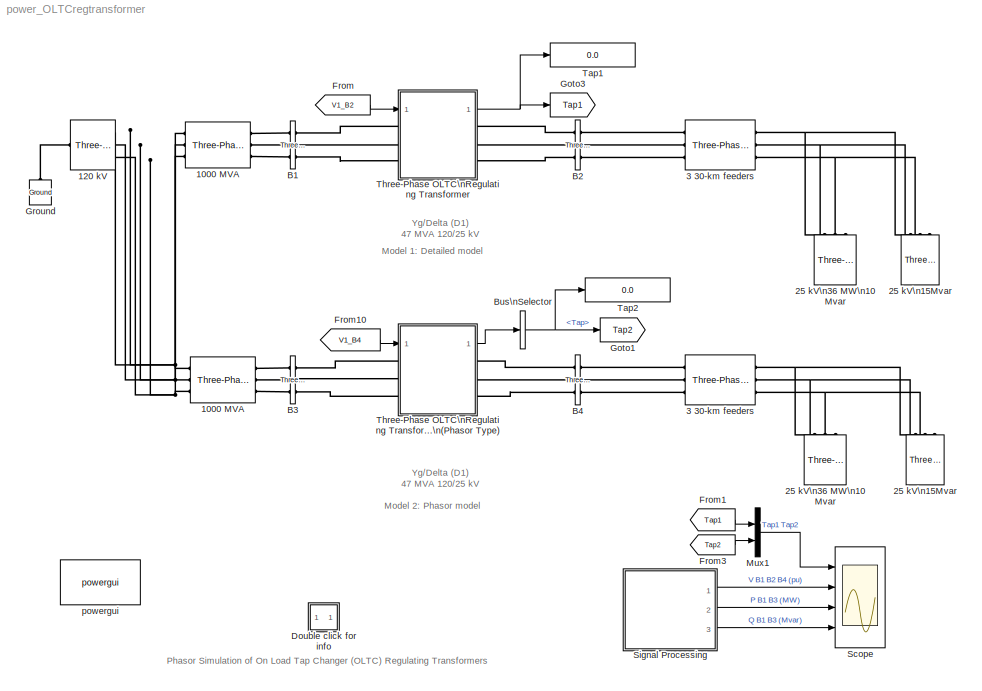
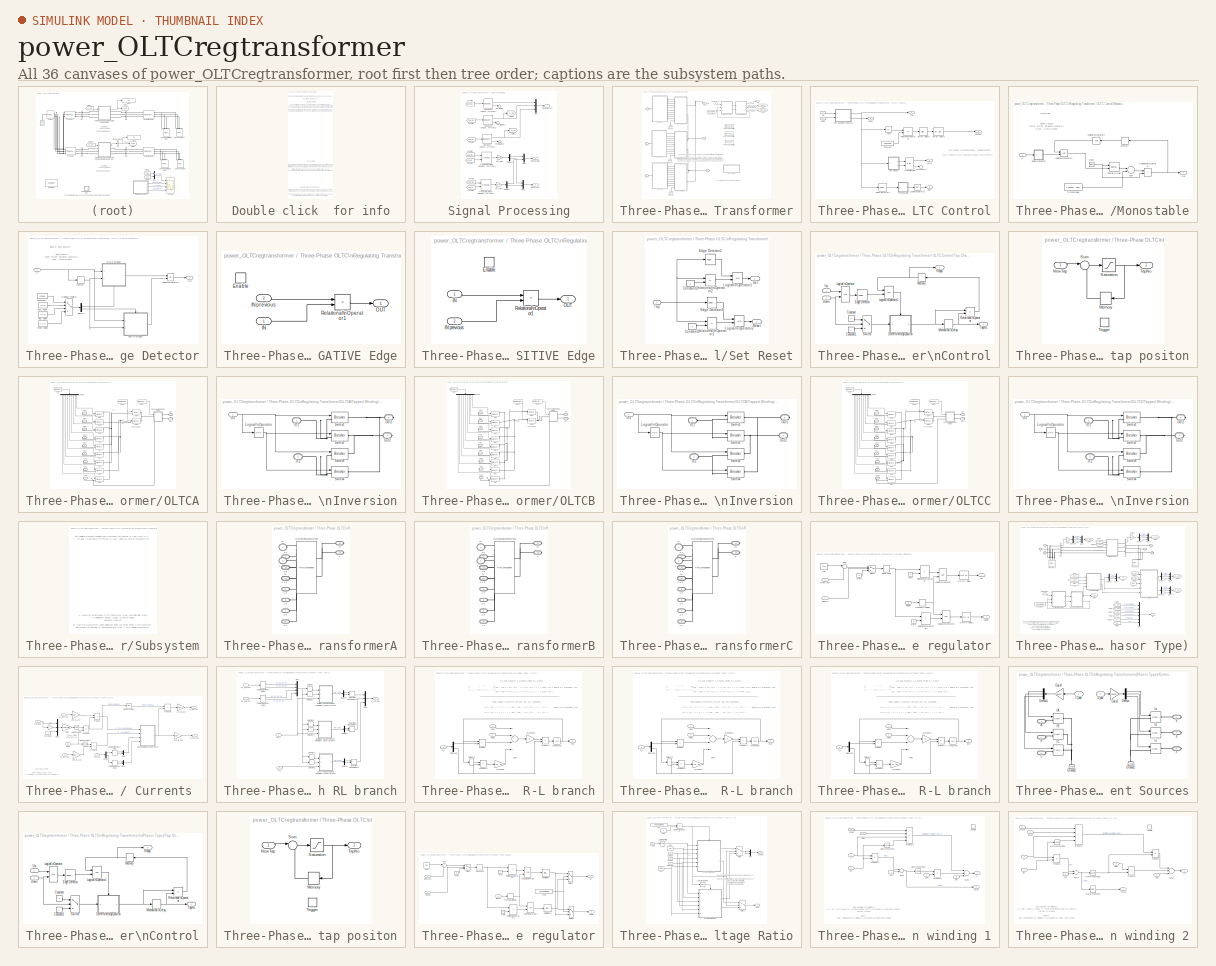
[diagram: thumbnail index - all 36 canvases of the model, root first then tree order]
MODEL power_OLTCregtransformer
KIND model
BLOCK [Reference] 1000 MVA  REF=powerlib/Elements/Three-Phase\nSeries RLC Branch
  AttributesFormatString = \\n
  Capacitance = inf
  Inductance = 120e3^2/1000e6/(2*pi*60)
  LConnTagsString = A|B|C
  LeftPortType = p1
  Measurements = None
  PhysicalDomain = powersysdomain
  Ports = [0, 0, 0, 0, 0, 3, 3]
  RConnTagsString = A|B|C
  Resistance = 120e3^2/1000e6/10
  RightPortType = p1
  SourceBlock = powerlib/Elements/Three-Phase\nSeries RLC Branch
  SourceType = Three-Phase Series RLC Branch
  SubClassName = unknown
BLOCK [Reference] 1000 MVA   REF=powerlib/Elements/Three-Phase\nSeries RLC Branch
  AttributesFormatString = \\n
  Capacitance = inf
  Inductance = 120e3^2/1000e6/(2*pi*60)
  LConnTagsString = A|B|C
  LeftPortType = p1
  Measurements = None
  PhysicalDomain = powersysdomain
  Ports = [0, 0, 0, 0, 0, 3, 3]
  RConnTagsString = A|B|C
  Resistance = 120e3^2/1000e6/10
  RightPortType = p1
  SourceBlock = powerlib/Elements/Three-Phase\nSeries RLC Branch
  SourceType = Three-Phase Series RLC Branch
  SubClassName = unknown
BLOCK [Reference] 120 kV  REF=powerlib/Electrical\nSources/Three-Phase\nProgrammable\nVoltage Source
  Amplitudes = [ 1 0.95   1.1 ]
  HarmonicA = [3 0.2 -25 0]
  HarmonicB = [2 0.15 35 2]
  HarmonicGeneration = off
  Ports = [0, 0, 0, 0, 0, 1, 3]
  PositiveSequence = [120e3 0 60]
  ShowPortLabels = on
  SourceBlock = powerlib/Electrical\nSources/Three-Phase\nProgrammable\nVoltage Source
  SourceType = Three-Phase Programmable Voltage Source
  TimeValues = [0  10 50]
  Timing = [0.05  3]
  VariationEntity = Amplitude
  VariationFrequency = 2
  VariationMagnitude = 0.3
  VariationPhaseA = off
  VariationRate = 10
  VariationStep = 0.2
  VariationTiming = [5  20]
  VariationType = Table of time-amplitude pairs
BLOCK [Reference] 25 kV\n15Mvar  REF=powerlib/Elements/Three-Phase\nParallel RLC Load
  ActivePower = 0
  AttributesFormatString = \\n
  CapacitivePower = 15e6
  Configuration = Y (grounded)
  InductivePower = 0
  LConnTagsString = A|B|C
  LeftPortType = p1
  Measurements = None
  NominalFrequency = 60
  NominalVoltage = 25e3
  PhysicalDomain = powersysdomain
  Ports = [0, 0, 0, 0, 0, 3]
  RightPortType = p1
  SourceBlock = powerlib/Elements/Three-Phase\nParallel RLC Load
  SourceType = Three-Phase Parallel RLC Load
  SubClassName = unknown
BLOCK [Reference] 25 kV\n15Mvar   REF=powerlib/Elements/Three-Phase\nParallel RLC Load
  ActivePower = 0
  AttributesFormatString = \\n
  CapacitivePower = 15e6
  Configuration = Y (grounded)
  InductivePower = 0
  LConnTagsString = A|B|C
  LeftPortType = p1
  Measurements = None
  NominalFrequency = 60
  NominalVoltage = 25e3
  PhysicalDomain = powersysdomain
  Ports = [0, 0, 0, 0, 0, 3]
  RightPortType = p1
  SourceBlock = powerlib/Elements/Three-Phase\nParallel RLC Load
  SourceType = Three-Phase Parallel RLC Load
  SubClassName = unknown
BLOCK [Reference] 25 kV\n36 MW\n10 Mvar  REF=powerlib/Elements/Three-Phase\nParallel RLC Load
  ActivePower = 36e6
  AttributesFormatString = \\n
  CapacitivePower = 0
  Configuration = Y (grounded)
  InductivePower = 10e6
  LConnTagsString = A|B|C
  LeftPortType = p1
  Measurements = None
  NominalFrequency = 60
  NominalVoltage = 25e3
  PhysicalDomain = powersysdomain
  Ports = [0, 0, 0, 0, 0, 3]
  RightPortType = p1
  SourceBlock = powerlib/Elements/Three-Phase\nParallel RLC Load
  SourceType = Three-Phase Parallel RLC Load
  SubClassName = unknown
BLOCK [Reference] 25 kV\n36 MW\n10 Mvar   REF=powerlib/Elements/Three-Phase\nParallel RLC Load
  ActivePower = 36e6
  AttributesFormatString = \\n
  CapacitivePower = 0
  Configuration = Y (grounded)
  InductivePower = 10e6
  LConnTagsString = A|B|C
  LeftPortType = p1
  Measurements = None
  NominalFrequency = 60
  NominalVoltage = 25e3
  PhysicalDomain = powersysdomain
  Ports = [0, 0, 0, 0, 0, 3]
  RightPortType = p1
  SourceBlock = powerlib/Elements/Three-Phase\nParallel RLC Load
  SourceType = Three-Phase Parallel RLC Load
  SubClassName = unknown
BLOCK [Reference] 3  30-km feeders  REF=powerlib/Elements/Three-Phase\nMutual Inductance\nZ1-Z0
  AttributesFormatString = \\n
  LConnTagsString = a|b|c
  LeftPortType = p1
  PhysicalDomain = powersysdomain
  Ports = [0, 0, 0, 0, 0, 3, 3]
  PositiveSequence = [ 0.1153 , 1.048e-3 ]*30/3
  RConnTagsString = A|B|C
  RightPortType = p1
  SourceBlock = powerlib/Elements/Three-Phase\nMutual Inductance\nZ1-Z0
  SourceType = Three-Phase Mutual Inductance Z1-Z0
  SubClassName = unknown
  ZeroSequence = [ 0.4130 , 3.321e-3 ]*30/3
BLOCK [Reference] 3  30-km feeders   REF=powerlib/Elements/Three-Phase\nMutual Inductance\nZ1-Z0
  AttributesFormatString = \\n
  LConnTagsString = a|b|c
  LeftPortType = p1
  PhysicalDomain = powersysdomain
  Ports = [0, 0, 0, 0, 0, 3, 3]
  PositiveSequence = [ 0.1153 , 1.048e-3 ]*30/3
  RConnTagsString = A|B|C
  RightPortType = p1
  SourceBlock = powerlib/Elements/Three-Phase\nMutual Inductance\nZ1-Z0
  SourceType = Three-Phase Mutual Inductance Z1-Z0
  SubClassName = unknown
  ZeroSequence = [ 0.4130 , 3.321e-3 ]*30/3
BLOCK [Reference] B1  REF=powerlib/Measurements/Three-Phase\nV-I Measurement
  CurrentMeasurement = yes
  Ipu = on
  LabelI = IabcB1
  LabelV = VabcB1
  OutputType = Complex
  PSBequivalent = 0
  Pbase = 47e6
  PhasorSimulation = on
  Ports = [0, 0, 0, 0, 0, 3, 3]
  SetLabelI = on
  SetLabelV = on
  ShowPortLabels = on
  SourceBlock = powerlib/Measurements/Three-Phase\nV-I Measurement
  SourceType = Three-Phase VI Measurement
  Vbase = 120e3
  VoltageMeasurement = phase-to-ground
  Vpu = on
BLOCK [Reference] B2  REF=powerlib/Measurements/Three-Phase\nV-I Measurement
  CurrentMeasurement = no
  Ipu = on
  LabelI = IabcB2
  LabelV = VabcB2
  OutputType = Complex
  PSBequivalent = 0
  Pbase = 47e6
  PhasorSimulation = on
  Ports = [0, 0, 0, 0, 0, 3, 3]
  SetLabelI = on
  SetLabelV = on
  ShowPortLabels = on
  SourceBlock = powerlib/Measurements/Three-Phase\nV-I Measurement
  SourceType = Three-Phase VI Measurement
  Vbase = 25e3
  VoltageMeasurement = phase-to-ground
  Vpu = on
BLOCK [Reference] B3  REF=powerlib/Measurements/Three-Phase\nV-I Measurement
  CurrentMeasurement = yes
  Ipu = on
  LabelI = IabcB3
  LabelV = VabcB3
  OutputType = Complex
  PSBequivalent = 0
  Pbase = 47e6
  PhasorSimulation = on
  Ports = [0, 0, 0, 0, 0, 3, 3]
  SetLabelI = on
  SetLabelV = on
  ShowPortLabels = on
  SourceBlock = powerlib/Measurements/Three-Phase\nV-I Measurement
  SourceType = Three-Phase VI Measurement
  Vbase = 120e3
  VoltageMeasurement = phase-to-ground
  Vpu = on
BLOCK [Reference] B4  REF=powerlib/Measurements/Three-Phase\nV-I Measurement
  CurrentMeasurement = no
  Ipu = on
  LabelI = IabcB4
  LabelV = VabcB4
  OutputType = Complex
  PSBequivalent = 0
  Pbase = 47e6
  PhasorSimulation = on
  Ports = [0, 0, 0, 0, 0, 3, 3]
  SetLabelI = on
  SetLabelV = on
  ShowPortLabels = on
  SourceBlock = powerlib/Measurements/Three-Phase\nV-I Measurement
  SourceType = Three-Phase VI Measurement
  Vbase = 25e3
  VoltageMeasurement = phase-to-ground
  Vpu = on
BLOCK [BusSelector] Bus\nSelector
  DialogController = Simulink.DDGSource_Bus
  OutputSignals = Tap
  Ports = [1, 1]
BLOCK [SubSystem] Double click  for info
  MaskDisplay = disp('?')
  MaskIconFrame = on
  MaskIconOpaque = on
  MaskIconRotate = none
  MaskIconUnits = autoscale
  MinAlgLoopOccurrences = off
  Ports = []
  RTWSystemCode = Auto
  TreatAsAtomicUnit = off
BLOCK [From] From
  CloseFcn = tagdialog Close
  DialogController = Simulink.DDGSource
  GotoTag = V1_B2
BLOCK [From] From1
  CloseFcn = tagdialog Close
  DialogController = Simulink.DDGSource
  GotoTag = Tap1
BLOCK [From] From10
  CloseFcn = tagdialog Close
  DialogController = Simulink.DDGSource
  GotoTag = V1_B4
BLOCK [From] From3
  CloseFcn = tagdialog Close
  DialogController = Simulink.DDGSource
  GotoTag = Tap2
BLOCK [Goto] Goto1
  DialogController = Simulink.DDGSource
  GotoTag = Tap2
  TagVisibility = global
BLOCK [Goto] Goto3
  DialogController = Simulink.DDGSource
  GotoTag = Tap1
  TagVisibility = global
BLOCK [Reference] Ground  REF=powerlib/Elements/Ground
  LConnTagsString = a
  LeftPortType = p1
  PhysicalDomain = powersysdomain
  Ports = [0, 0, 0, 0, 0, 1]
  RightPortType = p1
  SourceBlock = powerlib/Elements/Ground
  SourceType = Ground
  SubClassName = unknown
BLOCK [Mux] Mux1
  DisplayOption = bar
  Inputs = 2
  Ports = [2, 1]
BLOCK [Scope] Scope
  DataFormat = StructureWithTime
  LimitDataPoints = off
  NumInputPorts = 4
  Ports = [4]
  SaveName = ScopeData1
  TimeRange = 120
  YMax = 5~1.25~50~15
  YMin = -8~0.9~30~5
  ZoomMode = yonly
BLOCK [SubSystem] Signal Processing
  MinAlgLoopOccurrences = off
  Ports = [0, 3]
  RTWSystemCode = Auto
  TreatAsAtomicUnit = off
BLOCK [Reference] Signal Processing/3-Phase\nActive & Reactive Power\n(Phasor Type)1  REF=powerlib_extras/Phasor\nLibrary/3-Phase\nActive & Reactive Power\n(Phasor Type)
  Ports = [2, 1]
  ShowPortLabels = on
  SourceBlock = powerlib_extras/Phasor\nLibrary/3-Phase\nActive & Reactive Power\n(Phasor Type)
  SourceType = 3-Phase Active & Reactive Power (Phasor Type)
BLOCK [Reference] Signal Processing/3-Phase\nActive & Reactive Power\n(Phasor Type)2  REF=powerlib_extras/Phasor\nLibrary/3-Phase\nActive & Reactive Power\n(Phasor Type)
  Ports = [2, 1]
  ShowPortLabels = on
  SourceBlock = powerlib_extras/Phasor\nLibrary/3-Phase\nActive & Reactive Power\n(Phasor Type)
  SourceType = 3-Phase Active & Reactive Power (Phasor Type)
BLOCK [Demux] Signal Processing/Demux1
  Outputs = 2
  Ports = [1, 2]
BLOCK [Demux] Signal Processing/Demux2
  Outputs = 2
  Ports = [1, 2]
BLOCK [From] Signal Processing/From1
  CloseFcn = tagdialog Close
  DialogController = Simulink.DDGSource
  GotoTag = IabcB1
BLOCK [From] Signal Processing/From3
  CloseFcn = tagdialog Close
  DialogController = Simulink.DDGSource
  GotoTag = IabcB3
BLOCK [From] Signal Processing/From4
  CloseFcn = tagdialog Close
  DialogController = Simulink.DDGSource
  GotoTag = VabcB3
BLOCK [From] Signal Processing/From5
  CloseFcn = tagdialog Close
  DialogController = Simulink.DDGSource
  GotoTag = VabcB1
BLOCK [From] Signal Processing/From6
  CloseFcn = tagdialog Close
  DialogController = Simulink.DDGSource
  GotoTag = VabcB1
BLOCK [From] Signal Processing/From8
  CloseFcn = tagdialog Close
  DialogController = Simulink.DDGSource
  GotoTag = VabcB2
BLOCK [From] Signal Processing/From9
  CloseFcn = tagdialog Close
  DialogController = Simulink.DDGSource
  GotoTag = VabcB4
BLOCK [Goto] Signal Processing/Goto1
  DialogController = Simulink.DDGSource
  GotoTag = V1_B4
  TagVisibility = global
BLOCK [Goto] Signal Processing/Goto3
  DialogController = Simulink.DDGSource
  GotoTag = V1_B2
  TagVisibility = global
BLOCK [Mux] Signal Processing/Mux
  DisplayOption = bar
  Inputs = 3
  Ports = [3, 1]
BLOCK [Mux] Signal Processing/Mux1
  DisplayOption = bar
  Inputs = 2
  Ports = [2, 1]
BLOCK [Mux] Signal Processing/Mux2
  DisplayOption = bar
  Inputs = 2
  Ports = [2, 1]
BLOCK [Outport] Signal Processing/P B1 B3 (MW)
  BusOutputAsStruct = off
  IconDisplay = Port number
  Port = 2
BLOCK [Outport] Signal Processing/Q B1 B3 (MW)
  BusOutputAsStruct = off
  IconDisplay = Port number
  Port = 3
BLOCK [Reference] Signal Processing/Sequence Analyzer\n(Phasor Type)1  REF=powerlib_extras/Phasor\nLibrary/Sequence Analyzer\n(Phasor Type)
  Ports = [1, 2]
  ShowPortLabels = on
  SourceBlock = powerlib_extras/Phasor\nLibrary/Sequence Analyzer\n(Phasor Type)
  SourceType = Sequence Analyzer (Phasor Type)
  seq = Positive
BLOCK [Reference] Signal Processing/Sequence Analyzer\n(Phasor Type)3  REF=powerlib_extras/Phasor\nLibrary/Sequence Analyzer\n(Phasor Type)
  Ports = [1, 2]
  ShowPortLabels = on
  SourceBlock = powerlib_extras/Phasor\nLibrary/Sequence Analyzer\n(Phasor Type)
  SourceType = Sequence Analyzer (Phasor Type)
  seq = Positive
BLOCK [Reference] Signal Processing/Sequence Analyzer\n(Phasor Type)4  REF=powerlib_extras/Phasor\nLibrary/Sequence Analyzer\n(Phasor Type)
  Ports = [1, 2]
  ShowPortLabels = on
  SourceBlock = powerlib_extras/Phasor\nLibrary/Sequence Analyzer\n(Phasor Type)
  SourceType = Sequence Analyzer (Phasor Type)
  seq = Positive
BLOCK [Terminator] Signal Processing/Terminator
BLOCK [Terminator] Signal Processing/Terminator1
BLOCK [Terminator] Signal Processing/Terminator2
BLOCK [Outport] Signal Processing/V B1 B2 B4 (pu)
  BusOutputAsStruct = off
  IconDisplay = Port number
BLOCK [Gain] Signal Processing/pu-> MVA
  Gain = 2/3*47
BLOCK [Gain] Signal Processing/pu-> MVA 
  Gain = 2/3*47
BLOCK [Display] Tap1
  Decimation = 1
  Ports = [1]
  SampleTime = 0.1
BLOCK [Display] Tap2
  Decimation = 1
  Ports = [1]
  SampleTime = 0.1
BLOCK [SubSystem] Three-Phase OLTC\nRegulating Transformer
  MaskCallbackString = tempMaskVis=get_param(gcb,'MaskVisibilities');\nif strcmp(get_param(gcb,'ShowParam'),'Transformer parameters')\n	tempMaskVis{2}='on'; tempMaskVis{3}='on'; tempMaskVis{4}='on'; tempMaskVis{5}='on';\n	tempMaskVis{6}='on'; tempMaskVis{7}='on'; \n	if strcmp(get_param(gcb,'SetSaturation'),'on')\n		tempMaskVis{8}='on';\n	end\n	tempMaskVis{9}='off'; tempMaskVis{10}='off'; tempMaskVis{11}='off'; tempMaskV...<+1205ch>
  MaskDescription = The On Load Tap Changer (OLTC) uses a tapped winding (regulation winding) in series with winding 1(Yg) to vary the U1 voltage in 16 DeltaU steps from tap -8 to +8 (17 positions). Tap position 0 corresponds to nominal voltage ratio. \nThe transformer voltage ratio U2/U1 (in pu) is given by: \n                U2/U1= 1/ (1+TapPosition*DeltaU) \nwhere:\n              -8<=TapPosition<=+8\nIn automatic ...<+151ch>
  MaskEnableString = on,on,on,on,on,on,on,on,on,on,on,on,on,on,on
  MaskIconFrame = on
  MaskIconOpaque = on
  MaskIconRotate = none
  MaskIconUnits = autoscale
  MaskInitialization = % Below is the only line to modify\n% to change number of taps\nNumberOfTaps=8; \n\nif ~(abs(InitialTap)<=NumberOfTaps & (ceil(InitialTap)-InitialTap)==0)\n   h=errordlg(sprintf('The initial tap number must be an integer comprised between % d and %d',-NumberOfTaps,NumberOfTaps),'Parameter error');\n   uiwait(h);\nend\n\nPnom=NominalParameters(1)/3;\nFnom=NominalParameters(2);\nVnom1= Winding1(1)/s...<+711ch>
  MaskPromptString = Show|Nominal power and frequency [ Pnom(VA)  Fnom(Hz)]:|Winding 1 (Yg) [V2(Vrms Ph Ph) R1(pu)  X1(pu) ]:|Winding 2 (D1) [V2(Vrms Ph Ph) R2(pu)  X2(pu) ]|Tapped regulation winding [Rt(pu)  Xt(pu)]|Magnetization branch  [Rm(pu) Lm(pu)]|Simulate saturation:|Saturation characteristic [i1 phi; i2 phi2; ....] (pu)|Voltage step DeltaU per tap (pu)|Initial tap position|Tap selection time (s) (typical 3-10...<+145ch>
  MaskStyleString = popup(Transformer parameters|OLTC and Voltage Regulator parameters),edit,edit,edit,edit,edit,checkbox,edit,edit,edit,edit,edit,edit,popup(off|on),edit
  MaskTabNameString = ,,,,,,,,,,,,,,
  MaskToolTipString = on,on,on,on,on,on,on,on,on,on,on,on,on,on,on
  MaskTunableValueString = on,on,on,on,on,on,on,on,on,on,on,on,on,on,on
  MaskType = Three-Phase OLTC Regulating Transformer Yg/(D1) -17 positions
  MaskValueString = Transformer parameters|[47e6  60]|[120e3  0.003 0.09]|[25e3   0.003 0.09]|[ 0.003 0.09]|[300 300]|off|[0 0; 0.002 1.0; 0.006 1.12; 0.009 1.15; 0.015 1.17; 0.03 1.19; 0.05 1.20; 0.08 1.21; 1.0 1.302]|0.01875|-4|4|0.06|5|on|[1.04  0.0375  1.0 ]
  MaskVarAliasString = ,,,,,,,,,,,,,,
  MaskVariables = ShowParam=@1;NominalParameters=@2;Winding1=@3;Winding2=@4;RXpuTaps=@5;RXmag=@6;SetSaturation=@7;SaturationCurrentFlux=@8;DeltaU=@9;InitialTap=@10;TapSelectionTime=@11;TransferTime=@12;Rtransfer=@13;RegulatorOn=@14;Regulator=@15;
  MaskVisibilityString = on,on,on,on,on,on,on,off,off,off,off,off,off,off,off
  MinAlgLoopOccurrences = off
  Ports = [1, 1, 0, 0, 0, 3, 3]
  RTWSystemCode = Auto
  TreatAsAtomicUnit = off
BLOCK [SubSystem] Three-Phase OLTC\nRegulating Transformer/ OLTC Control
  MaskCallbackString = |||
  MaskEnableString = on,on,on,on
  MaskIconFrame = on
  MaskIconOpaque = on
  MaskIconRotate = none
  MaskIconUnits = autoscale
  MaskInitialization = TapVector=0:NumberOfTaps;\nInitialStates=zeros(1,NumberOfTaps+1);\n
  MaskPromptString = Number of taps:|Operating time of the tap selector (typical 3-10 s):|Operating time of the transfer switch (typical 40-60 ms):  |Initial tap:
  MaskStyleString = edit,edit,edit,edit
  MaskTabNameString = ,,,
  MaskToolTipString = on,on,on,on
  MaskTunableValueString = on,on,on,on
  MaskValueString = NumberOfTaps|TapSelectionTime|TransferTime|InitialTap
  MaskVarAliasString = ,,,
  MaskVariables = NumberOfTaps=@1;TapSelectionTime=@2;TransferTime=@3;InitialTap=@4;
  MaskVisibilityString = on,on,on,on
  MinAlgLoopOccurrences = off
  Ports = [2, 5]
  RTWSystemCode = Auto
  TreatAsAtomicUnit = off
BLOCK [Abs] Three-Phase OLTC\nRegulating Transformer/ OLTC Control/Abs1
BLOCK [Constant] Three-Phase OLTC\nRegulating Transformer/ OLTC Control/Constant
  Value = TapVector
BLOCK [Inport] Three-Phase OLTC\nRegulating Transformer/ OLTC Control/Down
  IconDisplay = Port number
  LatchInput = off
  Port = 2
BLOCK [Reference] Three-Phase OLTC\nRegulating Transformer/ OLTC Control/Edge Detector2  REF=powerlib_extras/Control \nBlocks/Edge Detector
  Ports = [1, 1]
  ShowPortLabels = off
  SourceBlock = powerlib_extras/Control \nBlocks/Edge Detector
  SourceType = Edge Detector
  ic = 0
  model = Either
BLOCK [Logic] Three-Phase OLTC\nRegulating Transformer/ OLTC Control/Logical\nOperator
  AllPortsSameDT = off
  Operator = NOT
  Ports = [1, 1]
BLOCK [SubSystem] Three-Phase OLTC\nRegulating Transformer/ OLTC Control/Monostable
  MaskCallbackString = ||
  MaskDescription = After being triggered  by the specified edge (Rising, Falling or Either), this block outputs a pulse (TRUE signal) for the time specified by parameter \"Pulse duration\".\nIf the specified edge is detected while the output is TRUE, the monostable is not retriggered\n\nThe input value (0/1) at time preceeding t = 0 is specified by the parameter \"input at t = -eps.
  MaskDisplay = plot(0,0,100,100,[100 75 75 25 25 0],[25 25 50 50 25 25]-0,X1,Y1,X2,Y2,X3,Y3,X4,Y4);\ntext(45,37,'T');\ntext(15,15,str);\n\n
  MaskEnableString = on,on,on
  MaskIconFrame = on
  MaskIconOpaque = on
  MaskIconRotate = none
  MaskIconUnits = autoscale
  MaskInitialization = str=sprintf('%g %c',t_mono,'s');\nif (EdgeDetect ~=3)\n    x1 = (EdgeDetect -1)*10;\n    x2 = (EdgeDetect -1)*30;\n	X1=[15-8,25,25,35+8]+0; Y1=[65+x2,65+x2,95-x2,95-x2];\n	X2=[15,25,35]+0;   Y2=[75+x1,85-x1,75+x1];\n	X3=[];X4=[];Y3=[];Y4=[];	\nelse\n	x1 = 10;\n	x2 = 30;\n	X1=[15,25,25,35]-14;  Y1=[65,65,95,95];\n	X2=[15,25,35]-14;    Y2=[75,85,75];\n	X3=[15,25,25,35]+14; Y3=[65+x2,65+x2,95-x2,95-x...<+54ch>
  MaskPromptString = Edge detection|Pulse duration (s):|Input at t = -eps:
  MaskStyleString = popup(Rising|Falling|Either),edit,edit
  MaskTabNameString = ,,
  MaskToolTipString = on,on,on
  MaskTunableValueString = on,on,on
  MaskType = Monostable Flip-Flop
  MaskValueString = Rising|TransferTime|1
  MaskVarAliasString = ,,
  MaskVariables = EdgeDetect=@1;t_mono=@2;ic=@3;
  MaskVisibilityString = on,on,on
  MinAlgLoopOccurrences = off
  Ports = [1, 1]
  RTWSystemCode = Auto
  ShowPortLabels = off
  TreatAsAtomicUnit = off
BLOCK [Clock] Three-Phase OLTC\nRegulating Transformer/ OLTC Control/Monostable/Clock
  Decimation = 10
BLOCK [SubSystem] Three-Phase OLTC\nRegulating Transformer/ OLTC Control/Monostable/Edge Detector
  MaskCallbackString = |
  MaskDescription = This block compares its present input to its previous input.\n\nIf the input  is a logic signal (TRUE (1) or FALSE (0), the output is a one-step boolean signal TRUE  when  the specified edge (Rising, Falling or Either)  is detected.\n\nThis block can also be used to detect the slope polarity of a continuous signal. For example, if the specified edge is  \"Rising\", the output is TRUE as long as th...<+132ch>
  MaskDisplay = plot(0,0,100,100, X1,Y1,X2,Y2,X3,Y3,X4,Y4);\n
  MaskEnableString = on,on
  MaskIconFrame = on
  MaskIconOpaque = on
  MaskIconRotate = none
  MaskIconUnits = autoscale
  MaskInitialization = if model~=3,\n	x1 = (model -1)*20;\n    x2 = (model -1)*60;\n	X1=[5,20,20,35]+25; Y1=[20+x2,20+x2,80-x2,80-x2];\n	X2=[5,20,35]+25;    Y2=[40+x1,60-x1,40+x1];\n	X3=[];X4=[];Y3=[];Y4=[];\nelse\n	x1 = 20;\n	x2 = 60;\n	X1=[5,20,20,35]+8; Y1=[20,20,80,80];\n	X2=[5,20,35]+8;    Y2=[40,60,40];\n	X3=[5,20,20,35]+53; Y3=[20+x2,20+x2,80-x2,80-x2];\n	X4=[5,20,35]+53;    Y4=[40+x1,60-x1,40+x1];\nend
  MaskPromptString = Edge:|Input at t = -eps:
  MaskStyleString = edit,edit
  MaskTabNameString = ,
  MaskToolTipString = on,on
  MaskTunableValueString = on,on
  MaskType = Edge Detector
  MaskValueString = EdgeDetect|ic
  MaskVarAliasString = ,
  MaskVariables = model=@1;ic=@2;
  MaskVisibilityString = on,on
  MinAlgLoopOccurrences = off
  Ports = [1, 1]
  RTWSystemCode = Auto
  ShowPortLabels = off
  TreatAsAtomicUnit = off
BLOCK [Constant] Three-Phase OLTC\nRegulating Transformer/ OLTC Control/Monostable/Edge Detector/Constant1
  Value = model
BLOCK [Demux] Three-Phase OLTC\nRegulating Transformer/ OLTC Control/Monostable/Edge Detector/Demux
  Outputs = 2
  Ports = [1, 2]
BLOCK [Inport] Three-Phase OLTC\nRegulating Transformer/ OLTC Control/Monostable/Edge Detector/In
  IconDisplay = Port number
  LatchInput = off
  Port = 1
BLOCK [Logic] Three-Phase OLTC\nRegulating Transformer/ OLTC Control/Monostable/Edge Detector/Logical\nOperator1
  Operator = OR
  Ports = [2, 1]
BLOCK [Memory] Three-Phase OLTC\nRegulating Transformer/ OLTC Control/Monostable/Edge Detector/Memory
  InheritSampleTime = on
  X0 = ic
BLOCK [MultiPortSwitch] Three-Phase OLTC\nRegulating Transformer/ OLTC Control/Monostable/Edge Detector/Multiport\nSwitch
  InputSameDT = off
  Inputs = 3
  Ports = [4, 1]
BLOCK [SubSystem] Three-Phase OLTC\nRegulating Transformer/ OLTC Control/Monostable/Edge Detector/NEGATIVE Edge
  AncestorBlock = extra_sc/Edge/POSITIVE Edge
  MinAlgLoopOccurrences = off
  Ports = [2, 1, 1]
  RTWSystemCode = Auto
  TreatAsAtomicUnit = on
BLOCK [EnablePort] Three-Phase OLTC\nRegulating Transformer/ OLTC Control/Monostable/Edge Detector/NEGATIVE Edge/Enable
  Ports = []
BLOCK [Inport] Three-Phase OLTC\nRegulating Transformer/ OLTC Control/Monostable/Edge Detector/NEGATIVE Edge/IN
  IconDisplay = Port number
  LatchInput = off
  Port = 1
BLOCK [Inport] Three-Phase OLTC\nRegulating Transformer/ OLTC Control/Monostable/Edge Detector/NEGATIVE Edge/IN previous
  IconDisplay = Port number
  LatchInput = off
  Port = 2
BLOCK [Outport] Three-Phase OLTC\nRegulating Transformer/ OLTC Control/Monostable/Edge Detector/NEGATIVE Edge/OUT
  BusOutputAsStruct = off
  IconDisplay = Port number
BLOCK [RelationalOperator] Three-Phase OLTC\nRegulating Transformer/ OLTC Control/Monostable/Edge Detector/NEGATIVE Edge/Relational\nOperator1
  Operator = >
BLOCK [Outport] Three-Phase OLTC\nRegulating Transformer/ OLTC Control/Monostable/Edge Detector/Out
  BusOutputAsStruct = off
  IconDisplay = Port number
BLOCK [SubSystem] Three-Phase OLTC\nRegulating Transformer/ OLTC Control/Monostable/Edge Detector/POSITIVE Edge
  AncestorBlock = extra_sc/Delay_discrete/OFF Delay
  MinAlgLoopOccurrences = off
  Ports = [2, 1, 1]
  RTWSystemCode = Auto
  TreatAsAtomicUnit = on
BLOCK [EnablePort] Three-Phase OLTC\nRegulating Transformer/ OLTC Control/Monostable/Edge Detector/POSITIVE Edge/Enable
  Ports = []
BLOCK [Inport] Three-Phase OLTC\nRegulating Transformer/ OLTC Control/Monostable/Edge Detector/POSITIVE Edge/IN
  IconDisplay = Port number
  LatchInput = off
  Port = 1
BLOCK [Inport] Three-Phase OLTC\nRegulating Transformer/ OLTC Control/Monostable/Edge Detector/POSITIVE Edge/IN previous
  IconDisplay = Port number
  LatchInput = off
  Port = 2
BLOCK [Outport] Three-Phase OLTC\nRegulating Transformer/ OLTC Control/Monostable/Edge Detector/POSITIVE Edge/OUT
  BusOutputAsStruct = off
  IconDisplay = Port number
BLOCK [RelationalOperator] Three-Phase OLTC\nRegulating Transformer/ OLTC Control/Monostable/Edge Detector/POSITIVE Edge/Relational\nOperator1
  Operator = >
BLOCK [Constant] Three-Phase OLTC\nRegulating Transformer/ OLTC Control/Monostable/Edge Detector/either edge
  Value = [1 1]
BLOCK [Constant] Three-Phase OLTC\nRegulating Transformer/ OLTC Control/Monostable/Edge Detector/neg. edge
  Value = [0 1]
BLOCK [Constant] Three-Phase OLTC\nRegulating Transformer/ OLTC Control/Monostable/Edge Detector/pos. edge
  Value = [1 0]
BLOCK [Inport] Three-Phase OLTC\nRegulating Transformer/ OLTC Control/Monostable/In
  IconDisplay = Port number
  LatchInput = off
  Port = 1
BLOCK [Logic] Three-Phase OLTC\nRegulating Transformer/ OLTC Control/Monostable/Logical\nOperator1
  Ports = [2, 1]
BLOCK [Logic] Three-Phase OLTC\nRegulating Transformer/ OLTC Control/Monostable/Logical\nOperator2
  Inputs = 1
  Operator = NOT
  Ports = [1, 1]
BLOCK [Memory] Three-Phase OLTC\nRegulating Transformer/ OLTC Control/Monostable/Memory
  InheritSampleTime = on
BLOCK [Outport] Three-Phase OLTC\nRegulating Transformer/ OLTC Control/Monostable/Out
  BusOutputAsStruct = off
  IconDisplay = Port number
BLOCK [RelationalOperator] Three-Phase OLTC\nRegulating Transformer/ OLTC Control/Monostable/Relational\nOperator
  Operator = >
BLOCK [Reference] Three-Phase OLTC\nRegulating Transformer/ OLTC Control/Monostable/Sample & Hold  REF=powerlib_extras/Control \nBlocks/Sample & Hold
  Ports = [2, 1]
  ShowPortLabels = on
  SourceBlock = powerlib_extras/Control \nBlocks/Sample & Hold
  SourceType = Sample & Hold
  ic = -1e6
BLOCK [Sum] Three-Phase OLTC\nRegulating Transformer/ OLTC Control/Monostable/Sum
  Ports = [2, 1]
BLOCK [Constant] Three-Phase OLTC\nRegulating Transformer/ OLTC Control/Monostable/T_monostable
  Value = t_mono - eps
BLOCK [Reference] Three-Phase OLTC\nRegulating Transformer/ OLTC Control/On//Off Delay2  REF=powerlib_extras/Control \nBlocks/On//Off Delay
  Ports = [1, 1]
  ShowPortLabels = off
  SourceBlock = powerlib_extras/Control \nBlocks/On//Off Delay
  SourceType = On/Off Delay
  delay = TransferTime/3
  ic = 1
  type_delay = On delay
BLOCK [Reference] Three-Phase OLTC\nRegulating Transformer/ OLTC Control/On//Off Delay3  REF=powerlib_extras/Control \nBlocks/On//Off Delay
  Ports = [1, 1]
  ShowPortLabels = off
  SourceBlock = powerlib_extras/Control \nBlocks/On//Off Delay
  SourceType = On/Off Delay
  delay = 2*TransferTime/3
  ic = InitialStates
  type_delay = Off delay
BLOCK [Outport] Three-Phase OLTC\nRegulating Transformer/ OLTC Control/Ready
  BusOutputAsStruct = off
  IconDisplay = Port number
  Port = 5
BLOCK [RelationalOperator] Three-Phase OLTC\nRegulating Transformer/ OLTC Control/Relational\nOperator
  InputSameDT = off
  Operator = ==
BLOCK [Reference] Three-Phase OLTC\nRegulating Transformer/ OLTC Control/S-R\nFlip-Flop  REF=simulink_extras/Flip Flops/S-R\nFlip-Flop
  Ports = [2, 2]
  ShowPortLabels = on
  SourceBlock = simulink_extras/Flip Flops/S-R\nFlip-Flop
  SourceType = SRFlipFlop
  initial_condition = InitialTap>=0
BLOCK [SubSystem] Three-Phase OLTC\nRegulating Transformer/ OLTC Control/Set Reset
  MinAlgLoopOccurrences = off
  Ports = [1, 2]
  RTWSystemCode = Auto
  TreatAsAtomicUnit = off
BLOCK [Constant] Three-Phase OLTC\nRegulating Transformer/ OLTC Control/Set Reset/Constant1
  Value = -1
BLOCK [Constant] Three-Phase OLTC\nRegulating Transformer/ OLTC Control/Set Reset/Constant2
BLOCK [Reference] Three-Phase OLTC\nRegulating Transformer/ OLTC Control/Set Reset/Edge Detector1  REF=powerlib_extras/Control \nBlocks/Edge Detector
  Ports = [1, 1]
  ShowPortLabels = off
  SourceBlock = powerlib_extras/Control \nBlocks/Edge Detector
  SourceType = Edge Detector
  ic = 0
  model = Rising
BLOCK [Reference] Three-Phase OLTC\nRegulating Transformer/ OLTC Control/Set Reset/Edge Detector2  REF=powerlib_extras/Control \nBlocks/Edge Detector
  Ports = [1, 1]
  ShowPortLabels = off
  SourceBlock = powerlib_extras/Control \nBlocks/Edge Detector
  SourceType = Edge Detector
  ic = 0
  model = Falling
BLOCK [Logic] Three-Phase OLTC\nRegulating Transformer/ OLTC Control/Set Reset/Logical\nOperator1
  AllPortsSameDT = off
  Ports = [2, 1]
BLOCK [Logic] Three-Phase OLTC\nRegulating Transformer/ OLTC Control/Set Reset/Logical\nOperator2
  AllPortsSameDT = off
  Ports = [2, 1]
BLOCK [RelationalOperator] Three-Phase OLTC\nRegulating Transformer/ OLTC Control/Set Reset/Relational\nOperator1
  InputSameDT = off
  Operator = ==
BLOCK [RelationalOperator] Three-Phase OLTC\nRegulating Transformer/ OLTC Control/Set Reset/Relational\nOperator2
  InputSameDT = off
  Operator = ==
BLOCK [Outport] Three-Phase OLTC\nRegulating Transformer/ OLTC Control/Set Reset/Reset
  BusOutputAsStruct = off
  IconDisplay = Port number
  Port = 2
BLOCK [Outport] Three-Phase OLTC\nRegulating Transformer/ OLTC Control/Set Reset/Set
  BusOutputAsStruct = off
  IconDisplay = Port number
BLOCK [Inport] Three-Phase OLTC\nRegulating Transformer/ OLTC Control/Set Reset/Tap
  IconDisplay = Port number
  LatchInput = off
  Port = 1
BLOCK [Outport] Three-Phase OLTC\nRegulating Transformer/ OLTC Control/SwInv
  BusOutputAsStruct = off
  IconDisplay = Port number
  Port = 4
BLOCK [Outport] Three-Phase OLTC\nRegulating Transformer/ OLTC Control/SwSelect
  BusOutputAsStruct = off
  IconDisplay = Port number
  Port = 2
BLOCK [Outport] Three-Phase OLTC\nRegulating Transformer/ OLTC Control/SwTr
  BusOutputAsStruct = off
  IconDisplay = Port number
  Port = 3
BLOCK [Outport] Three-Phase OLTC\nRegulating Transformer/ OLTC Control/Tap
  BusOutputAsStruct = off
  IconDisplay = Port number
BLOCK [SubSystem] Three-Phase OLTC\nRegulating Transformer/ OLTC Control/Tap Changer\nControl
  MaskCallbackString = ||
  MaskEnableString = on,on,on
  MaskIconFrame = on
  MaskIconOpaque = on
  MaskIconRotate = none
  MaskIconUnits = autoscale
  MaskInitialization = if MecDelay<=0,\n	MecDelay=1/60;\nend
  MaskPromptString = Minimum and maximum tap number [ Min  Max ] :|Initial tap position|Mechanical delay time
  MaskStyleString = edit,edit,edit
  MaskTabNameString = ,,
  MaskToolTipString = on,on,on
  MaskTunableValueString = on,on,on
  MaskType = Tap Changer Control
  MaskValueString = [-NumberOfTaps  +NumberOfTaps]|InitialTap|TapSelectionTime
  MaskVarAliasString = ,,
  MaskVariables = MinMaxTap=@1;InitialPosition=@2;MecDelay=@3;
  MaskVisibilityString = on,on,on
  MinAlgLoopOccurrences = off
  Ports = [2, 2]
  RTWSystemCode = Auto
  TreatAsAtomicUnit = off
BLOCK [Constant] Three-Phase OLTC\nRegulating Transformer/ OLTC Control/Tap Changer\nControl/Constant
  Value = -1
BLOCK [Constant] Three-Phase OLTC\nRegulating Transformer/ OLTC Control/Tap Changer\nControl/Constant1
BLOCK [SubSystem] Three-Phase OLTC\nRegulating Transformer/ OLTC Control/Tap Changer\nControl/Determine\ntap positon
  MinAlgLoopOccurrences = off
  Ports = [1, 1, 0, 1]
  RTWSystemCode = Auto
  TreatAsAtomicUnit = off
BLOCK [Memory] Three-Phase OLTC\nRegulating Transformer/ OLTC Control/Tap Changer\nControl/Determine\ntap positon/Memory
  InheritSampleTime = on
  X0 = InitialPosition
BLOCK [Inport] Three-Phase OLTC\nRegulating Transformer/ OLTC Control/Tap Changer\nControl/Determine\ntap positon/NewTap
  IconDisplay = Port number
  LatchInput = off
  Port = 1
BLOCK [Saturate] Three-Phase OLTC\nRegulating Transformer/ OLTC Control/Tap Changer\nControl/Determine\ntap positon/Saturation
  LowerLimit = MinMaxTap(1)
  UpperLimit = MinMaxTap(2)
BLOCK [Sum] Three-Phase OLTC\nRegulating Transformer/ OLTC Control/Tap Changer\nControl/Determine\ntap positon/Sum
  IconShape = round
  InputSameDT = off
  Inputs = |++
  OutDataTypeMode = Inherit via internal rule
  Ports = [2, 1]
BLOCK [Outport] Three-Phase OLTC\nRegulating Transformer/ OLTC Control/Tap Changer\nControl/Determine\ntap positon/TapNo
  BusOutputAsStruct = off
  IconDisplay = Port number
  InitialOutput = InitialPosition
BLOCK [TriggerPort] Three-Phase OLTC\nRegulating Transformer/ OLTC Control/Tap Changer\nControl/Determine\ntap positon/Trigger
  Ports = []
BLOCK [Inport] Three-Phase OLTC\nRegulating Transformer/ OLTC Control/Tap Changer\nControl/Down
  IconDisplay = Port number
  LatchInput = off
  Port = 2
BLOCK [Reference] Three-Phase OLTC\nRegulating Transformer/ OLTC Control/Tap Changer\nControl/Edge Detector  REF=powerlib_extras/Control \nBlocks/Edge Detector
  Ports = [1, 1]
  ShowPortLabels = off
  SourceBlock = powerlib_extras/Control \nBlocks/Edge Detector
  SourceType = Edge Detector
  ic = 0
  model = Rising
BLOCK [Logic] Three-Phase OLTC\nRegulating Transformer/ OLTC Control/Tap Changer\nControl/Logical\nOperator
  AllPortsSameDT = off
  Operator = OR
  Ports = [2, 1]
BLOCK [Logic] Three-Phase OLTC\nRegulating Transformer/ OLTC Control/Tap Changer\nControl/Logical\nOperator1
  AllPortsSameDT = off
  Ports = [2, 1]
BLOCK [TransportDelay] Three-Phase OLTC\nRegulating Transformer/ OLTC Control/Tap Changer\nControl/Mechanical\nDelay
  DelayTime = MecDelay
  InitialInput = InitialPosition
BLOCK [Memory] Three-Phase OLTC\nRegulating Transformer/ OLTC Control/Tap Changer\nControl/Memory
  InheritSampleTime = on
  X0 = 1
BLOCK [Outport] Three-Phase OLTC\nRegulating Transformer/ OLTC Control/Tap Changer\nControl/Ready
  BusOutputAsStruct = off
  IconDisplay = Port number
  Port = 2
BLOCK [RelationalOperator] Three-Phase OLTC\nRegulating Transformer/ OLTC Control/Tap Changer\nControl/Relational\nOperator
  InputSameDT = off
  LogicDataType = float('double')
  LogicOutDataTypeMode = Specify via dialog
  Operator = ==
BLOCK [Switch] Three-Phase OLTC\nRegulating Transformer/ OLTC Control/Tap Changer\nControl/Switch
  InputSameDT = off
  Threshold = 0.5
BLOCK [Outport] Three-Phase OLTC\nRegulating Transformer/ OLTC Control/Tap Changer\nControl/TapNo
  BusOutputAsStruct = off
  IconDisplay = Port number
BLOCK [Inport] Three-Phase OLTC\nRegulating Transformer/ OLTC Control/Tap Changer\nControl/Up
  IconDisplay = Port number
  LatchInput = off
  Port = 1
BLOCK [Terminator] Three-Phase OLTC\nRegulating Transformer/ OLTC Control/Terminator1
BLOCK [Inport] Three-Phase OLTC\nRegulating Transformer/ OLTC Control/Up
  IconDisplay = Port number
  LatchInput = off
  Port = 1
BLOCK [PMIOPort] Three-Phase OLTC\nRegulating Transformer/A
  Port = 1
  Side = Left
  Tag = PMCPort
BLOCK [PMIOPort] Three-Phase OLTC\nRegulating Transformer/B
  Port = 2
  Side = Left
  Tag = PMCPort
BLOCK [PMIOPort] Three-Phase OLTC\nRegulating Transformer/C
  Port = 3
  Side = Left
  Tag = PMCPort
BLOCK [Constant] Three-Phase OLTC\nRegulating Transformer/Constant
  Value = RegulatorOn
BLOCK [Goto] Three-Phase OLTC\nRegulating Transformer/Goto
  DialogController = Simulink.DDGSource
  GotoTag = SwSelect
  TagVisibility = scoped
BLOCK [GotoTagVisibility] Three-Phase OLTC\nRegulating Transformer/Goto Tag\nVisibility
  GotoTag = SwSelect
BLOCK [GotoTagVisibility] Three-Phase OLTC\nRegulating Transformer/Goto Tag\nVisibility1
  GotoTag = SwTransfer
BLOCK [GotoTagVisibility] Three-Phase OLTC\nRegulating Transformer/Goto Tag\nVisibility2
  GotoTag = SwInversion
BLOCK [Goto] Three-Phase OLTC\nRegulating Transformer/Goto1
  DialogController = Simulink.DDGSource
  GotoTag = SwTransfer
  TagVisibility = scoped
BLOCK [Goto] Three-Phase OLTC\nRegulating Transformer/Goto3
  DialogController = Simulink.DDGSource
  GotoTag = SwInversion
  TagVisibility = scoped
BLOCK [Reference] Three-Phase OLTC\nRegulating Transformer/Ground  REF=powerlib/Elements/Ground
  LConnTagsString = a
  LeftPortType = p1
  PhysicalDomain = powersysdomain
  Ports = [0, 0, 0, 0, 0, 1]
  RightPortType = p1
  SourceBlock = powerlib/Elements/Ground
  SourceType = Ground
  SubClassName = unknown
BLOCK [Reference] Three-Phase OLTC\nRegulating Transformer/Ground1  REF=powerlib/Elements/Ground
  LConnTagsString = a
  LeftPortType = p1
  PhysicalDomain = powersysdomain
  Ports = [0, 0, 0, 0, 0, 1]
  RightPortType = p1
  SourceBlock = powerlib/Elements/Ground
  SourceType = Ground
  SubClassName = unknown
BLOCK [Reference] Three-Phase OLTC\nRegulating Transformer/Ground2  REF=powerlib/Elements/Ground
  LConnTagsString = a
  LeftPortType = p1
  PhysicalDomain = powersysdomain
  Ports = [0, 0, 0, 0, 0, 1]
  RightPortType = p1
  SourceBlock = powerlib/Elements/Ground
  SourceType = Ground
  SubClassName = unknown
BLOCK [SubSystem] Three-Phase OLTC\nRegulating Transformer/OLTCA
  MaskCallbackString = ||
  MaskEnableString = on,on,on
  MaskIconFrame = on
  MaskIconOpaque = on
  MaskIconRotate = none
  MaskIconUnits = autoscale
  MaskInitialization = TapVector=0:NumberOfTaps;\nInitialStates=zeros(1,NumberOfTaps+1);\nInitialStates(abs(InitialTap)+1)=1;\n\nInitialStateInv1=(InitialTap>=0);\nInitialStateInv2=(InitialTap<0);\nInitialStateInv3=InitialStateInv1;\nInitialStateInv4=InitialStateInv2;  <repeated x3 — deduplicated; at blocks: OLTCA, OLTCB, OLTCC>
  MaskPromptString = Nombre de prises:|Prise initiale:|Resistance de court circuit (ohms):
  MaskStyleString = edit,edit,edit
  MaskTabNameString = ,,
  MaskToolTipString = on,on,on
  MaskTunableValueString = on,on,on
  MaskValueString = NumberOfTaps|InitialTap|Rtransfer
  MaskVarAliasString = ,,
  MaskVariables = NumberOfTaps=@1;InitialTap=@2;Rtransfer=@3;
  MaskVisibilityString = on,on,on
  MinAlgLoopOccurrences = off
  Ports = [0, 0, 0, 0, 0, 1, 10]
  RTWSystemCode = Auto
  TreatAsAtomicUnit = off
BLOCK [Demux] Three-Phase OLTC\nRegulating Transformer/OLTCA/Demux
  Outputs = 9
  Ports = [1, 9]
BLOCK [From] Three-Phase OLTC\nRegulating Transformer/OLTCA/From
  CloseFcn = tagdialog Close
  DialogController = Simulink.DDGSource
  GotoTag = SwSelect
BLOCK [From] Three-Phase OLTC\nRegulating Transformer/OLTCA/From1
  CloseFcn = tagdialog Close
  DialogController = Simulink.DDGSource
  GotoTag = SwTransfer
BLOCK [From] Three-Phase OLTC\nRegulating Transformer/OLTCA/From2
  CloseFcn = tagdialog Close
  DialogController = Simulink.DDGSource
  GotoTag = SwInversion
BLOCK [PMIOPort] Three-Phase OLTC\nRegulating Transformer/OLTCA/Out
  Port = 11
  Side = Left
BLOCK [Reference] Three-Phase OLTC\nRegulating Transformer/OLTCA/Sw0   REF=powerlib/Elements/Breaker
  BreakerResistance = 1e-4
  External = on
  InitialState = InitialStates(1)
  Measurements = None
  Ports = [1, 0, 0, 0, 0, 1, 1]
  ShowPortLabels = on
  SnubberCapacitance = inf
  SnubberResistance = 1e6
  SourceBlock = powerlib/Elements/Breaker
  SourceType = Breaker
  SwitchingTimes = [ 1/60  5/60 ]
BLOCK [Reference] Three-Phase OLTC\nRegulating Transformer/OLTCA/Sw1   REF=powerlib/Elements/Breaker
  BreakerResistance = 1e-4
  External = on
  InitialState = InitialStates(2)
  Measurements = None
  Ports = [1, 0, 0, 0, 0, 1, 1]
  ShowPortLabels = on
  SnubberCapacitance = inf
  SnubberResistance = 1e6
  SourceBlock = powerlib/Elements/Breaker
  SourceType = Breaker
  SwitchingTimes = [ 1/60  5/60 ]
BLOCK [Reference] Three-Phase OLTC\nRegulating Transformer/OLTCA/Sw2   REF=powerlib/Elements/Breaker
  BreakerResistance = 1e-4
  External = on
  InitialState = InitialStates(3)
  Measurements = None
  Ports = [1, 0, 0, 0, 0, 1, 1]
  ShowPortLabels = on
  SnubberCapacitance = inf
  SnubberResistance = 1e6
  SourceBlock = powerlib/Elements/Breaker
  SourceType = Breaker
  SwitchingTimes = [ 1/60  5/60 ]
BLOCK [Reference] Three-Phase OLTC\nRegulating Transformer/OLTCA/Sw3   REF=powerlib/Elements/Breaker
  BreakerResistance = 1e-4
  External = on
  InitialState = InitialStates(4)
  Measurements = None
  Ports = [1, 0, 0, 0, 0, 1, 1]
  ShowPortLabels = on
  SnubberCapacitance = inf
  SnubberResistance = 1e6
  SourceBlock = powerlib/Elements/Breaker
  SourceType = Breaker
  SwitchingTimes = [ 1/60  5/60 ]
BLOCK [Reference] Three-Phase OLTC\nRegulating Transformer/OLTCA/Sw4   REF=powerlib/Elements/Breaker
  BreakerResistance = 1e-4
  External = on
  InitialState = InitialStates(5)
  Measurements = None
  Ports = [1, 0, 0, 0, 0, 1, 1]
  ShowPortLabels = on
  SnubberCapacitance = inf
  SnubberResistance = 1e6
  SourceBlock = powerlib/Elements/Breaker
  SourceType = Breaker
  SwitchingTimes = [ 1/60  5/60 ]
BLOCK [Reference] Three-Phase OLTC\nRegulating Transformer/OLTCA/Sw5   REF=powerlib/Elements/Breaker
  BreakerResistance = 1e-4
  External = on
  InitialState = InitialStates(6)
  Measurements = None
  Ports = [1, 0, 0, 0, 0, 1, 1]
  ShowPortLabels = on
  SnubberCapacitance = inf
  SnubberResistance = 1e6
  SourceBlock = powerlib/Elements/Breaker
  SourceType = Breaker
  SwitchingTimes = [ 1/60  5/60 ]
BLOCK [Reference] Three-Phase OLTC\nRegulating Transformer/OLTCA/Sw6   REF=powerlib/Elements/Breaker
  BreakerResistance = 1e-4
  External = on
  InitialState = InitialStates(7)
  Measurements = None
  Ports = [1, 0, 0, 0, 0, 1, 1]
  ShowPortLabels = on
  SnubberCapacitance = inf
  SnubberResistance = 1e6
  SourceBlock = powerlib/Elements/Breaker
  SourceType = Breaker
  SwitchingTimes = [ 1/60  5/60 ]
BLOCK [Reference] Three-Phase OLTC\nRegulating Transformer/OLTCA/Sw7   REF=powerlib/Elements/Breaker
  BreakerResistance = 1e-4
  External = on
  InitialState = InitialStates(8)
  Measurements = None
  Ports = [1, 0, 0, 0, 0, 1, 1]
  ShowPortLabels = on
  SnubberCapacitance = inf
  SnubberResistance = 1e6
  SourceBlock = powerlib/Elements/Breaker
  SourceType = Breaker
  SwitchingTimes = [ 1/60  5/60 ]
BLOCK [Reference] Three-Phase OLTC\nRegulating Transformer/OLTCA/Sw8   REF=powerlib/Elements/Breaker
  BreakerResistance = 1e-4
  External = on
  InitialState = InitialStates(9)
  Measurements = None
  Ports = [1, 0, 0, 0, 0, 1, 1]
  ShowPortLabels = on
  SnubberCapacitance = inf
  SnubberResistance = 1e6
  SourceBlock = powerlib/Elements/Breaker
  SourceType = Breaker
  SwitchingTimes = [ 1/60  5/60 ]
BLOCK [Reference] Three-Phase OLTC\nRegulating Transformer/OLTCA/SwR1  REF=powerlib/Elements/Breaker
  BreakerResistance = 1e-4
  External = on
  InitialState = 1
  Measurements = None
  Ports = [1, 0, 0, 0, 0, 1, 1]
  ShowPortLabels = on
  SnubberCapacitance = inf
  SnubberResistance = Rtransfer
  SourceBlock = powerlib/Elements/Breaker
  SourceType = Breaker
  SwitchingTimes = [ 1/60  5/60 ]
BLOCK [Reference] Three-Phase OLTC\nRegulating Transformer/OLTCA/SwR2  REF=powerlib/Elements/Breaker
  BreakerResistance = 1e-4
  External = on
  InitialState = 1
  Measurements = None
  Ports = [1, 0, 0, 0, 0, 1, 1]
  ShowPortLabels = on
  SnubberCapacitance = inf
  SnubberResistance = Rtransfer
  SourceBlock = powerlib/Elements/Breaker
  SourceType = Breaker
  SwitchingTimes = [ 1/60  5/60 ]
BLOCK [PMIOPort] Three-Phase OLTC\nRegulating Transformer/OLTCA/Tap0
  Port = 9
  Side = Right
BLOCK [PMIOPort] Three-Phase OLTC\nRegulating Transformer/OLTCA/Tap1
  Port = 8
  Side = Right
BLOCK [PMIOPort] Three-Phase OLTC\nRegulating Transformer/OLTCA/Tap2
  Port = 7
  Side = Right
BLOCK [PMIOPort] Three-Phase OLTC\nRegulating Transformer/OLTCA/Tap3
  Port = 6
  Side = Right
BLOCK [PMIOPort] Three-Phase OLTC\nRegulating Transformer/OLTCA/Tap4
  Port = 5
  Side = Right
BLOCK [PMIOPort] Three-Phase OLTC\nRegulating Transformer/OLTCA/Tap5
  Port = 4
  Side = Right
BLOCK [PMIOPort] Three-Phase OLTC\nRegulating Transformer/OLTCA/Tap6
  Port = 3
  Side = Right
BLOCK [PMIOPort] Three-Phase OLTC\nRegulating Transformer/OLTCA/Tap7
  Port = 2
  Side = Right
BLOCK [PMIOPort] Three-Phase OLTC\nRegulating Transformer/OLTCA/Tap8
  Port = 1
  Side = Right
BLOCK [SubSystem] Three-Phase OLTC\nRegulating Transformer/OLTCA/Tapped Winding\nInversion
  MinAlgLoopOccurrences = off
  Ports = [1, 0, 0, 0, 0, 2, 2]
  RTWSystemCode = Auto
  TreatAsAtomicUnit = off
BLOCK [PMIOPort] Three-Phase OLTC\nRegulating Transformer/OLTCA/Tapped Winding\nInversion/In1
  Port = 1
  Side = Left
BLOCK [PMIOPort] Three-Phase OLTC\nRegulating Transformer/OLTCA/Tapped Winding\nInversion/In2
  Port = 2
  Side = Left
BLOCK [Inport] Three-Phase OLTC\nRegulating Transformer/OLTCA/Tapped Winding\nInversion/Inv
  IconDisplay = Port number
  LatchInput = off
  Port = 1
BLOCK [Logic] Three-Phase OLTC\nRegulating Transformer/OLTCA/Tapped Winding\nInversion/Logical\nOperator
  AllPortsSameDT = off
  Operator = NOT
  Ports = [1, 1]
BLOCK [PMIOPort] Three-Phase OLTC\nRegulating Transformer/OLTCA/Tapped Winding\nInversion/Out1
  Port = 3
  Side = Right
BLOCK [PMIOPort] Three-Phase OLTC\nRegulating Transformer/OLTCA/Tapped Winding\nInversion/Out2
  Port = 4
  Side = Right
BLOCK [Reference] Three-Phase OLTC\nRegulating Transformer/OLTCA/Tapped Winding\nInversion/SwInv1  REF=powerlib/Elements/Breaker
  BreakerResistance = 1e-4
  External = on
  InitialState = InitialStateInv1
  Measurements = None
  Ports = [1, 0, 0, 0, 0, 1, 1]
  ShowPortLabels = on
  SnubberCapacitance = inf
  SnubberResistance = 1e6
  SourceBlock = powerlib/Elements/Breaker
  SourceType = Breaker
  SwitchingTimes = [ 1/60  5/60 ]
BLOCK [Reference] Three-Phase OLTC\nRegulating Transformer/OLTCA/Tapped Winding\nInversion/SwInv2  REF=powerlib/Elements/Breaker
  BreakerResistance = 1e-4
  External = on
  InitialState = InitialStateInv2
  Measurements = None
  Ports = [1, 0, 0, 0, 0, 1, 1]
  ShowPortLabels = on
  SnubberCapacitance = inf
  SnubberResistance = 1e6
  SourceBlock = powerlib/Elements/Breaker
  SourceType = Breaker
  SwitchingTimes = [ 1/60  5/60 ]
BLOCK [Reference] Three-Phase OLTC\nRegulating Transformer/OLTCA/Tapped Winding\nInversion/SwInv3  REF=powerlib/Elements/Breaker
  BreakerResistance = 1e-4
  External = on
  InitialState = InitialStateInv3
  Measurements = None
  Ports = [1, 0, 0, 0, 0, 1, 1]
  ShowPortLabels = on
  SnubberCapacitance = inf
  SnubberResistance = 1e6
  SourceBlock = powerlib/Elements/Breaker
  SourceType = Breaker
  SwitchingTimes = [ 1/60  5/60 ]
BLOCK [Reference] Three-Phase OLTC\nRegulating Transformer/OLTCA/Tapped Winding\nInversion/SwInv4  REF=powerlib/Elements/Breaker
  BreakerResistance = 1e-4
  External = on
  InitialState = InitialStateInv4
  Measurements = None
  Ports = [1, 0, 0, 0, 0, 1, 1]
  ShowPortLabels = on
  SnubberCapacitance = inf
  SnubberResistance = 1e6
  SourceBlock = powerlib/Elements/Breaker
  SourceType = Breaker
  SwitchingTimes = [ 1/60  5/60 ]
BLOCK [PMIOPort] Three-Phase OLTC\nRegulating Transformer/OLTCA/W2+
  Port = 10
  Side = Right
BLOCK [SubSystem] Three-Phase OLTC\nRegulating Transformer/OLTCB
  MaskCallbackString = ||
  MaskEnableString = on,on,on
  MaskIconFrame = on
  MaskIconOpaque = on
  MaskIconRotate = none
  MaskIconUnits = autoscale
  MaskPromptString = Nombre de prises:|Prise initiale:|Resistance de court circuit (ohms):
  MaskStyleString = edit,edit,edit
  MaskTabNameString = ,,
  MaskToolTipString = on,on,on
  MaskTunableValueString = on,on,on
  MaskValueString = NumberOfTaps|InitialTap|Rtransfer
  MaskVarAliasString = ,,
  MaskVariables = NumberOfTaps=@1;InitialTap=@2;Rtransfer=@3;
  MaskVisibilityString = on,on,on
  MinAlgLoopOccurrences = off
  Ports = [0, 0, 0, 0, 0, 1, 10]
  RTWSystemCode = Auto
  TreatAsAtomicUnit = off
BLOCK [Demux] Three-Phase OLTC\nRegulating Transformer/OLTCB/Demux
  Outputs = 9
  Ports = [1, 9]
BLOCK [From] Three-Phase OLTC\nRegulating Transformer/OLTCB/From
  CloseFcn = tagdialog Close
  DialogController = Simulink.DDGSource
  GotoTag = SwSelect
BLOCK [From] Three-Phase OLTC\nRegulating Transformer/OLTCB/From1
  CloseFcn = tagdialog Close
  DialogController = Simulink.DDGSource
  GotoTag = SwTransfer
BLOCK [From] Three-Phase OLTC\nRegulating Transformer/OLTCB/From2
  CloseFcn = tagdialog Close
  DialogController = Simulink.DDGSource
  GotoTag = SwInversion
BLOCK [PMIOPort] Three-Phase OLTC\nRegulating Transformer/OLTCB/Out
  Port = 11
  Side = Left
BLOCK [Reference] Three-Phase OLTC\nRegulating Transformer/OLTCB/Sw0   REF=powerlib/Elements/Breaker
  BreakerResistance = 1e-4
  External = on
  InitialState = InitialStates(1)
  Measurements = None
  Ports = [1, 0, 0, 0, 0, 1, 1]
  ShowPortLabels = on
  SnubberCapacitance = inf
  SnubberResistance = 1e6
  SourceBlock = powerlib/Elements/Breaker
  SourceType = Breaker
  SwitchingTimes = [ 1/60  5/60 ]
BLOCK [Reference] Three-Phase OLTC\nRegulating Transformer/OLTCB/Sw1   REF=powerlib/Elements/Breaker
  BreakerResistance = 1e-4
  External = on
  InitialState = InitialStates(2)
  Measurements = None
  Ports = [1, 0, 0, 0, 0, 1, 1]
  ShowPortLabels = on
  SnubberCapacitance = inf
  SnubberResistance = 1e6
  SourceBlock = powerlib/Elements/Breaker
  SourceType = Breaker
  SwitchingTimes = [ 1/60  5/60 ]
BLOCK [Reference] Three-Phase OLTC\nRegulating Transformer/OLTCB/Sw2   REF=powerlib/Elements/Breaker
  BreakerResistance = 1e-4
  External = on
  InitialState = InitialStates(3)
  Measurements = None
  Ports = [1, 0, 0, 0, 0, 1, 1]
  ShowPortLabels = on
  SnubberCapacitance = inf
  SnubberResistance = 1e6
  SourceBlock = powerlib/Elements/Breaker
  SourceType = Breaker
  SwitchingTimes = [ 1/60  5/60 ]
BLOCK [Reference] Three-Phase OLTC\nRegulating Transformer/OLTCB/Sw3   REF=powerlib/Elements/Breaker
  BreakerResistance = 1e-4
  External = on
  InitialState = InitialStates(4)
  Measurements = None
  Ports = [1, 0, 0, 0, 0, 1, 1]
  ShowPortLabels = on
  SnubberCapacitance = inf
  SnubberResistance = 1e6
  SourceBlock = powerlib/Elements/Breaker
  SourceType = Breaker
  SwitchingTimes = [ 1/60  5/60 ]
BLOCK [Reference] Three-Phase OLTC\nRegulating Transformer/OLTCB/Sw4   REF=powerlib/Elements/Breaker
  BreakerResistance = 1e-4
  External = on
  InitialState = InitialStates(5)
  Measurements = None
  Ports = [1, 0, 0, 0, 0, 1, 1]
  ShowPortLabels = on
  SnubberCapacitance = inf
  SnubberResistance = 1e6
  SourceBlock = powerlib/Elements/Breaker
  SourceType = Breaker
  SwitchingTimes = [ 1/60  5/60 ]
BLOCK [Reference] Three-Phase OLTC\nRegulating Transformer/OLTCB/Sw5   REF=powerlib/Elements/Breaker
  BreakerResistance = 1e-4
  External = on
  InitialState = InitialStates(6)
  Measurements = None
  Ports = [1, 0, 0, 0, 0, 1, 1]
  ShowPortLabels = on
  SnubberCapacitance = inf
  SnubberResistance = 1e6
  SourceBlock = powerlib/Elements/Breaker
  SourceType = Breaker
  SwitchingTimes = [ 1/60  5/60 ]
BLOCK [Reference] Three-Phase OLTC\nRegulating Transformer/OLTCB/Sw6   REF=powerlib/Elements/Breaker
  BreakerResistance = 1e-4
  External = on
  InitialState = InitialStates(7)
  Measurements = None
  Ports = [1, 0, 0, 0, 0, 1, 1]
  ShowPortLabels = on
  SnubberCapacitance = inf
  SnubberResistance = 1e6
  SourceBlock = powerlib/Elements/Breaker
  SourceType = Breaker
  SwitchingTimes = [ 1/60  5/60 ]
BLOCK [Reference] Three-Phase OLTC\nRegulating Transformer/OLTCB/Sw7   REF=powerlib/Elements/Breaker
  BreakerResistance = 1e-4
  External = on
  InitialState = InitialStates(8)
  Measurements = None
  Ports = [1, 0, 0, 0, 0, 1, 1]
  ShowPortLabels = on
  SnubberCapacitance = inf
  SnubberResistance = 1e6
  SourceBlock = powerlib/Elements/Breaker
  SourceType = Breaker
  SwitchingTimes = [ 1/60  5/60 ]
BLOCK [Reference] Three-Phase OLTC\nRegulating Transformer/OLTCB/Sw8   REF=powerlib/Elements/Breaker
  BreakerResistance = 1e-4
  External = on
  InitialState = InitialStates(9)
  Measurements = None
  Ports = [1, 0, 0, 0, 0, 1, 1]
  ShowPortLabels = on
  SnubberCapacitance = inf
  SnubberResistance = 1e6
  SourceBlock = powerlib/Elements/Breaker
  SourceType = Breaker
  SwitchingTimes = [ 1/60  5/60 ]
BLOCK [Reference] Three-Phase OLTC\nRegulating Transformer/OLTCB/SwR1  REF=powerlib/Elements/Breaker
  BreakerResistance = 1e-4
  External = on
  InitialState = 1
  Measurements = None
  Ports = [1, 0, 0, 0, 0, 1, 1]
  ShowPortLabels = on
  SnubberCapacitance = inf
  SnubberResistance = Rtransfer
  SourceBlock = powerlib/Elements/Breaker
  SourceType = Breaker
  SwitchingTimes = [ 1/60  5/60 ]
BLOCK [Reference] Three-Phase OLTC\nRegulating Transformer/OLTCB/SwR2  REF=powerlib/Elements/Breaker
  BreakerResistance = 1e-4
  External = on
  InitialState = 1
  Measurements = None
  Ports = [1, 0, 0, 0, 0, 1, 1]
  ShowPortLabels = on
  SnubberCapacitance = inf
  SnubberResistance = Rtransfer
  SourceBlock = powerlib/Elements/Breaker
  SourceType = Breaker
  SwitchingTimes = [ 1/60  5/60 ]
BLOCK [PMIOPort] Three-Phase OLTC\nRegulating Transformer/OLTCB/Tap0
  Port = 9
  Side = Right
BLOCK [PMIOPort] Three-Phase OLTC\nRegulating Transformer/OLTCB/Tap1
  Port = 8
  Side = Right
BLOCK [PMIOPort] Three-Phase OLTC\nRegulating Transformer/OLTCB/Tap2
  Port = 7
  Side = Right
BLOCK [PMIOPort] Three-Phase OLTC\nRegulating Transformer/OLTCB/Tap3
  Port = 6
  Side = Right
BLOCK [PMIOPort] Three-Phase OLTC\nRegulating Transformer/OLTCB/Tap4
  Port = 5
  Side = Right
BLOCK [PMIOPort] Three-Phase OLTC\nRegulating Transformer/OLTCB/Tap5
  Port = 4
  Side = Right
BLOCK [PMIOPort] Three-Phase OLTC\nRegulating Transformer/OLTCB/Tap6
  Port = 3
  Side = Right
BLOCK [PMIOPort] Three-Phase OLTC\nRegulating Transformer/OLTCB/Tap7
  Port = 2
  Side = Right
BLOCK [PMIOPort] Three-Phase OLTC\nRegulating Transformer/OLTCB/Tap8
  Port = 1
  Side = Right
BLOCK [SubSystem] Three-Phase OLTC\nRegulating Transformer/OLTCB/Tapped Winding\nInversion
  MinAlgLoopOccurrences = off
  Ports = [1, 0, 0, 0, 0, 2, 2]
  RTWSystemCode = Auto
  TreatAsAtomicUnit = off
BLOCK [PMIOPort] Three-Phase OLTC\nRegulating Transformer/OLTCB/Tapped Winding\nInversion/In1
  Port = 1
  Side = Left
BLOCK [PMIOPort] Three-Phase OLTC\nRegulating Transformer/OLTCB/Tapped Winding\nInversion/In2
  Port = 2
  Side = Left
BLOCK [Inport] Three-Phase OLTC\nRegulating Transformer/OLTCB/Tapped Winding\nInversion/Inv
  IconDisplay = Port number
  LatchInput = off
  Port = 1
BLOCK [Logic] Three-Phase OLTC\nRegulating Transformer/OLTCB/Tapped Winding\nInversion/Logical\nOperator
  AllPortsSameDT = off
  Operator = NOT
  Ports = [1, 1]
BLOCK [PMIOPort] Three-Phase OLTC\nRegulating Transformer/OLTCB/Tapped Winding\nInversion/Out1
  Port = 3
  Side = Right
BLOCK [PMIOPort] Three-Phase OLTC\nRegulating Transformer/OLTCB/Tapped Winding\nInversion/Out2
  Port = 4
  Side = Right
BLOCK [Reference] Three-Phase OLTC\nRegulating Transformer/OLTCB/Tapped Winding\nInversion/SwInv1  REF=powerlib/Elements/Breaker
  BreakerResistance = 1e-4
  External = on
  InitialState = InitialStateInv1
  Measurements = None
  Ports = [1, 0, 0, 0, 0, 1, 1]
  ShowPortLabels = on
  SnubberCapacitance = inf
  SnubberResistance = 1e6
  SourceBlock = powerlib/Elements/Breaker
  SourceType = Breaker
  SwitchingTimes = [ 1/60  5/60 ]
BLOCK [Reference] Three-Phase OLTC\nRegulating Transformer/OLTCB/Tapped Winding\nInversion/SwInv2  REF=powerlib/Elements/Breaker
  BreakerResistance = 1e-4
  External = on
  InitialState = InitialStateInv2
  Measurements = None
  Ports = [1, 0, 0, 0, 0, 1, 1]
  ShowPortLabels = on
  SnubberCapacitance = inf
  SnubberResistance = 1e6
  SourceBlock = powerlib/Elements/Breaker
  SourceType = Breaker
  SwitchingTimes = [ 1/60  5/60 ]
BLOCK [Reference] Three-Phase OLTC\nRegulating Transformer/OLTCB/Tapped Winding\nInversion/SwInv3  REF=powerlib/Elements/Breaker
  BreakerResistance = 1e-4
  External = on
  InitialState = InitialStateInv3
  Measurements = None
  Ports = [1, 0, 0, 0, 0, 1, 1]
  ShowPortLabels = on
  SnubberCapacitance = inf
  SnubberResistance = 1e6
  SourceBlock = powerlib/Elements/Breaker
  SourceType = Breaker
  SwitchingTimes = [ 1/60  5/60 ]
BLOCK [Reference] Three-Phase OLTC\nRegulating Transformer/OLTCB/Tapped Winding\nInversion/SwInv4  REF=powerlib/Elements/Breaker
  BreakerResistance = 1e-4
  External = on
  InitialState = InitialStateInv4
  Measurements = None
  Ports = [1, 0, 0, 0, 0, 1, 1]
  ShowPortLabels = on
  SnubberCapacitance = inf
  SnubberResistance = 1e6
  SourceBlock = powerlib/Elements/Breaker
  SourceType = Breaker
  SwitchingTimes = [ 1/60  5/60 ]
BLOCK [PMIOPort] Three-Phase OLTC\nRegulating Transformer/OLTCB/W2+
  Port = 10
  Side = Right
BLOCK [SubSystem] Three-Phase OLTC\nRegulating Transformer/OLTCC
  MaskCallbackString = ||
  MaskEnableString = on,on,on
  MaskIconFrame = on
  MaskIconOpaque = on
  MaskIconRotate = none
  MaskIconUnits = autoscale
  MaskPromptString = Nombre de prises:|Prise initiale:|Resistance de court circuit (ohms):
  MaskStyleString = edit,edit,edit
  MaskTabNameString = ,,
  MaskToolTipString = on,on,on
  MaskTunableValueString = on,on,on
  MaskValueString = NumberOfTaps|InitialTap|Rtransfer
  MaskVarAliasString = ,,
  MaskVariables = NumberOfTaps=@1;InitialTap=@2;Rtransfer=@3;
  MaskVisibilityString = on,on,on
  MinAlgLoopOccurrences = off
  Ports = [0, 0, 0, 0, 0, 1, 10]
  RTWSystemCode = Auto
  TreatAsAtomicUnit = off
BLOCK [Demux] Three-Phase OLTC\nRegulating Transformer/OLTCC/Demux
  Outputs = 9
  Ports = [1, 9]
BLOCK [From] Three-Phase OLTC\nRegulating Transformer/OLTCC/From
  CloseFcn = tagdialog Close
  DialogController = Simulink.DDGSource
  GotoTag = SwSelect
BLOCK [From] Three-Phase OLTC\nRegulating Transformer/OLTCC/From1
  CloseFcn = tagdialog Close
  DialogController = Simulink.DDGSource
  GotoTag = SwTransfer
BLOCK [From] Three-Phase OLTC\nRegulating Transformer/OLTCC/From2
  CloseFcn = tagdialog Close
  DialogController = Simulink.DDGSource
  GotoTag = SwInversion
BLOCK [PMIOPort] Three-Phase OLTC\nRegulating Transformer/OLTCC/Out
  Port = 11
  Side = Left
BLOCK [Reference] Three-Phase OLTC\nRegulating Transformer/OLTCC/Sw0   REF=powerlib/Elements/Breaker
  BreakerResistance = 1e-4
  External = on
  InitialState = InitialStates(1)
  Measurements = None
  Ports = [1, 0, 0, 0, 0, 1, 1]
  ShowPortLabels = on
  SnubberCapacitance = inf
  SnubberResistance = 1e6
  SourceBlock = powerlib/Elements/Breaker
  SourceType = Breaker
  SwitchingTimes = [ 1/60  5/60 ]
BLOCK [Reference] Three-Phase OLTC\nRegulating Transformer/OLTCC/Sw1   REF=powerlib/Elements/Breaker
  BreakerResistance = 1e-4
  External = on
  InitialState = InitialStates(2)
  Measurements = None
  Ports = [1, 0, 0, 0, 0, 1, 1]
  ShowPortLabels = on
  SnubberCapacitance = inf
  SnubberResistance = 1e6
  SourceBlock = powerlib/Elements/Breaker
  SourceType = Breaker
  SwitchingTimes = [ 1/60  5/60 ]
BLOCK [Reference] Three-Phase OLTC\nRegulating Transformer/OLTCC/Sw2   REF=powerlib/Elements/Breaker
  BreakerResistance = 1e-4
  External = on
  InitialState = InitialStates(3)
  Measurements = None
  Ports = [1, 0, 0, 0, 0, 1, 1]
  ShowPortLabels = on
  SnubberCapacitance = inf
  SnubberResistance = 1e6
  SourceBlock = powerlib/Elements/Breaker
  SourceType = Breaker
  SwitchingTimes = [ 1/60  5/60 ]
BLOCK [Reference] Three-Phase OLTC\nRegulating Transformer/OLTCC/Sw3   REF=powerlib/Elements/Breaker
  BreakerResistance = 1e-4
  External = on
  InitialState = InitialStates(4)
  Measurements = None
  Ports = [1, 0, 0, 0, 0, 1, 1]
  ShowPortLabels = on
  SnubberCapacitance = inf
  SnubberResistance = 1e6
  SourceBlock = powerlib/Elements/Breaker
  SourceType = Breaker
  SwitchingTimes = [ 1/60  5/60 ]
BLOCK [Reference] Three-Phase OLTC\nRegulating Transformer/OLTCC/Sw4   REF=powerlib/Elements/Breaker
  BreakerResistance = 1e-4
  External = on
  InitialState = InitialStates(5)
  Measurements = None
  Ports = [1, 0, 0, 0, 0, 1, 1]
  ShowPortLabels = on
  SnubberCapacitance = inf
  SnubberResistance = 1e6
  SourceBlock = powerlib/Elements/Breaker
  SourceType = Breaker
  SwitchingTimes = [ 1/60  5/60 ]
BLOCK [Reference] Three-Phase OLTC\nRegulating Transformer/OLTCC/Sw5   REF=powerlib/Elements/Breaker
  BreakerResistance = 1e-4
  External = on
  InitialState = InitialStates(6)
  Measurements = None
  Ports = [1, 0, 0, 0, 0, 1, 1]
  ShowPortLabels = on
  SnubberCapacitance = inf
  SnubberResistance = 1e6
  SourceBlock = powerlib/Elements/Breaker
  SourceType = Breaker
  SwitchingTimes = [ 1/60  5/60 ]
BLOCK [Reference] Three-Phase OLTC\nRegulating Transformer/OLTCC/Sw6   REF=powerlib/Elements/Breaker
  BreakerResistance = 1e-4
  External = on
  InitialState = InitialStates(7)
  Measurements = None
  Ports = [1, 0, 0, 0, 0, 1, 1]
  ShowPortLabels = on
  SnubberCapacitance = inf
  SnubberResistance = 1e6
  SourceBlock = powerlib/Elements/Breaker
  SourceType = Breaker
  SwitchingTimes = [ 1/60  5/60 ]
BLOCK [Reference] Three-Phase OLTC\nRegulating Transformer/OLTCC/Sw7   REF=powerlib/Elements/Breaker
  BreakerResistance = 1e-4
  External = on
  InitialState = InitialStates(8)
  Measurements = None
  Ports = [1, 0, 0, 0, 0, 1, 1]
  ShowPortLabels = on
  SnubberCapacitance = inf
  SnubberResistance = 1e6
  SourceBlock = powerlib/Elements/Breaker
  SourceType = Breaker
  SwitchingTimes = [ 1/60  5/60 ]
BLOCK [Reference] Three-Phase OLTC\nRegulating Transformer/OLTCC/Sw8   REF=powerlib/Elements/Breaker
  BreakerResistance = 1e-4
  External = on
  InitialState = InitialStates(9)
  Measurements = None
  Ports = [1, 0, 0, 0, 0, 1, 1]
  ShowPortLabels = on
  SnubberCapacitance = inf
  SnubberResistance = 1e6
  SourceBlock = powerlib/Elements/Breaker
  SourceType = Breaker
  SwitchingTimes = [ 1/60  5/60 ]
BLOCK [Reference] Three-Phase OLTC\nRegulating Transformer/OLTCC/SwR1  REF=powerlib/Elements/Breaker
  BreakerResistance = 1e-4
  External = on
  InitialState = 1
  Measurements = None
  Ports = [1, 0, 0, 0, 0, 1, 1]
  ShowPortLabels = on
  SnubberCapacitance = inf
  SnubberResistance = Rtransfer
  SourceBlock = powerlib/Elements/Breaker
  SourceType = Breaker
  SwitchingTimes = [ 1/60  5/60 ]
BLOCK [Reference] Three-Phase OLTC\nRegulating Transformer/OLTCC/SwR2  REF=powerlib/Elements/Breaker
  BreakerResistance = 1e-4
  External = on
  InitialState = 1
  Measurements = None
  Ports = [1, 0, 0, 0, 0, 1, 1]
  ShowPortLabels = on
  SnubberCapacitance = inf
  SnubberResistance = Rtransfer
  SourceBlock = powerlib/Elements/Breaker
  SourceType = Breaker
  SwitchingTimes = [ 1/60  5/60 ]
BLOCK [PMIOPort] Three-Phase OLTC\nRegulating Transformer/OLTCC/Tap0
  Port = 9
  Side = Right
BLOCK [PMIOPort] Three-Phase OLTC\nRegulating Transformer/OLTCC/Tap1
  Port = 8
  Side = Right
BLOCK [PMIOPort] Three-Phase OLTC\nRegulating Transformer/OLTCC/Tap2
  Port = 7
  Side = Right
BLOCK [PMIOPort] Three-Phase OLTC\nRegulating Transformer/OLTCC/Tap3
  Port = 6
  Side = Right
BLOCK [PMIOPort] Three-Phase OLTC\nRegulating Transformer/OLTCC/Tap4
  Port = 5
  Side = Right
BLOCK [PMIOPort] Three-Phase OLTC\nRegulating Transformer/OLTCC/Tap5
  Port = 4
  Side = Right
BLOCK [PMIOPort] Three-Phase OLTC\nRegulating Transformer/OLTCC/Tap6
  Port = 3
  Side = Right
BLOCK [PMIOPort] Three-Phase OLTC\nRegulating Transformer/OLTCC/Tap7
  Port = 2
  Side = Right
BLOCK [PMIOPort] Three-Phase OLTC\nRegulating Transformer/OLTCC/Tap8
  Port = 1
  Side = Right
BLOCK [SubSystem] Three-Phase OLTC\nRegulating Transformer/OLTCC/Tapped Winding\nInversion
  MinAlgLoopOccurrences = off
  Ports = [1, 0, 0, 0, 0, 2, 2]
  RTWSystemCode = Auto
  TreatAsAtomicUnit = off
BLOCK [PMIOPort] Three-Phase OLTC\nRegulating Transformer/OLTCC/Tapped Winding\nInversion/In1
  Port = 1
  Side = Left
BLOCK [PMIOPort] Three-Phase OLTC\nRegulating Transformer/OLTCC/Tapped Winding\nInversion/In2
  Port = 2
  Side = Left
BLOCK [Inport] Three-Phase OLTC\nRegulating Transformer/OLTCC/Tapped Winding\nInversion/Inv
  IconDisplay = Port number
  LatchInput = off
  Port = 1
BLOCK [Logic] Three-Phase OLTC\nRegulating Transformer/OLTCC/Tapped Winding\nInversion/Logical\nOperator
  AllPortsSameDT = off
  Operator = NOT
  Ports = [1, 1]
BLOCK [PMIOPort] Three-Phase OLTC\nRegulating Transformer/OLTCC/Tapped Winding\nInversion/Out1
  Port = 3
  Side = Right
BLOCK [PMIOPort] Three-Phase OLTC\nRegulating Transformer/OLTCC/Tapped Winding\nInversion/Out2
  Port = 4
  Side = Right
BLOCK [Reference] Three-Phase OLTC\nRegulating Transformer/OLTCC/Tapped Winding\nInversion/SwInv1  REF=powerlib/Elements/Breaker
  BreakerResistance = 1e-4
  External = on
  InitialState = InitialStateInv1
  Measurements = None
  Ports = [1, 0, 0, 0, 0, 1, 1]
  ShowPortLabels = on
  SnubberCapacitance = inf
  SnubberResistance = 1e6
  SourceBlock = powerlib/Elements/Breaker
  SourceType = Breaker
  SwitchingTimes = [ 1/60  5/60 ]
BLOCK [Reference] Three-Phase OLTC\nRegulating Transformer/OLTCC/Tapped Winding\nInversion/SwInv2  REF=powerlib/Elements/Breaker
  BreakerResistance = 1e-4
  External = on
  InitialState = InitialStateInv2
  Measurements = None
  Ports = [1, 0, 0, 0, 0, 1, 1]
  ShowPortLabels = on
  SnubberCapacitance = inf
  SnubberResistance = 1e6
  SourceBlock = powerlib/Elements/Breaker
  SourceType = Breaker
  SwitchingTimes = [ 1/60  5/60 ]
BLOCK [Reference] Three-Phase OLTC\nRegulating Transformer/OLTCC/Tapped Winding\nInversion/SwInv3  REF=powerlib/Elements/Breaker
  BreakerResistance = 1e-4
  External = on
  InitialState = InitialStateInv3
  Measurements = None
  Ports = [1, 0, 0, 0, 0, 1, 1]
  ShowPortLabels = on
  SnubberCapacitance = inf
  SnubberResistance = 1e6
  SourceBlock = powerlib/Elements/Breaker
  SourceType = Breaker
  SwitchingTimes = [ 1/60  5/60 ]
BLOCK [Reference] Three-Phase OLTC\nRegulating Transformer/OLTCC/Tapped Winding\nInversion/SwInv4  REF=powerlib/Elements/Breaker
  BreakerResistance = 1e-4
  External = on
  InitialState = InitialStateInv4
  Measurements = None
  Ports = [1, 0, 0, 0, 0, 1, 1]
  ShowPortLabels = on
  SnubberCapacitance = inf
  SnubberResistance = 1e6
  SourceBlock = powerlib/Elements/Breaker
  SourceType = Breaker
  SwitchingTimes = [ 1/60  5/60 ]
BLOCK [PMIOPort] Three-Phase OLTC\nRegulating Transformer/OLTCC/W2+
  Port = 10
  Side = Right
BLOCK [SubSystem] Three-Phase OLTC\nRegulating Transformer/Subsystem
  MaskDisplay = disp('Procedure\\n to change\\n the number of taps')
  MaskIconFrame = on
  MaskIconOpaque = on
  MaskIconRotate = none
  MaskIconUnits = autoscale
  MinAlgLoopOccurrences = off
  Ports = []
  RTWSystemCode = Auto
  TreatAsAtomicUnit = off
BLOCK [Outport] Three-Phase OLTC\nRegulating Transformer/Tap
  BusOutputAsStruct = off
  IconDisplay = Port number
BLOCK [SubSystem] Three-Phase OLTC\nRegulating Transformer/TransformerA
  AncestorBlock = powerlib/Elements/Multi-Winding\nTransformer
  MaskCallbackString = powericon('NWindingsTransformerCback',gcb,0);|powericon('NWindingsTransformerCback',gcb,0);|powericon('NWindingsTransformerCback',gcb,1);|powericon('NWindingsTransformerCback',gcb,1);|||||powericon('NWindingsTransformerCback',gcb,0);||||powericon('NWindingsTransformerCback',gcb,0);||||  <repeated x3 — deduplicated; at blocks: TransformerA, TransformerB, TransformerC>
  MaskDescription = Implements a transformer with multiple windings. The number of windings can be \nspecified for the left side and for the right side of the block.  Taps can be added\nto the upper left winding or  to the upper right winding.  <repeated x3 — deduplicated; at blocks: TransformerA, TransformerB, TransformerC>
  MaskDisplay = plot(-300,-200,300,200,lx,ly,rx,ry)\n\nplot([-10,-10],[-180,180])\nplot([10,10],[-180,180])\n\ncolor('white')\nplot(hlx,hly,hrx,hry)\n\n
  MaskEnableString = on,on,on,on,on,on,on,on,on,on,on,on,on,on,on,on,on
  MaskHelp = web(psbhelp);
  MaskIconFrame = on
  MaskIconOpaque = off
  MaskIconRotate = port
  MaskIconUnits = autoscale
  MaskInitialization = block = gcb;\n[lx,ly,rx,ry,hlx,hly,hrx,hry] = powericon('NWindingsTransformerIcon');\n%\npowerbase = NominalPower(1);\nwbase = 2*pi*NominalPower(2);\nif TappedWindings>1\n	voltbase = NominalVoltages(1)/(NumberOfTaps+1);\nelse\n    voltbase = NominalVoltages(1);\nend\nBaseCurrent = (powerbase/voltbase)*sqrt(2);\nBaseFlux = (voltbase/wbase)*sqrt(2);\n%\nif SetSaturation\n	Saturation = [-Saturation(s...<+668ch>  <repeated x3 — deduplicated; at blocks: TransformerA, TransformerB, TransformerC>
  MaskPromptString = Number of windings on left side|Number of windings on right side|Tapped winding|----  Number of taps (equally spaced):|Nominal power and frequency [Pn(VA) fn(Hz)]:|Winding nominal voltages [U1 U2 ... Un] (Vrms): |Winding resistances [R1 R2 ... Rn] (pu): |Winding leakage inductances [L1 L2 ... Ln] (pu): |Saturable core|Magnetization resistance  Rm (pu)|Magnetization reactance Lm (pu)|Saturation cha...<+171ch>  <repeated x3 — deduplicated; at blocks: TransformerA, TransformerB, TransformerC>
  MaskSelfModifiable = on
  MaskStyleString = edit,edit,popup(no taps|taps on upper left winding|taps on upper right winding),edit,edit,edit,edit,edit,checkbox,edit,edit,edit,checkbox,edit,popup(None|Winding voltages|Winding currents|Flux and excitation current ( Imag + IRm )|Flux and magnetization current ( Imag )|All measurements (V I Flux)),edit,edit  <repeated x3 — deduplicated; at blocks: TransformerA, TransformerB, TransformerC>
  MaskTabNameString = ,,,,,,,,,,,,,,,,
  MaskToolTipString = on,on,on,on,on,on,on,on,on,on,on,on,on,on,on,on,on
  MaskTunableValueString = off,off,off,off,off,off,off,off,off,off,off,off,off,off,off,off,off
  MaskType = Multi-Winding Transformer
  MaskValueString = 2|1|taps on upper left winding|7|[Pnom  Fnom]|[ VnomTaps Vnom1  Vnom2 ]|[ RpuTaps Rpu1 Rpu2]|[ XpuTaps Xpu1  Xpu2 ]|off|Rm|Lm|[ 0,0 ; 0.0024,1.2 ; 1.0,1.52 ]|off|'hysteresis.mat'|None|0|1  <repeated x3 — deduplicated; at blocks: TransformerA, TransformerB, TransformerC>
  MaskVarAliasString = ,,,,,,,,,,,,,,,,
  MaskVariables = LeftWindings=@1;RightWindings=@2;TappedWindings=@3;NumberOfTaps=@4;NominalPower=@5;NominalVoltages=@6;WindingResistances=@7;WindingInductances=@8;SetSaturation=@9;Rm=@10;Lm=@11;Saturation=@12;Hysteresis=@13;DataFile=@14;Measurements=@15;InitialFlux=@16;TransfoNumber=@17;  <repeated x3 — deduplicated; at blocks: TransformerA, TransformerB, TransformerC>
  MaskVisibilityString = on,on,on,on,on,on,on,on,on,on,on,off,off,off,on,off,off
  MinAlgLoopOccurrences = off
  Ports = [0, 0, 0, 0, 0, 11, 2]
  RTWSystemCode = Auto
  TreatAsAtomicUnit = off
BLOCK [PMIOPort] Three-Phase OLTC\nRegulating Transformer/TransformerA/+3
  Port = 12
  Side = Right
BLOCK [PMIOPort] Three-Phase OLTC\nRegulating Transformer/TransformerA/1
  Port = 9
  Side = Left
BLOCK [PMIOPort] Three-Phase OLTC\nRegulating Transformer/TransformerA/1+
  Port = 1
  Side = Left
BLOCK [PMIOPort] Three-Phase OLTC\nRegulating Transformer/TransformerA/1.1
  Port = 2
  Side = Left
BLOCK [PMIOPort] Three-Phase OLTC\nRegulating Transformer/TransformerA/1.2
  Port = 3
  Side = Left
BLOCK [PMIOPort] Three-Phase OLTC\nRegulating Transformer/TransformerA/1.3
  Port = 4
  Side = Left
BLOCK [PMIOPort] Three-Phase OLTC\nRegulating Transformer/TransformerA/1.4
  Port = 5
  Side = Left
BLOCK [PMIOPort] Three-Phase OLTC\nRegulating Transformer/TransformerA/1.5
  Port = 6
  Side = Left
BLOCK [PMIOPort] Three-Phase OLTC\nRegulating Transformer/TransformerA/1.6
  Port = 7
  Side = Left
BLOCK [PMIOPort] Three-Phase OLTC\nRegulating Transformer/TransformerA/1.7
  Port = 8
  Side = Left
BLOCK [PMIOPort] Three-Phase OLTC\nRegulating Transformer/TransformerA/2
  Port = 11
  Side = Left
BLOCK [PMIOPort] Three-Phase OLTC\nRegulating Transformer/TransformerA/2+
  Port = 10
  Side = Left
BLOCK [PMIOPort] Three-Phase OLTC\nRegulating Transformer/TransformerA/3
  Port = 13
  Side = Right
BLOCK [PMComponent] Three-Phase OLTC\nRegulating Transformer/TransformerA/NWindingsTransformer
  LConnTagsString = 1|2|3|4|5|6|7|8|9|10|11
  LeftPortType = p1
  MaskIconFrame = on
  MaskIconOpaque = on
  MaskIconRotate = none
  MaskIconUnits = autoscale
  MaskType = InnerPowersysBlock
  PhysicalDomain = powersysdomain
  Ports = [0, 0, 0, 0, 0, 11, 2]
  RConnTagsString = 1|2
  RightPortType = p1
BLOCK [SubSystem] Three-Phase OLTC\nRegulating Transformer/TransformerB
  AncestorBlock = powerlib/Elements/Multi-Winding\nTransformer
  MaskDisplay = plot(-300,-200,300,200,lx,ly,rx,ry)\n\nplot([-10,-10],[-180,180])\nplot([10,10],[-180,180])\n\ncolor('white')\nplot(hlx,hly,hrx,hry)\n\n
  MaskEnableString = on,on,on,on,on,on,on,on,on,on,on,on,on,on,on,on,on
  MaskHelp = web(psbhelp);
  MaskIconFrame = on
  MaskIconOpaque = off
  MaskIconRotate = port
  MaskIconUnits = autoscale
  MaskSelfModifiable = on
  MaskTabNameString = ,,,,,,,,,,,,,,,,
  MaskToolTipString = on,on,on,on,on,on,on,on,on,on,on,on,on,on,on,on,on
  MaskTunableValueString = off,off,off,off,off,off,off,off,off,off,off,off,off,off,off,off,off
  MaskType = Multi-Winding Transformer
  MaskVarAliasString = ,,,,,,,,,,,,,,,,
  MaskVisibilityString = on,on,on,on,on,on,on,on,on,on,on,off,off,off,on,off,off
  MinAlgLoopOccurrences = off
  Ports = [0, 0, 0, 0, 0, 11, 2]
  RTWSystemCode = Auto
  TreatAsAtomicUnit = off
BLOCK [PMIOPort] Three-Phase OLTC\nRegulating Transformer/TransformerB/+3
  Port = 12
  Side = Right
BLOCK [PMIOPort] Three-Phase OLTC\nRegulating Transformer/TransformerB/1
  Port = 9
  Side = Left
BLOCK [PMIOPort] Three-Phase OLTC\nRegulating Transformer/TransformerB/1+
  Port = 1
  Side = Left
BLOCK [PMIOPort] Three-Phase OLTC\nRegulating Transformer/TransformerB/1.1
  Port = 2
  Side = Left
BLOCK [PMIOPort] Three-Phase OLTC\nRegulating Transformer/TransformerB/1.2
  Port = 3
  Side = Left
BLOCK [PMIOPort] Three-Phase OLTC\nRegulating Transformer/TransformerB/1.3
  Port = 4
  Side = Left
BLOCK [PMIOPort] Three-Phase OLTC\nRegulating Transformer/TransformerB/1.4
  Port = 5
  Side = Left
BLOCK [PMIOPort] Three-Phase OLTC\nRegulating Transformer/TransformerB/1.5
  Port = 6
  Side = Left
BLOCK [PMIOPort] Three-Phase OLTC\nRegulating Transformer/TransformerB/1.6
  Port = 7
  Side = Left
BLOCK [PMIOPort] Three-Phase OLTC\nRegulating Transformer/TransformerB/1.7
  Port = 8
  Side = Left
BLOCK [PMIOPort] Three-Phase OLTC\nRegulating Transformer/TransformerB/2
  Port = 11
  Side = Left
BLOCK [PMIOPort] Three-Phase OLTC\nRegulating Transformer/TransformerB/2+
  Port = 10
  Side = Left
BLOCK [PMIOPort] Three-Phase OLTC\nRegulating Transformer/TransformerB/3
  Port = 13
  Side = Right
BLOCK [PMComponent] Three-Phase OLTC\nRegulating Transformer/TransformerB/NWindingsTransformer
  LConnTagsString = 1|2|3|4|5|6|7|8|9|10|11
  LeftPortType = p1
  MaskIconFrame = on
  MaskIconOpaque = on
  MaskIconRotate = none
  MaskIconUnits = autoscale
  MaskType = InnerPowersysBlock
  PhysicalDomain = powersysdomain
  Ports = [0, 0, 0, 0, 0, 11, 2]
  RConnTagsString = 1|2
  RightPortType = p1
BLOCK [SubSystem] Three-Phase OLTC\nRegulating Transformer/TransformerC
  AncestorBlock = powerlib/Elements/Multi-Winding\nTransformer
  MaskDisplay = plot(-300,-200,300,200,lx,ly,rx,ry)\n\nplot([-10,-10],[-180,180])\nplot([10,10],[-180,180])\n\ncolor('white')\nplot(hlx,hly,hrx,hry)\n\n
  MaskEnableString = on,on,on,on,on,on,on,on,on,on,on,on,on,on,on,on,on
  MaskHelp = web(psbhelp);
  MaskIconFrame = on
  MaskIconOpaque = off
  MaskIconRotate = port
  MaskIconUnits = autoscale
  MaskSelfModifiable = on
  MaskTabNameString = ,,,,,,,,,,,,,,,,
  MaskToolTipString = on,on,on,on,on,on,on,on,on,on,on,on,on,on,on,on,on
  MaskTunableValueString = off,off,off,off,off,off,off,off,off,off,off,off,off,off,off,off,off
  MaskType = Multi-Winding Transformer
  MaskVarAliasString = ,,,,,,,,,,,,,,,,
  MaskVisibilityString = on,on,on,on,on,on,on,on,on,on,on,off,off,off,on,off,off
  MinAlgLoopOccurrences = off
  Ports = [0, 0, 0, 0, 0, 11, 2]
  RTWSystemCode = Auto
  TreatAsAtomicUnit = off
BLOCK [PMIOPort] Three-Phase OLTC\nRegulating Transformer/TransformerC/+3
  Port = 12
  Side = Right
BLOCK [PMIOPort] Three-Phase OLTC\nRegulating Transformer/TransformerC/1
  Port = 9
  Side = Left
BLOCK [PMIOPort] Three-Phase OLTC\nRegulating Transformer/TransformerC/1+
  Port = 1
  Side = Left
BLOCK [PMIOPort] Three-Phase OLTC\nRegulating Transformer/TransformerC/1.1
  Port = 2
  Side = Left
BLOCK [PMIOPort] Three-Phase OLTC\nRegulating Transformer/TransformerC/1.2
  Port = 3
  Side = Left
BLOCK [PMIOPort] Three-Phase OLTC\nRegulating Transformer/TransformerC/1.3
  Port = 4
  Side = Left
BLOCK [PMIOPort] Three-Phase OLTC\nRegulating Transformer/TransformerC/1.4
  Port = 5
  Side = Left
BLOCK [PMIOPort] Three-Phase OLTC\nRegulating Transformer/TransformerC/1.5
  Port = 6
  Side = Left
BLOCK [PMIOPort] Three-Phase OLTC\nRegulating Transformer/TransformerC/1.6
  Port = 7
  Side = Left
BLOCK [PMIOPort] Three-Phase OLTC\nRegulating Transformer/TransformerC/1.7
  Port = 8
  Side = Left
BLOCK [PMIOPort] Three-Phase OLTC\nRegulating Transformer/TransformerC/2
  Port = 11
  Side = Left
BLOCK [PMIOPort] Three-Phase OLTC\nRegulating Transformer/TransformerC/2+
  Port = 10
  Side = Left
BLOCK [PMIOPort] Three-Phase OLTC\nRegulating Transformer/TransformerC/3
  Port = 13
  Side = Right
BLOCK [PMComponent] Three-Phase OLTC\nRegulating Transformer/TransformerC/NWindingsTransformer
  LConnTagsString = 1|2|3|4|5|6|7|8|9|10|11
  LeftPortType = p1
  MaskIconFrame = on
  MaskIconOpaque = on
  MaskIconRotate = none
  MaskIconUnits = autoscale
  MaskType = InnerPowersysBlock
  PhysicalDomain = powersysdomain
  Ports = [0, 0, 0, 0, 0, 11, 2]
  RConnTagsString = 1|2
  RightPortType = p1
BLOCK [Inport] Three-Phase OLTC\nRegulating Transformer/Vmeas(pu)
  IconDisplay = Port number
  LatchInput = off
  Port = 1
BLOCK [SubSystem] Three-Phase OLTC\nRegulating Transformer/Voltage regulator
  MaskCallbackString = ||
  MaskEnableString = on,on,on
  MaskIconFrame = on
  MaskIconOpaque = on
  MaskIconRotate = none
  MaskIconUnits = autoscale
  MaskPromptString = Vref (pu)|Deadband (pu)|Time delay (s)
  MaskStyleString = edit,edit,edit
  MaskTabNameString = ,,
  MaskToolTipString = on,on,on
  MaskTunableValueString = on,on,on
  MaskValueString = RegulatorVref|RegulatorDeadBand|RegulatorDelay
  MaskVarAliasString = ,,
  MaskVariables = Vref=@1;DeadBand=@2;TimeDelay=@3;
  MaskVisibilityString = on,on,on
  MinAlgLoopOccurrences = off
  Ports = [3, 2]
  RTWSystemCode = Auto
  TreatAsAtomicUnit = off
BLOCK [DeadZone] Three-Phase OLTC\nRegulating Transformer/Voltage regulator/Dead Zone
  LowerValue = -DeadBand/2
  UpperValue = +DeadBand/2
BLOCK [Outport] Three-Phase OLTC\nRegulating Transformer/Voltage regulator/Down
  BusOutputAsStruct = off
  IconDisplay = Port number
  Port = 2
BLOCK [Logic] Three-Phase OLTC\nRegulating Transformer/Voltage regulator/Logical\nOperator
  AllPortsSameDT = off
  Ports = [2, 1]
BLOCK [Logic] Three-Phase OLTC\nRegulating Transformer/Voltage regulator/Logical\nOperator1
  AllPortsSameDT = off
  Ports = [2, 1]
BLOCK [Reference] Three-Phase OLTC\nRegulating Transformer/Voltage regulator/On//Off Delay  REF=powerlib_extras/Control \nBlocks/On//Off Delay
  Ports = [1, 1]
  ShowPortLabels = off
  SourceBlock = powerlib_extras/Control \nBlocks/On//Off Delay
  SourceType = On/Off Delay
  delay = TimeDelay
  ic = 0
  type_delay = On delay
BLOCK [Reference] Three-Phase OLTC\nRegulating Transformer/Voltage regulator/On//Off Delay1  REF=powerlib_extras/Control \nBlocks/On//Off Delay
  Ports = [1, 1]
  ShowPortLabels = off
  SourceBlock = powerlib_extras/Control \nBlocks/On//Off Delay
  SourceType = On/Off Delay
  delay = TimeDelay
  ic = 0
  type_delay = On delay
BLOCK [Inport] Three-Phase OLTC\nRegulating Transformer/Voltage regulator/Ready
  IconDisplay = Port number
  LatchInput = off
  Port = 2
BLOCK [Inport] Three-Phase OLTC\nRegulating Transformer/Voltage regulator/RegOn
  IconDisplay = Port number
  LatchInput = off
  Port = 3
BLOCK [RelationalOperator] Three-Phase OLTC\nRegulating Transformer/Voltage regulator/Relational\nOperator
  InputSameDT = off
  Operator = <
BLOCK [RelationalOperator] Three-Phase OLTC\nRegulating Transformer/Voltage regulator/Relational\nOperator1
  InputSameDT = off
  Operator = >
BLOCK [Sum] Three-Phase OLTC\nRegulating Transformer/Voltage regulator/Sum
  IconShape = round
  InputSameDT = off
  Inputs = |+-
  OutDataTypeMode = Inherit via internal rule
  Ports = [2, 1]
BLOCK [Switch] Three-Phase OLTC\nRegulating Transformer/Voltage regulator/Switch
  InputSameDT = off
  Threshold = 1.5
BLOCK [TransportDelay] Three-Phase OLTC\nRegulating Transformer/Voltage regulator/Transport\nDelay
  DelayTime = 3/60
  InitialInput = 1
BLOCK [Outport] Three-Phase OLTC\nRegulating Transformer/Voltage regulator/Up
  BusOutputAsStruct = off
  IconDisplay = Port number
BLOCK [Inport] Three-Phase OLTC\nRegulating Transformer/Voltage regulator/Vmes (pu)
  IconDisplay = Port number
  LatchInput = off
  Port = 1
BLOCK [Constant] Three-Phase OLTC\nRegulating Transformer/Voltage regulator/Vref
  Value = Vref
BLOCK [Constant] Three-Phase OLTC\nRegulating Transformer/Voltage regulator/Vref1
  Value = 0
BLOCK [Constant] Three-Phase OLTC\nRegulating Transformer/Voltage regulator/Vref2
  Value = 0
BLOCK [Constant] Three-Phase OLTC\nRegulating Transformer/Voltage regulator/Vref3
  Value = 0
BLOCK [PMIOPort] Three-Phase OLTC\nRegulating Transformer/a
  Port = 4
  Side = Right
  Tag = PMCPort
BLOCK [PMIOPort] Three-Phase OLTC\nRegulating Transformer/b
  Port = 5
  Side = Right
  Tag = PMCPort
BLOCK [PMIOPort] Three-Phase OLTC\nRegulating Transformer/c
  Port = 6
  Side = Right
  Tag = PMCPort
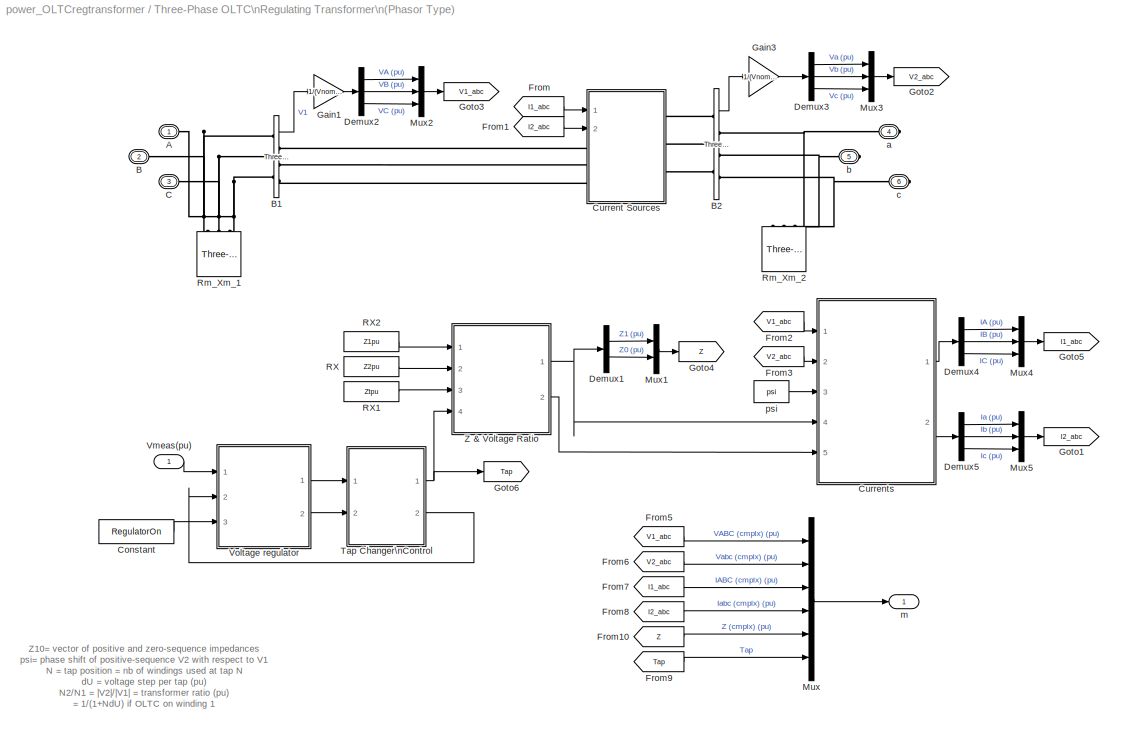
BLOCK [SubSystem] Three-Phase OLTC\nRegulating Transformer\n(Phasor Type)
  MaskCallbackString = tempMaskVis=get_param(gcb,'MaskVisibilities');\nif strcmp(get_param(gcb,'ShowParam'),'Transformer parameters')\n	tempMaskVis{2}='on'; tempMaskVis{3}='on'; tempMaskVis{4}='on'; tempMaskVis{5}='on';\n	tempMaskVis{6}='on'; tempMaskVis{7}='on'; tempMaskVis{8}='on'; tempMaskVis{16}='on';\n	tempMaskVis{9}='off'; tempMaskVis{10}='off'; tempMaskVis{11}='off'; tempMaskVis{12}='off';\n	tempMaskVis{13}='off'...<+878ch>
  MaskDescription = The OLTC transformer consists of two fixed windings and a third tapped winding (regulation winding) connected in series with either winding 1 or winding 2. Voltage ratio and  transformer impedance vary with  tap position. A +30  degrees or -30 degrees phase shift  is introduced when winding 1 or winding 2 are connected in Delta.\nIn automatic mode, (Voltage regulator 'on'), the voltage regulator a...<+96ch>
  MaskEnableString = on,on,on,on,on,on,on,on,on,on,on,on,on,on,on,on
  MaskIconFrame = on
  MaskIconOpaque = on
  MaskIconRotate = none
  MaskIconUnits = autoscale
  MaskInitialization = if ~(InitialTap>=TapMinMax(1) & InitialTap<=TapMinMax(2) &(ceil(InitialTap)-InitialTap)==0)\n   h=errordlg(sprintf('The initial tap number must be an integer comprised between % d and %d',TapMinMax(1),TapMinMax(2)),'Parameter error');\n   uiwait(h);\nend\n\nPnom=PnomFnom(1);\nFnom=PnomFnom(2);\nw=2*pi*Fnom;\nVnom1=Winding1(1);\nVnom2=Winding2(1);\nIbase1=Pnom/Vnom1/sqrt(3)*sqrt(2);\nIbase2=Pnom/Vn...<+2030ch>
  MaskPromptString = Show|Nominal power and frequency [Pnom (VA) Fnom(Hz)]|Winding 1 [V1(Vrms Ph Ph)  R1(pu)  X1(pu)]|Winding 1 connection|Winding 2 [V2(Vrms Ph Ph)  R2(pu)  X2(pu)]|Winding 2 connection|Tapped regulation winding [Rt(pu)  Xt(pu)]|Magnetization branch [Rm(pu)  Xm(pu)]|OLTC on: |Voltage step DeltaU per tap (pu)|OLTC minimum and maximum tap positions [Min Max]|Initial tap position|Tap selection time (s) (...<+156ch>
  MaskStyleString = popup(Transformer parameters|OLTC and Voltage Regulator parameters),edit,edit,popup(Y|Yg|Delta (D1)|Delta (D11)),edit,popup(Y|Yg|Delta (D1)|Delta (D11)),edit,edit,popup(Winding 1|Winding 2),edit,edit,edit,edit,popup(off|on),edit,edit
  MaskTabNameString = ,,,,,,,,,,,,,,,
  MaskToolTipString = on,on,on,on,on,on,on,on,on,on,on,on,on,on,on,on
  MaskTunableValueString = on,on,on,on,on,on,on,on,on,on,on,on,on,on,on,on
  MaskType = Three-Phase OLTC Regulating Transformer (Phasor Type)
  MaskValueString = OLTC and Voltage Regulator parameters|[47e6  60]|[120e3  0.003 0.09 ]|Yg|[25e3   0.003 0.09 ]|Delta (D1)|[ 0.003 0.09]|[300 300]|Winding 1|0.01875|[ -8  +8]|-4|4|on|[1.04   0.0375 1]|[0.7568   -45  ]
  MaskVarAliasString = ,,,,,,,,,,,,,,,
  MaskVariables = ShowParam=@1;PnomFnom=@2;Winding1=@3;Winding1Connection=&4;Winding2=@5;Winding2Connection=&6;WindingTap=@7;RmXm=@8;TapOnWinding=@9;dU=@10;TapMinMax=@11;InitialTap=@12;TapSelectionTime=@13;RegulatorOn=@14;Regulator=@15;Iw2_init=@16;
  MaskVisibilityString = on,off,off,off,off,off,off,off,on,on,on,on,on,on,on,off
  MinAlgLoopOccurrences = off
  Ports = [1, 1, 0, 0, 0, 3, 3]
  RTWSystemCode = Auto
  TreatAsAtomicUnit = off
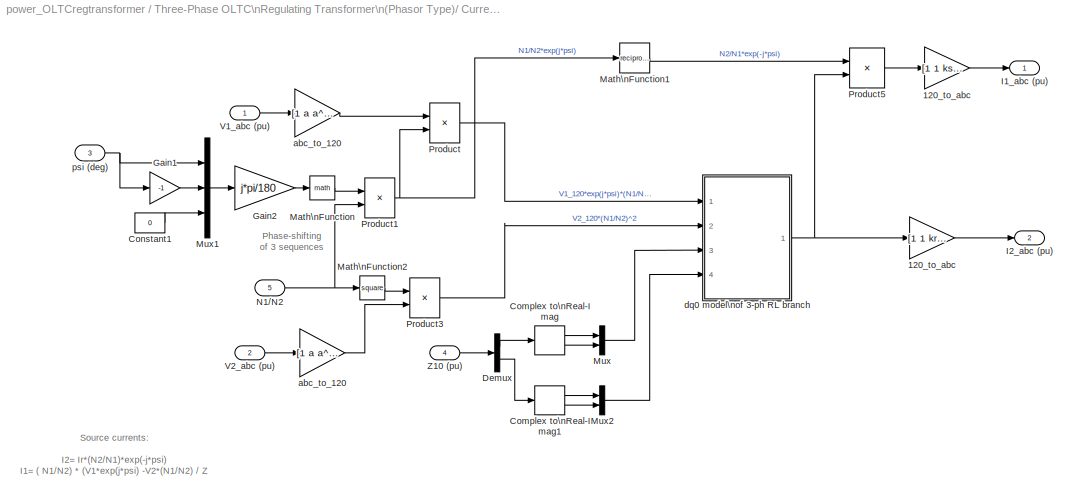
BLOCK [SubSystem] Three-Phase OLTC\nRegulating Transformer\n(Phasor Type)/ Currents 
  MinAlgLoopOccurrences = off
  Ports = [5, 2]
  RTWSystemCode = Auto
  TreatAsAtomicUnit = off
BLOCK [Gain] Three-Phase OLTC\nRegulating Transformer\n(Phasor Type)/ Currents /120_to_abc
  Gain = [1 1 kr ; a^2 a  kr ; a a^2 kr ]
  Multiplication = Matrix(K*u)
BLOCK [Gain] Three-Phase OLTC\nRegulating Transformer\n(Phasor Type)/ Currents /120_to_abc 
  Gain = [1 1 ks ; a^2 a  ks ; a  a^2 ks]
  Multiplication = Matrix(K*u)
BLOCK [ComplexToRealImag] Three-Phase OLTC\nRegulating Transformer\n(Phasor Type)/ Currents /Complex to\nReal-Imag
  Output = Real and imag
  Ports = [1, 2]
BLOCK [ComplexToRealImag] Three-Phase OLTC\nRegulating Transformer\n(Phasor Type)/ Currents /Complex to\nReal-Imag1
  Output = Real and imag
  Ports = [1, 2]
BLOCK [Constant] Three-Phase OLTC\nRegulating Transformer\n(Phasor Type)/ Currents /Constant1
  Value = 0
BLOCK [Demux] Three-Phase OLTC\nRegulating Transformer\n(Phasor Type)/ Currents /Demux
  Outputs = 2
  Ports = [1, 2]
BLOCK [Gain] Three-Phase OLTC\nRegulating Transformer\n(Phasor Type)/ Currents /Gain1
  Gain = -1
BLOCK [Gain] Three-Phase OLTC\nRegulating Transformer\n(Phasor Type)/ Currents /Gain2
  Gain = j*pi/180
BLOCK [Outport] Three-Phase OLTC\nRegulating Transformer\n(Phasor Type)/ Currents /I1_abc (pu)
  BusOutputAsStruct = off
  IconDisplay = Port number
BLOCK [Outport] Three-Phase OLTC\nRegulating Transformer\n(Phasor Type)/ Currents /I2_abc (pu) 
  BusOutputAsStruct = off
  IconDisplay = Port number
  Port = 2
BLOCK [Math] Three-Phase OLTC\nRegulating Transformer\n(Phasor Type)/ Currents /Math\nFunction
  Ports = [1, 1]
BLOCK [Math] Three-Phase OLTC\nRegulating Transformer\n(Phasor Type)/ Currents /Math\nFunction1
  Operator = reciprocal
  Ports = [1, 1]
BLOCK [Math] Three-Phase OLTC\nRegulating Transformer\n(Phasor Type)/ Currents /Math\nFunction2
  Operator = square
  Ports = [1, 1]
BLOCK [Mux] Three-Phase OLTC\nRegulating Transformer\n(Phasor Type)/ Currents /Mux
  DisplayOption = bar
  Inputs = 2
  Ports = [2, 1]
BLOCK [Mux] Three-Phase OLTC\nRegulating Transformer\n(Phasor Type)/ Currents /Mux1
  DisplayOption = bar
  Inputs = 3
  Ports = [3, 1]
BLOCK [Mux] Three-Phase OLTC\nRegulating Transformer\n(Phasor Type)/ Currents /Mux2
  DisplayOption = bar
  Inputs = 2
  Ports = [2, 1]
BLOCK [Inport] Three-Phase OLTC\nRegulating Transformer\n(Phasor Type)/ Currents /N1//N2
  IconDisplay = Port number
  LatchInput = off
  Port = 5
BLOCK [Product] Three-Phase OLTC\nRegulating Transformer\n(Phasor Type)/ Currents /Product
  InputSameDT = off
  Ports = [2, 1]
  RndMeth = Floor
BLOCK [Product] Three-Phase OLTC\nRegulating Transformer\n(Phasor Type)/ Currents /Product1
  InputSameDT = off
  Inputs = **
  Ports = [2, 1]
  RndMeth = Floor
BLOCK [Product] Three-Phase OLTC\nRegulating Transformer\n(Phasor Type)/ Currents /Product3
  InputSameDT = off
  Inputs = **
  Ports = [2, 1]
  RndMeth = Floor
BLOCK [Product] Three-Phase OLTC\nRegulating Transformer\n(Phasor Type)/ Currents /Product5
  InputSameDT = off
  Ports = [2, 1]
  RndMeth = Floor
BLOCK [Inport] Three-Phase OLTC\nRegulating Transformer\n(Phasor Type)/ Currents /V1_abc (pu)
  IconDisplay = Port number
  LatchInput = off
  Port = 1
BLOCK [Inport] Three-Phase OLTC\nRegulating Transformer\n(Phasor Type)/ Currents /V2_abc (pu)
  IconDisplay = Port number
  LatchInput = off
  Port = 2
BLOCK [Inport] Three-Phase OLTC\nRegulating Transformer\n(Phasor Type)/ Currents /Z10 (pu)
  IconDisplay = Port number
  LatchInput = off
  Port = 4
BLOCK [Gain] Three-Phase OLTC\nRegulating Transformer\n(Phasor Type)/ Currents /abc_to_120
  Gain = [1 a a^2;1 a^2 a; ks ks ks ]/3
  Multiplication = Matrix(K*u)
BLOCK [Gain] Three-Phase OLTC\nRegulating Transformer\n(Phasor Type)/ Currents /abc_to_120 
  Gain = [1 a a^2;1 a^2 a; kr kr kr ]/3
  Multiplication = Matrix(K*u)
BLOCK [SubSystem] Three-Phase OLTC\nRegulating Transformer\n(Phasor Type)/ Currents /dq0 model\nof 3-ph RL branch
  MinAlgLoopOccurrences = off
  Ports = [4, 1]
  RTWSystemCode = Auto
  TreatAsAtomicUnit = off
BLOCK [ComplexToRealImag] Three-Phase OLTC\nRegulating Transformer\n(Phasor Type)/ Currents /dq0 model\nof 3-ph RL branch/Complex to\nReal-Imag2
  Output = Real and imag
  Ports = [1, 2]
BLOCK [ComplexToRealImag] Three-Phase OLTC\nRegulating Transformer\n(Phasor Type)/ Currents /dq0 model\nof 3-ph RL branch/Complex to\nReal-Imag3
  Output = Real and imag
  Ports = [1, 2]
BLOCK [Demux] Three-Phase OLTC\nRegulating Transformer\n(Phasor Type)/ Currents /dq0 model\nof 3-ph RL branch/Demux1
  Outputs = 2
  Ports = [1, 2]
BLOCK [Demux] Three-Phase OLTC\nRegulating Transformer\n(Phasor Type)/ Currents /dq0 model\nof 3-ph RL branch/Demux2
  Outputs = 2
  Ports = [1, 2]
BLOCK [Demux] Three-Phase OLTC\nRegulating Transformer\n(Phasor Type)/ Currents /dq0 model\nof 3-ph RL branch/Demux3
  Outputs = 2
  Ports = [1, 2]
BLOCK [Outport] Three-Phase OLTC\nRegulating Transformer\n(Phasor Type)/ Currents /dq0 model\nof 3-ph RL branch/I2_120 (pu)
  BusOutputAsStruct = off
  IconDisplay = Port number
BLOCK [Mux] Three-Phase OLTC\nRegulating Transformer\n(Phasor Type)/ Currents /dq0 model\nof 3-ph RL branch/Mux
  DisplayOption = bar
  Ports = [4, 1]
BLOCK [Mux] Three-Phase OLTC\nRegulating Transformer\n(Phasor Type)/ Currents /dq0 model\nof 3-ph RL branch/Mux1
  DisplayOption = bar
  Inputs = 3
  Ports = [3, 1]
BLOCK [SubSystem] Three-Phase OLTC\nRegulating Transformer\n(Phasor Type)/ Currents /dq0 model\nof 3-ph RL branch/Negative-sequence\ndq0 model\nof a 3-phase\nseries R-L branch
  MinAlgLoopOccurrences = off
  Ports = [3, 1]
  RTWSystemCode = Auto
  TreatAsAtomicUnit = off
BLOCK [Demux] Three-Phase OLTC\nRegulating Transformer\n(Phasor Type)/ Currents /dq0 model\nof 3-ph RL branch/Negative-sequence\ndq0 model\nof a 3-phase\nseries R-L branch/Demux3
  Outputs = 2
  Ports = [1, 2]
BLOCK [Integrator] Three-Phase OLTC\nRegulating Transformer\n(Phasor Type)/ Currents /dq0 model\nof 3-ph RL branch/Negative-sequence\ndq0 model\nof a 3-phase\nseries R-L branch/Integrator
  Ports = [1, 1]
BLOCK [Product] Three-Phase OLTC\nRegulating Transformer\n(Phasor Type)/ Currents /dq0 model\nof 3-ph RL branch/Negative-sequence\ndq0 model\nof a 3-phase\nseries R-L branch/Product
  InputSameDT = off
  Ports = [2, 1]
  RndMeth = Floor
BLOCK [Product] Three-Phase OLTC\nRegulating Transformer\n(Phasor Type)/ Currents /dq0 model\nof 3-ph RL branch/Negative-sequence\ndq0 model\nof a 3-phase\nseries R-L branch/Product1
  InputSameDT = off
  Ports = [2, 1]
  RndMeth = Floor
BLOCK [Product] Three-Phase OLTC\nRegulating Transformer\n(Phasor Type)/ Currents /dq0 model\nof 3-ph RL branch/Negative-sequence\ndq0 model\nof a 3-phase\nseries R-L branch/Product2
  InputSameDT = off
  Inputs = */
  Ports = [2, 1]
  RndMeth = Floor
BLOCK [Inport] Three-Phase OLTC\nRegulating Transformer\n(Phasor Type)/ Currents /dq0 model\nof 3-ph RL branch/Negative-sequence\ndq0 model\nof a 3-phase\nseries R-L branch/R_L
  IconDisplay = Port number
  LatchInput = off
  Port = 3
BLOCK [Gain] Three-Phase OLTC\nRegulating Transformer\n(Phasor Type)/ Currents /dq0 model\nof 3-ph RL branch/Negative-sequence\ndq0 model\nof a 3-phase\nseries R-L branch/R_choke2
  Gain = [1 -1]
BLOCK [Gain] Three-Phase OLTC\nRegulating Transformer\n(Phasor Type)/ Currents /dq0 model\nof 3-ph RL branch/Negative-sequence\ndq0 model\nof a 3-phase\nseries R-L branch/R_choke3
  Gain = w
BLOCK [Selector] Three-Phase OLTC\nRegulating Transformer\n(Phasor Type)/ Currents /dq0 model\nof 3-ph RL branch/Negative-sequence\ndq0 model\nof a 3-phase\nseries R-L branch/Selector
  Elements = [2 1]
  InputPortWidth = 2
  Ports = [1, 1]
BLOCK [Sum] Three-Phase OLTC\nRegulating Transformer\n(Phasor Type)/ Currents /dq0 model\nof 3-ph RL branch/Negative-sequence\ndq0 model\nof a 3-phase\nseries R-L branch/Sum
  InputSameDT = off
  Inputs = +--+
  OutDataTypeMode = Inherit via internal rule
  Ports = [4, 1]
BLOCK [Inport] Three-Phase OLTC\nRegulating Transformer\n(Phasor Type)/ Currents /dq0 model\nof 3-ph RL branch/Negative-sequence\ndq0 model\nof a 3-phase\nseries R-L branch/Vdq1
  IconDisplay = Port number
  LatchInput = off
  Port = 1
BLOCK [Inport] Three-Phase OLTC\nRegulating Transformer\n(Phasor Type)/ Currents /dq0 model\nof 3-ph RL branch/Negative-sequence\ndq0 model\nof a 3-phase\nseries R-L branch/Vdq2
  IconDisplay = Port number
  LatchInput = off
  Port = 2
BLOCK [Outport] Three-Phase OLTC\nRegulating Transformer\n(Phasor Type)/ Currents /dq0 model\nof 3-ph RL branch/Negative-sequence\ndq0 model\nof a 3-phase\nseries R-L branch/idIq
  BusOutputAsStruct = off
  IconDisplay = Port number
BLOCK [SubSystem] Three-Phase OLTC\nRegulating Transformer\n(Phasor Type)/ Currents /dq0 model\nof 3-ph RL branch/Positive-sequence\ndq0 model\nof a 3-phase\nseries R-L branch
  MinAlgLoopOccurrences = off
  Ports = [3, 1]
  RTWSystemCode = Auto
  TreatAsAtomicUnit = off
BLOCK [Demux] Three-Phase OLTC\nRegulating Transformer\n(Phasor Type)/ Currents /dq0 model\nof 3-ph RL branch/Positive-sequence\ndq0 model\nof a 3-phase\nseries R-L branch/Demux3
  Outputs = 2
  Ports = [1, 2]
BLOCK [Integrator] Three-Phase OLTC\nRegulating Transformer\n(Phasor Type)/ Currents /dq0 model\nof 3-ph RL branch/Positive-sequence\ndq0 model\nof a 3-phase\nseries R-L branch/Integrator
  InitialCondition = [I21_init_real   I21_init_imag]
  Ports = [1, 1]
BLOCK [Product] Three-Phase OLTC\nRegulating Transformer\n(Phasor Type)/ Currents /dq0 model\nof 3-ph RL branch/Positive-sequence\ndq0 model\nof a 3-phase\nseries R-L branch/Product
  InputSameDT = off
  Ports = [2, 1]
  RndMeth = Floor
BLOCK [Product] Three-Phase OLTC\nRegulating Transformer\n(Phasor Type)/ Currents /dq0 model\nof 3-ph RL branch/Positive-sequence\ndq0 model\nof a 3-phase\nseries R-L branch/Product1
  InputSameDT = off
  Ports = [2, 1]
  RndMeth = Floor
BLOCK [Product] Three-Phase OLTC\nRegulating Transformer\n(Phasor Type)/ Currents /dq0 model\nof 3-ph RL branch/Positive-sequence\ndq0 model\nof a 3-phase\nseries R-L branch/Product2
  InputSameDT = off
  Inputs = */
  Ports = [2, 1]
  RndMeth = Floor
BLOCK [Inport] Three-Phase OLTC\nRegulating Transformer\n(Phasor Type)/ Currents /dq0 model\nof 3-ph RL branch/Positive-sequence\ndq0 model\nof a 3-phase\nseries R-L branch/R_L
  IconDisplay = Port number
  LatchInput = off
  Port = 3
BLOCK [Gain] Three-Phase OLTC\nRegulating Transformer\n(Phasor Type)/ Currents /dq0 model\nof 3-ph RL branch/Positive-sequence\ndq0 model\nof a 3-phase\nseries R-L branch/R_choke2
  Gain = [1 -1]
BLOCK [Gain] Three-Phase OLTC\nRegulating Transformer\n(Phasor Type)/ Currents /dq0 model\nof 3-ph RL branch/Positive-sequence\ndq0 model\nof a 3-phase\nseries R-L branch/R_choke3
  Gain = w
BLOCK [Selector] Three-Phase OLTC\nRegulating Transformer\n(Phasor Type)/ Currents /dq0 model\nof 3-ph RL branch/Positive-sequence\ndq0 model\nof a 3-phase\nseries R-L branch/Selector
  Elements = [2 1]
  InputPortWidth = 2
  Ports = [1, 1]
BLOCK [Sum] Three-Phase OLTC\nRegulating Transformer\n(Phasor Type)/ Currents /dq0 model\nof 3-ph RL branch/Positive-sequence\ndq0 model\nof a 3-phase\nseries R-L branch/Sum
  InputSameDT = off
  Inputs = +--+
  OutDataTypeMode = Inherit via internal rule
  Ports = [4, 1]
BLOCK [Inport] Three-Phase OLTC\nRegulating Transformer\n(Phasor Type)/ Currents /dq0 model\nof 3-ph RL branch/Positive-sequence\ndq0 model\nof a 3-phase\nseries R-L branch/Vdq1
  IconDisplay = Port number
  LatchInput = off
  Port = 1
BLOCK [Inport] Three-Phase OLTC\nRegulating Transformer\n(Phasor Type)/ Currents /dq0 model\nof 3-ph RL branch/Positive-sequence\ndq0 model\nof a 3-phase\nseries R-L branch/Vdq2
  IconDisplay = Port number
  LatchInput = off
  Port = 2
BLOCK [Outport] Three-Phase OLTC\nRegulating Transformer\n(Phasor Type)/ Currents /dq0 model\nof 3-ph RL branch/Positive-sequence\ndq0 model\nof a 3-phase\nseries R-L branch/idIq
  BusOutputAsStruct = off
  IconDisplay = Port number
BLOCK [Inport] Three-Phase OLTC\nRegulating Transformer\n(Phasor Type)/ Currents /dq0 model\nof 3-ph RL branch/RL_0
  IconDisplay = Port number
  LatchInput = off
  Port = 4
BLOCK [Inport] Three-Phase OLTC\nRegulating Transformer\n(Phasor Type)/ Currents /dq0 model\nof 3-ph RL branch/RL_1
  IconDisplay = Port number
  LatchInput = off
  Port = 3
BLOCK [RealImagToComplex] Three-Phase OLTC\nRegulating Transformer\n(Phasor Type)/ Currents /dq0 model\nof 3-ph RL branch/Real-Imag to\nComplex1
  Input = Real and imag
  Ports = [2, 1]
BLOCK [RealImagToComplex] Three-Phase OLTC\nRegulating Transformer\n(Phasor Type)/ Currents /dq0 model\nof 3-ph RL branch/Real-Imag to\nComplex2
  Input = Real and imag
  Ports = [2, 1]
BLOCK [RealImagToComplex] Three-Phase OLTC\nRegulating Transformer\n(Phasor Type)/ Currents /dq0 model\nof 3-ph RL branch/Real-Imag to\nComplex3
  Input = Real and imag
  Ports = [2, 1]
BLOCK [Selector] Three-Phase OLTC\nRegulating Transformer\n(Phasor Type)/ Currents /dq0 model\nof 3-ph RL branch/Selector
  Elements = [1 4]
  InputPortWidth = 12
  Ports = [1, 1]
BLOCK [Selector] Three-Phase OLTC\nRegulating Transformer\n(Phasor Type)/ Currents /dq0 model\nof 3-ph RL branch/Selector1
  Elements = [7 10]
  InputPortWidth = 12
  Ports = [1, 1]
BLOCK [Selector] Three-Phase OLTC\nRegulating Transformer\n(Phasor Type)/ Currents /dq0 model\nof 3-ph RL branch/Selector2
  Elements = [1 4]+1
  InputPortWidth = 12
  Ports = [1, 1]
BLOCK [Selector] Three-Phase OLTC\nRegulating Transformer\n(Phasor Type)/ Currents /dq0 model\nof 3-ph RL branch/Selector3
  Elements = [7 10]+1
  InputPortWidth = 12
  Ports = [1, 1]
BLOCK [Selector] Three-Phase OLTC\nRegulating Transformer\n(Phasor Type)/ Currents /dq0 model\nof 3-ph RL branch/Selector4
  Elements = [1 4]+2
  InputPortWidth = 12
  Ports = [1, 1]
BLOCK [Selector] Three-Phase OLTC\nRegulating Transformer\n(Phasor Type)/ Currents /dq0 model\nof 3-ph RL branch/Selector5
  Elements = [7 10]+2
  InputPortWidth = 12
  Ports = [1, 1]
BLOCK [Inport] Three-Phase OLTC\nRegulating Transformer\n(Phasor Type)/ Currents /dq0 model\nof 3-ph RL branch/V1_120(pu)
  IconDisplay = Port number
  LatchInput = off
  Port = 1
BLOCK [Inport] Three-Phase OLTC\nRegulating Transformer\n(Phasor Type)/ Currents /dq0 model\nof 3-ph RL branch/V2_120(pu)
  IconDisplay = Port number
  LatchInput = off
  Port = 2
BLOCK [SubSystem] Three-Phase OLTC\nRegulating Transformer\n(Phasor Type)/ Currents /dq0 model\nof 3-ph RL branch/Zero-sequence\ndq0 model\nof a 3-phase\nseries R-L branch
  MinAlgLoopOccurrences = off
  Ports = [3, 1]
  RTWSystemCode = Auto
  TreatAsAtomicUnit = off
BLOCK [Demux] Three-Phase OLTC\nRegulating Transformer\n(Phasor Type)/ Currents /dq0 model\nof 3-ph RL branch/Zero-sequence\ndq0 model\nof a 3-phase\nseries R-L branch/Demux3
  Outputs = 2
  Ports = [1, 2]
BLOCK [Integrator] Three-Phase OLTC\nRegulating Transformer\n(Phasor Type)/ Currents /dq0 model\nof 3-ph RL branch/Zero-sequence\ndq0 model\nof a 3-phase\nseries R-L branch/Integrator
  Ports = [1, 1]
BLOCK [Product] Three-Phase OLTC\nRegulating Transformer\n(Phasor Type)/ Currents /dq0 model\nof 3-ph RL branch/Zero-sequence\ndq0 model\nof a 3-phase\nseries R-L branch/Product
  InputSameDT = off
  Ports = [2, 1]
  RndMeth = Floor
BLOCK [Product] Three-Phase OLTC\nRegulating Transformer\n(Phasor Type)/ Currents /dq0 model\nof 3-ph RL branch/Zero-sequence\ndq0 model\nof a 3-phase\nseries R-L branch/Product1
  InputSameDT = off
  Ports = [2, 1]
  RndMeth = Floor
BLOCK [Product] Three-Phase OLTC\nRegulating Transformer\n(Phasor Type)/ Currents /dq0 model\nof 3-ph RL branch/Zero-sequence\ndq0 model\nof a 3-phase\nseries R-L branch/Product2
  InputSameDT = off
  Inputs = */
  Ports = [2, 1]
  RndMeth = Floor
BLOCK [Inport] Three-Phase OLTC\nRegulating Transformer\n(Phasor Type)/ Currents /dq0 model\nof 3-ph RL branch/Zero-sequence\ndq0 model\nof a 3-phase\nseries R-L branch/R_L
  IconDisplay = Port number
  LatchInput = off
  Port = 3
BLOCK [Gain] Three-Phase OLTC\nRegulating Transformer\n(Phasor Type)/ Currents /dq0 model\nof 3-ph RL branch/Zero-sequence\ndq0 model\nof a 3-phase\nseries R-L branch/R_choke2
  Gain = [1 -1]
BLOCK [Gain] Three-Phase OLTC\nRegulating Transformer\n(Phasor Type)/ Currents /dq0 model\nof 3-ph RL branch/Zero-sequence\ndq0 model\nof a 3-phase\nseries R-L branch/R_choke3
  Gain = w
BLOCK [Selector] Three-Phase OLTC\nRegulating Transformer\n(Phasor Type)/ Currents /dq0 model\nof 3-ph RL branch/Zero-sequence\ndq0 model\nof a 3-phase\nseries R-L branch/Selector
  Elements = [2 1]
  InputPortWidth = 2
  Ports = [1, 1]
BLOCK [Sum] Three-Phase OLTC\nRegulating Transformer\n(Phasor Type)/ Currents /dq0 model\nof 3-ph RL branch/Zero-sequence\ndq0 model\nof a 3-phase\nseries R-L branch/Sum
  InputSameDT = off
  Inputs = +--+
  OutDataTypeMode = Inherit via internal rule
  Ports = [4, 1]
BLOCK [Inport] Three-Phase OLTC\nRegulating Transformer\n(Phasor Type)/ Currents /dq0 model\nof 3-ph RL branch/Zero-sequence\ndq0 model\nof a 3-phase\nseries R-L branch/Vdq1
  IconDisplay = Port number
  LatchInput = off
  Port = 1
BLOCK [Inport] Three-Phase OLTC\nRegulating Transformer\n(Phasor Type)/ Currents /dq0 model\nof 3-ph RL branch/Zero-sequence\ndq0 model\nof a 3-phase\nseries R-L branch/Vdq2
  IconDisplay = Port number
  LatchInput = off
  Port = 2
BLOCK [Outport] Three-Phase OLTC\nRegulating Transformer\n(Phasor Type)/ Currents /dq0 model\nof 3-ph RL branch/Zero-sequence\ndq0 model\nof a 3-phase\nseries R-L branch/idIq
  BusOutputAsStruct = off
  IconDisplay = Port number
BLOCK [Inport] Three-Phase OLTC\nRegulating Transformer\n(Phasor Type)/ Currents /psi (deg)
  IconDisplay = Port number
  LatchInput = off
  Port = 3
BLOCK [PMIOPort] Three-Phase OLTC\nRegulating Transformer\n(Phasor Type)/A
  Port = 1
  Side = Left
  Tag = PMCPort
BLOCK [PMIOPort] Three-Phase OLTC\nRegulating Transformer\n(Phasor Type)/B
  Port = 2
  Side = Left
  Tag = PMCPort
BLOCK [Reference] Three-Phase OLTC\nRegulating Transformer\n(Phasor Type)/B1   REF=powerlib/Measurements/Three-Phase\nV-I Measurement
  CurrentMeasurement = no
  Ipu = off
  LabelI = Iabc_B21
  LabelV = Vabc_B21
  OutputType = Complex
  PSBequivalent = 0
  Pbase = 10e6
  PhasorSimulation = on
  Ports = [0, 1, 0, 0, 0, 3, 3]
  SetLabelI = off
  SetLabelV = off
  ShowPortLabels = on
  SourceBlock = powerlib/Measurements/Three-Phase\nV-I Measurement
  SourceType = Three-Phase VI Measurement
  Vbase = 25e3
  VoltageMeasurement = phase-to-ground
  Vpu = off
BLOCK [Reference] Three-Phase OLTC\nRegulating Transformer\n(Phasor Type)/B2  REF=powerlib/Measurements/Three-Phase\nV-I Measurement
  CurrentMeasurement = no
  Ipu = off
  LabelI = Iabc_B21
  LabelV = Vabc_B21
  OutputType = Complex
  PSBequivalent = 0
  Pbase = 10e6
  PhasorSimulation = on
  Ports = [0, 1, 0, 0, 0, 3, 3]
  SetLabelI = off
  SetLabelV = off
  ShowPortLabels = on
  SourceBlock = powerlib/Measurements/Three-Phase\nV-I Measurement
  SourceType = Three-Phase VI Measurement
  Vbase = 25e3
  VoltageMeasurement = phase-to-ground
  Vpu = off
BLOCK [PMIOPort] Three-Phase OLTC\nRegulating Transformer\n(Phasor Type)/C
  Port = 3
  Side = Left
  Tag = PMCPort
BLOCK [Constant] Three-Phase OLTC\nRegulating Transformer\n(Phasor Type)/Constant
  Value = RegulatorOn
BLOCK [SubSystem] Three-Phase OLTC\nRegulating Transformer\n(Phasor Type)/Current Sources
  MaskIconFrame = on
  MaskIconOpaque = on
  MaskIconRotate = none
  MaskIconUnits = autoscale
  MinAlgLoopOccurrences = off
  Ports = [2, 0, 0, 0, 0, 3, 3]
  RTWSystemCode = Auto
  TreatAsAtomicUnit = off
BLOCK [PMIOPort] Three-Phase OLTC\nRegulating Transformer\n(Phasor Type)/Current Sources/A
  Port = 1
  Side = Left
BLOCK [PMIOPort] Three-Phase OLTC\nRegulating Transformer\n(Phasor Type)/Current Sources/B
  Port = 3
  Side = Left
BLOCK [PMIOPort] Three-Phase OLTC\nRegulating Transformer\n(Phasor Type)/Current Sources/C
  Port = 6
  Side = Left
BLOCK [Demux] Three-Phase OLTC\nRegulating Transformer\n(Phasor Type)/Current Sources/Demux
  Outputs = 3
  Ports = [1, 3]
BLOCK [Demux] Three-Phase OLTC\nRegulating Transformer\n(Phasor Type)/Current Sources/Demux1
  Outputs = 3
  Ports = [1, 3]
BLOCK [Gain] Three-Phase OLTC\nRegulating Transformer\n(Phasor Type)/Current Sources/Gain2
  Gain = Ibase2
BLOCK [Gain] Three-Phase OLTC\nRegulating Transformer\n(Phasor Type)/Current Sources/Gain4
  Gain = Ibase1
BLOCK [Reference] Three-Phase OLTC\nRegulating Transformer\n(Phasor Type)/Current Sources/Ground1  REF=powerlib/Elements/Ground
  AttributesFormatString = \\n
  LConnTagsString = a
  LeftPortType = p1
  PhysicalDomain = powersysdomain
  Ports = [0, 0, 0, 0, 0, 1]
  RightPortType = p1
  SourceBlock = powerlib/Elements/Ground
  SourceType = Ground
  SubClassName = unknown
BLOCK [Reference] Three-Phase OLTC\nRegulating Transformer\n(Phasor Type)/Current Sources/Ground2  REF=powerlib/Elements/Ground
  AttributesFormatString = \\n
  LConnTagsString = a
  LeftPortType = p1
  PhysicalDomain = powersysdomain
  Ports = [0, 0, 0, 0, 0, 1]
  RightPortType = p1
  SourceBlock = powerlib/Elements/Ground
  SourceType = Ground
  SubClassName = unknown
BLOCK [Inport] Three-Phase OLTC\nRegulating Transformer\n(Phasor Type)/Current Sources/I1_abc
  IconDisplay = Port number
  LatchInput = off
  Port = 1
BLOCK [Inport] Three-Phase OLTC\nRegulating Transformer\n(Phasor Type)/Current Sources/I2_abc
  IconDisplay = Port number
  LatchInput = off
  Port = 2
BLOCK [Reference] Three-Phase OLTC\nRegulating Transformer\n(Phasor Type)/Current Sources/IA  REF=powerlib/Electrical\nSources/Controlled Current Source
  Amplitude = Iw1A_init_mag
  Frequency = Fnom
  Initialize = on
  Measurements = None
  Phase = Iw1A_init_pha
  Ports = [1, 0, 0, 0, 0, 1, 1]
  ShowPortLabels = on
  SourceBlock = powerlib/Electrical\nSources/Controlled Current Source
  SourceType = AC
BLOCK [Reference] Three-Phase OLTC\nRegulating Transformer\n(Phasor Type)/Current Sources/IB  REF=powerlib/Electrical\nSources/Controlled Current Source
  Amplitude = Iw1B_init_mag
  Frequency = Fnom
  Initialize = on
  Measurements = None
  Phase = Iw1B_init_pha
  Ports = [1, 0, 0, 0, 0, 1, 1]
  ShowPortLabels = on
  SourceBlock = powerlib/Electrical\nSources/Controlled Current Source
  SourceType = AC
BLOCK [Reference] Three-Phase OLTC\nRegulating Transformer\n(Phasor Type)/Current Sources/IC  REF=powerlib/Electrical\nSources/Controlled Current Source
  Amplitude = Iw1C_init_mag
  Frequency = Fnom
  Initialize = on
  Measurements = None
  Phase = Iw1C_init_pha
  Ports = [1, 0, 0, 0, 0, 1, 1]
  ShowPortLabels = on
  SourceBlock = powerlib/Electrical\nSources/Controlled Current Source
  SourceType = AC
BLOCK [Reference] Three-Phase OLTC\nRegulating Transformer\n(Phasor Type)/Current Sources/Ia  REF=powerlib/Electrical\nSources/Controlled Current Source
  Amplitude = Iw2A_init_mag
  Frequency = Fnom
  Initialize = on
  Measurements = None
  Phase = Iw2A_init_pha
  Ports = [1, 0, 0, 0, 0, 1, 1]
  ShowPortLabels = on
  SourceBlock = powerlib/Electrical\nSources/Controlled Current Source
  SourceType = AC
BLOCK [Reference] Three-Phase OLTC\nRegulating Transformer\n(Phasor Type)/Current Sources/Ib  REF=powerlib/Electrical\nSources/Controlled Current Source
  Amplitude = Iw2B_init_mag
  Frequency = Fnom
  Initialize = on
  Measurements = None
  Phase = Iw2B_init_pha
  Ports = [1, 0, 0, 0, 0, 1, 1]
  ShowPortLabels = on
  SourceBlock = powerlib/Electrical\nSources/Controlled Current Source
  SourceType = AC
BLOCK [Reference] Three-Phase OLTC\nRegulating Transformer\n(Phasor Type)/Current Sources/Ic  REF=powerlib/Electrical\nSources/Controlled Current Source
  Amplitude = Iw2C_init_mag
  Frequency = Fnom
  Initialize = on
  Measurements = None
  Phase = Iw2C_init_pha
  Ports = [1, 0, 0, 0, 0, 1, 1]
  ShowPortLabels = on
  SourceBlock = powerlib/Electrical\nSources/Controlled Current Source
  SourceType = AC
BLOCK [PMIOPort] Three-Phase OLTC\nRegulating Transformer\n(Phasor Type)/Current Sources/a
  Port = 2
  Side = Right
BLOCK [PMIOPort] Three-Phase OLTC\nRegulating Transformer\n(Phasor Type)/Current Sources/b
  Port = 4
  Side = Right
BLOCK [PMIOPort] Three-Phase OLTC\nRegulating Transformer\n(Phasor Type)/Current Sources/c
  Port = 5
  Side = Right
BLOCK [Demux] Three-Phase OLTC\nRegulating Transformer\n(Phasor Type)/Demux1
  Outputs = 2
  Ports = [1, 2]
BLOCK [Demux] Three-Phase OLTC\nRegulating Transformer\n(Phasor Type)/Demux2
  Outputs = 3
  Ports = [1, 3]
BLOCK [Demux] Three-Phase OLTC\nRegulating Transformer\n(Phasor Type)/Demux3
  Outputs = 3
  Ports = [1, 3]
BLOCK [Demux] Three-Phase OLTC\nRegulating Transformer\n(Phasor Type)/Demux4
  Outputs = 3
  Ports = [1, 3]
BLOCK [Demux] Three-Phase OLTC\nRegulating Transformer\n(Phasor Type)/Demux5
  Outputs = 3
  Ports = [1, 3]
BLOCK [From] Three-Phase OLTC\nRegulating Transformer\n(Phasor Type)/From
  CloseFcn = tagdialog Close
  DialogController = Simulink.DDGSource
  GotoTag = I1_abc
BLOCK [From] Three-Phase OLTC\nRegulating Transformer\n(Phasor Type)/From1
  CloseFcn = tagdialog Close
  DialogController = Simulink.DDGSource
  GotoTag = I2_abc
BLOCK [From] Three-Phase OLTC\nRegulating Transformer\n(Phasor Type)/From10
  CloseFcn = tagdialog Close
  DialogController = Simulink.DDGSource
  GotoTag = Z
BLOCK [From] Three-Phase OLTC\nRegulating Transformer\n(Phasor Type)/From2
  CloseFcn = tagdialog Close
  DialogController = Simulink.DDGSource
  GotoTag = V1_abc
BLOCK [From] Three-Phase OLTC\nRegulating Transformer\n(Phasor Type)/From3
  CloseFcn = tagdialog Close
  DialogController = Simulink.DDGSource
  GotoTag = V2_abc
BLOCK [From] Three-Phase OLTC\nRegulating Transformer\n(Phasor Type)/From5
  CloseFcn = tagdialog Close
  DialogController = Simulink.DDGSource
  GotoTag = V1_abc
BLOCK [From] Three-Phase OLTC\nRegulating Transformer\n(Phasor Type)/From6
  CloseFcn = tagdialog Close
  DialogController = Simulink.DDGSource
  GotoTag = V2_abc
BLOCK [From] Three-Phase OLTC\nRegulating Transformer\n(Phasor Type)/From7
  CloseFcn = tagdialog Close
  DialogController = Simulink.DDGSource
  GotoTag = I1_abc
BLOCK [From] Three-Phase OLTC\nRegulating Transformer\n(Phasor Type)/From8
  CloseFcn = tagdialog Close
  DialogController = Simulink.DDGSource
  GotoTag = I2_abc
BLOCK [From] Three-Phase OLTC\nRegulating Transformer\n(Phasor Type)/From9
  CloseFcn = tagdialog Close
  DialogController = Simulink.DDGSource
  GotoTag = Tap
BLOCK [Gain] Three-Phase OLTC\nRegulating Transformer\n(Phasor Type)/Gain1
  Gain = 1/(Vnom1*sqrt(2/3))
BLOCK [Gain] Three-Phase OLTC\nRegulating Transformer\n(Phasor Type)/Gain3
  Gain = 1/(Vnom2*sqrt(2/3))
BLOCK [Goto] Three-Phase OLTC\nRegulating Transformer\n(Phasor Type)/Goto1
  DialogController = Simulink.DDGSource
  GotoTag = I2_abc
  TagVisibility = local
BLOCK [Goto] Three-Phase OLTC\nRegulating Transformer\n(Phasor Type)/Goto2
  DialogController = Simulink.DDGSource
  GotoTag = V2_abc
  TagVisibility = local
BLOCK [Goto] Three-Phase OLTC\nRegulating Transformer\n(Phasor Type)/Goto3
  DialogController = Simulink.DDGSource
  GotoTag = V1_abc
  TagVisibility = local
BLOCK [Goto] Three-Phase OLTC\nRegulating Transformer\n(Phasor Type)/Goto4
  DialogController = Simulink.DDGSource
  GotoTag = Z
  TagVisibility = local
BLOCK [Goto] Three-Phase OLTC\nRegulating Transformer\n(Phasor Type)/Goto5
  DialogController = Simulink.DDGSource
  GotoTag = I1_abc
  TagVisibility = local
BLOCK [Goto] Three-Phase OLTC\nRegulating Transformer\n(Phasor Type)/Goto6
  DialogController = Simulink.DDGSource
  GotoTag = Tap
  TagVisibility = local
BLOCK [Mux] Three-Phase OLTC\nRegulating Transformer\n(Phasor Type)/Mux
  DisplayOption = bar
  Inputs = 6
  Ports = [6, 1]
BLOCK [Mux] Three-Phase OLTC\nRegulating Transformer\n(Phasor Type)/Mux1
  DisplayOption = bar
  Inputs = 2
  Ports = [2, 1]
BLOCK [Mux] Three-Phase OLTC\nRegulating Transformer\n(Phasor Type)/Mux2
  DisplayOption = bar
  Inputs = 3
  Ports = [3, 1]
BLOCK [Mux] Three-Phase OLTC\nRegulating Transformer\n(Phasor Type)/Mux3
  DisplayOption = bar
  Inputs = 3
  Ports = [3, 1]
BLOCK [Mux] Three-Phase OLTC\nRegulating Transformer\n(Phasor Type)/Mux4
  DisplayOption = bar
  Inputs = 3
  Ports = [3, 1]
BLOCK [Mux] Three-Phase OLTC\nRegulating Transformer\n(Phasor Type)/Mux5
  DisplayOption = bar
  Inputs = 3
  Ports = [3, 1]
BLOCK [Constant] Three-Phase OLTC\nRegulating Transformer\n(Phasor Type)/RX
  Value = Z2pu
BLOCK [Constant] Three-Phase OLTC\nRegulating Transformer\n(Phasor Type)/RX1
  Value = Ztpu
BLOCK [Constant] Three-Phase OLTC\nRegulating Transformer\n(Phasor Type)/RX2
  Value = Z1pu
BLOCK [Reference] Three-Phase OLTC\nRegulating Transformer\n(Phasor Type)/Rm_Xm_1  REF=powerlib/Elements/Three-Phase\nParallel RLC Load
  ActivePower = Pnom/RmXm(1)/2
  AttributesFormatString = \\n
  CapacitivePower = 0
  Configuration = Y (grounded)
  InductivePower = Pnom/RmXm(2)/2
  LConnTagsString = A|B|C
  LeftPortType = p1
  Measurements = None
  NominalFrequency = Fnom
  NominalVoltage = Vnom1
  PhysicalDomain = powersysdomain
  Ports = [0, 0, 0, 0, 0, 3]
  RightPortType = p1
  SourceBlock = powerlib/Elements/Three-Phase\nParallel RLC Load
  SourceType = Three-Phase Parallel RLC Load
  SubClassName = unknown
BLOCK [Reference] Three-Phase OLTC\nRegulating Transformer\n(Phasor Type)/Rm_Xm_2  REF=powerlib/Elements/Three-Phase\nParallel RLC Load
  ActivePower = Pnom/RmXm(1)/2
  AttributesFormatString = \\n
  CapacitivePower = 0
  Configuration = Y (grounded)
  InductivePower = Pnom/RmXm(2)/2
  LConnTagsString = A|B|C
  LeftPortType = p1
  Measurements = None
  NominalFrequency = Fnom
  NominalVoltage = Vnom2
  PhysicalDomain = powersysdomain
  Ports = [0, 0, 0, 0, 0, 3]
  RightPortType = p1
  SourceBlock = powerlib/Elements/Three-Phase\nParallel RLC Load
  SourceType = Three-Phase Parallel RLC Load
  SubClassName = unknown
BLOCK [SubSystem] Three-Phase OLTC\nRegulating Transformer\n(Phasor Type)/Tap Changer\nControl
  MaskCallbackString = ||
  MaskEnableString = on,on,on
  MaskIconFrame = on
  MaskIconOpaque = on
  MaskIconRotate = none
  MaskIconUnits = autoscale
  MaskInitialization = if MecDelay<=0,\n	MecDelay=1/60;\nend
  MaskPromptString = Minimum and maximum tap number [ Min  Max ] :|Initial tap position|Mechanical delay time
  MaskStyleString = edit,edit,edit
  MaskTabNameString = ,,
  MaskToolTipString = on,on,on
  MaskTunableValueString = on,on,on
  MaskType = Tap Changer Control
  MaskValueString = TapMinMax|InitialTap|TapSelectionTime
  MaskVarAliasString = ,,
  MaskVariables = MinMaxTap=@1;InitialPosition=@2;MecDelay=@3;
  MaskVisibilityString = on,on,on
  MinAlgLoopOccurrences = off
  Ports = [2, 2]
  RTWSystemCode = Auto
  TreatAsAtomicUnit = off
BLOCK [Constant] Three-Phase OLTC\nRegulating Transformer\n(Phasor Type)/Tap Changer\nControl/Constant
  Value = -1
BLOCK [Constant] Three-Phase OLTC\nRegulating Transformer\n(Phasor Type)/Tap Changer\nControl/Constant1
BLOCK [SubSystem] Three-Phase OLTC\nRegulating Transformer\n(Phasor Type)/Tap Changer\nControl/Determine\ntap positon
  MinAlgLoopOccurrences = off
  Ports = [1, 1, 0, 1]
  RTWSystemCode = Auto
  TreatAsAtomicUnit = off
BLOCK [Memory] Three-Phase OLTC\nRegulating Transformer\n(Phasor Type)/Tap Changer\nControl/Determine\ntap positon/Memory
  InheritSampleTime = on
  X0 = InitialPosition
BLOCK [Inport] Three-Phase OLTC\nRegulating Transformer\n(Phasor Type)/Tap Changer\nControl/Determine\ntap positon/NewTap
  IconDisplay = Port number
  LatchInput = off
  Port = 1
BLOCK [Saturate] Three-Phase OLTC\nRegulating Transformer\n(Phasor Type)/Tap Changer\nControl/Determine\ntap positon/Saturation
  LowerLimit = MinMaxTap(1)
  UpperLimit = MinMaxTap(2)
BLOCK [Sum] Three-Phase OLTC\nRegulating Transformer\n(Phasor Type)/Tap Changer\nControl/Determine\ntap positon/Sum
  IconShape = round
  InputSameDT = off
  Inputs = |++
  OutDataTypeMode = Inherit via internal rule
  Ports = [2, 1]
BLOCK [Outport] Three-Phase OLTC\nRegulating Transformer\n(Phasor Type)/Tap Changer\nControl/Determine\ntap positon/TapNo
  BusOutputAsStruct = off
  IconDisplay = Port number
  InitialOutput = InitialPosition
BLOCK [TriggerPort] Three-Phase OLTC\nRegulating Transformer\n(Phasor Type)/Tap Changer\nControl/Determine\ntap positon/Trigger
  Ports = []
BLOCK [Inport] Three-Phase OLTC\nRegulating Transformer\n(Phasor Type)/Tap Changer\nControl/Down
  IconDisplay = Port number
  LatchInput = off
  Port = 2
BLOCK [Reference] Three-Phase OLTC\nRegulating Transformer\n(Phasor Type)/Tap Changer\nControl/Edge Detector  REF=powerlib_extras/Control \nBlocks/Edge Detector
  Ports = [1, 1]
  ShowPortLabels = off
  SourceBlock = powerlib_extras/Control \nBlocks/Edge Detector
  SourceType = Edge Detector
  ic = 0
  model = Rising
BLOCK [Logic] Three-Phase OLTC\nRegulating Transformer\n(Phasor Type)/Tap Changer\nControl/Logical\nOperator
  AllPortsSameDT = off
  Operator = OR
  Ports = [2, 1]
BLOCK [Logic] Three-Phase OLTC\nRegulating Transformer\n(Phasor Type)/Tap Changer\nControl/Logical\nOperator1
  AllPortsSameDT = off
  Ports = [2, 1]
BLOCK [TransportDelay] Three-Phase OLTC\nRegulating Transformer\n(Phasor Type)/Tap Changer\nControl/Mechanical\nDelay
  DelayTime = MecDelay
  InitialInput = InitialPosition
BLOCK [Memory] Three-Phase OLTC\nRegulating Transformer\n(Phasor Type)/Tap Changer\nControl/Memory
  InheritSampleTime = on
  X0 = 1
BLOCK [Outport] Three-Phase OLTC\nRegulating Transformer\n(Phasor Type)/Tap Changer\nControl/Ready
  BusOutputAsStruct = off
  IconDisplay = Port number
  Port = 2
BLOCK [RelationalOperator] Three-Phase OLTC\nRegulating Transformer\n(Phasor Type)/Tap Changer\nControl/Relational\nOperator
  InputSameDT = off
  LogicDataType = float('double')
  LogicOutDataTypeMode = Specify via dialog
  Operator = ==
BLOCK [Switch] Three-Phase OLTC\nRegulating Transformer\n(Phasor Type)/Tap Changer\nControl/Switch
  InputSameDT = off
  Threshold = 0.5
BLOCK [Outport] Three-Phase OLTC\nRegulating Transformer\n(Phasor Type)/Tap Changer\nControl/TapNo
  BusOutputAsStruct = off
  IconDisplay = Port number
BLOCK [Inport] Three-Phase OLTC\nRegulating Transformer\n(Phasor Type)/Tap Changer\nControl/Up
  IconDisplay = Port number
  LatchInput = off
  Port = 1
BLOCK [Inport] Three-Phase OLTC\nRegulating Transformer\n(Phasor Type)/Vmeas(pu)
  IconDisplay = Port number
  LatchInput = off
  Port = 1
BLOCK [SubSystem] Three-Phase OLTC\nRegulating Transformer\n(Phasor Type)/Voltage regulator
  MaskCallbackString = ||
  MaskEnableString = on,on,on
  MaskIconFrame = on
  MaskIconOpaque = on
  MaskIconRotate = none
  MaskIconUnits = autoscale
  MaskPromptString = Vref (pu)|Deadband (pu)|Time delay (s)
  MaskStyleString = edit,edit,edit
  MaskTabNameString = ,,
  MaskToolTipString = on,on,on
  MaskTunableValueString = on,on,on
  MaskValueString = RegulatorVref|RegulatorDeadBand|RegulatorDelay
  MaskVarAliasString = ,,
  MaskVariables = Vref=@1;DeadBand=@2;TimeDelay=@3;
  MaskVisibilityString = on,on,on
  MinAlgLoopOccurrences = off
  Ports = [3, 2]
  RTWSystemCode = Auto
  TreatAsAtomicUnit = off
BLOCK [DeadZone] Three-Phase OLTC\nRegulating Transformer\n(Phasor Type)/Voltage regulator/Dead Zone
  LowerValue = -DeadBand/2
  UpperValue = +DeadBand/2
BLOCK [Outport] Three-Phase OLTC\nRegulating Transformer\n(Phasor Type)/Voltage regulator/Down
  BusOutputAsStruct = off
  IconDisplay = Port number
  Port = 2
BLOCK [Logic] Three-Phase OLTC\nRegulating Transformer\n(Phasor Type)/Voltage regulator/Logical\nOperator
  AllPortsSameDT = off
  Ports = [2, 1]
BLOCK [Logic] Three-Phase OLTC\nRegulating Transformer\n(Phasor Type)/Voltage regulator/Logical\nOperator1
  AllPortsSameDT = off
  Ports = [2, 1]
BLOCK [Reference] Three-Phase OLTC\nRegulating Transformer\n(Phasor Type)/Voltage regulator/On//Off Delay  REF=powerlib_extras/Control \nBlocks/On//Off Delay
  Ports = [1, 1]
  ShowPortLabels = off
  SourceBlock = powerlib_extras/Control \nBlocks/On//Off Delay
  SourceType = On/Off Delay
  delay = TimeDelay
  ic = 0
  type_delay = On delay
BLOCK [Reference] Three-Phase OLTC\nRegulating Transformer\n(Phasor Type)/Voltage regulator/On//Off Delay1  REF=powerlib_extras/Control \nBlocks/On//Off Delay
  Ports = [1, 1]
  ShowPortLabels = off
  SourceBlock = powerlib_extras/Control \nBlocks/On//Off Delay
  SourceType = On/Off Delay
  delay = TimeDelay
  ic = 0
  type_delay = On delay
BLOCK [Inport] Three-Phase OLTC\nRegulating Transformer\n(Phasor Type)/Voltage regulator/Ready
  IconDisplay = Port number
  LatchInput = off
  Port = 2
BLOCK [Inport] Three-Phase OLTC\nRegulating Transformer\n(Phasor Type)/Voltage regulator/RegOn
  IconDisplay = Port number
  LatchInput = off
  Port = 3
BLOCK [RelationalOperator] Three-Phase OLTC\nRegulating Transformer\n(Phasor Type)/Voltage regulator/Relational\nOperator
  InputSameDT = off
  Operator = >
BLOCK [RelationalOperator] Three-Phase OLTC\nRegulating Transformer\n(Phasor Type)/Voltage regulator/Relational\nOperator1
  InputSameDT = off
  Operator = <
BLOCK [Sum] Three-Phase OLTC\nRegulating Transformer\n(Phasor Type)/Voltage regulator/Sum
  IconShape = round
  InputSameDT = off
  Inputs = |+-
  OutDataTypeMode = Inherit via internal rule
  Ports = [2, 1]
BLOCK [Switch] Three-Phase OLTC\nRegulating Transformer\n(Phasor Type)/Voltage regulator/Switch
  InputSameDT = off
  Threshold = 1.5
BLOCK [Switch] Three-Phase OLTC\nRegulating Transformer\n(Phasor Type)/Voltage regulator/Switch1
  InputSameDT = off
  Threshold = 1.5
BLOCK [Switch] Three-Phase OLTC\nRegulating Transformer\n(Phasor Type)/Voltage regulator/Switch2
  InputSameDT = off
  Threshold = 1.5
BLOCK [TransportDelay] Three-Phase OLTC\nRegulating Transformer\n(Phasor Type)/Voltage regulator/Transport\nDelay
  DelayTime = 3/60
  InitialInput = 1
BLOCK [Outport] Three-Phase OLTC\nRegulating Transformer\n(Phasor Type)/Voltage regulator/Up
  BusOutputAsStruct = off
  IconDisplay = Port number
BLOCK [Inport] Three-Phase OLTC\nRegulating Transformer\n(Phasor Type)/Voltage regulator/Vmes (pu)
  IconDisplay = Port number
  LatchInput = off
  Port = 1
BLOCK [Constant] Three-Phase OLTC\nRegulating Transformer\n(Phasor Type)/Voltage regulator/Vref
  Value = Vref
BLOCK [Constant] Three-Phase OLTC\nRegulating Transformer\n(Phasor Type)/Voltage regulator/Vref1
  Value = 0
BLOCK [Constant] Three-Phase OLTC\nRegulating Transformer\n(Phasor Type)/Voltage regulator/Vref2
  Value = 0
BLOCK [Constant] Three-Phase OLTC\nRegulating Transformer\n(Phasor Type)/Voltage regulator/Vref3
  Value = 0
BLOCK [Constant] Three-Phase OLTC\nRegulating Transformer\n(Phasor Type)/Voltage regulator/Vref4
  Value = TapOnWinding
BLOCK [SubSystem] Three-Phase OLTC\nRegulating Transformer\n(Phasor Type)/Z & Voltage Ratio
  MinAlgLoopOccurrences = off
  Ports = [4, 2]
  RTWSystemCode = Auto
  TreatAsAtomicUnit = off
BLOCK [Reference] Three-Phase OLTC\nRegulating Transformer\n(Phasor Type)/Z & Voltage Ratio/1st-Order \nFilter4  REF=powerlib_extras/Control \nBlocks/1st-Order \nFilter
  FilterType = Lowpass
  Initialize = on
  PlotResponse = off
  Ports = [1, 1]
  ShowPortLabels = on
  SourceBlock = powerlib_extras/Control \nBlocks/1st-Order \nFilter
  SourceType = First-Order Filter
  Tc = 1/Fnom
  Vac_Init = [0 0  Fnom]
  Vdc_Init = InitialTap
  param1 = [1 500 1]
BLOCK [Logic] Three-Phase OLTC\nRegulating Transformer\n(Phasor Type)/Z & Voltage Ratio/Logical\nOperator
  AllPortsSameDT = off
  Operator = NOT
  Ports = [1, 1]
BLOCK [Mux] Three-Phase OLTC\nRegulating Transformer\n(Phasor Type)/Z & Voltage Ratio/Mux
  DisplayOption = bar
  Inputs = 2
  Ports = [2, 1]
BLOCK [Outport] Three-Phase OLTC\nRegulating Transformer\n(Phasor Type)/Z & Voltage Ratio/N1//N2
  BusOutputAsStruct = off
  IconDisplay = Port number
  Port = 2
BLOCK [Constant] Three-Phase OLTC\nRegulating Transformer\n(Phasor Type)/Z & Voltage Ratio/RX1
  Value = TapOnWinding
BLOCK [Constant] Three-Phase OLTC\nRegulating Transformer\n(Phasor Type)/Z & Voltage Ratio/RX2
BLOCK [Constant] Three-Phase OLTC\nRegulating Transformer\n(Phasor Type)/Z & Voltage Ratio/RX3
  Value = dU
BLOCK [Constant] Three-Phase OLTC\nRegulating Transformer\n(Phasor Type)/Z & Voltage Ratio/RX4
  Value = Nmax
BLOCK [RelationalOperator] Three-Phase OLTC\nRegulating Transformer\n(Phasor Type)/Z & Voltage Ratio/Relational\nOperator
  InputSameDT = off
  Operator = ==
BLOCK [Switch] Three-Phase OLTC\nRegulating Transformer\n(Phasor Type)/Z & Voltage Ratio/Switch
  Criteria = u2 ~= 0
  InputSameDT = off
  Threshold = 0.5
BLOCK [Switch] Three-Phase OLTC\nRegulating Transformer\n(Phasor Type)/Z & Voltage Ratio/Switch1
  Criteria = u2 ~= 0
  InputSameDT = off
  Threshold = 0.5
BLOCK [Inport] Three-Phase OLTC\nRegulating Transformer\n(Phasor Type)/Z & Voltage Ratio/TapNo
  IconDisplay = Port number
  LatchInput = off
  Port = 4
BLOCK [SubSystem] Three-Phase OLTC\nRegulating Transformer\n(Phasor Type)/Z & Voltage Ratio/Z Tap on winding 1
  MinAlgLoopOccurrences = off
  Ports = [6, 2, 1]
  RTWSystemCode = Auto
  TreatAsAtomicUnit = off
BLOCK [EnablePort] Three-Phase OLTC\nRegulating Transformer\n(Phasor Type)/Z & Voltage Ratio/Z Tap on winding 1/Enable
  Ports = []
BLOCK [Math] Three-Phase OLTC\nRegulating Transformer\n(Phasor Type)/Z & Voltage Ratio/Z Tap on winding 1/Math\nFunction1
  Operator = square
  Ports = [1, 1]
BLOCK [Math] Three-Phase OLTC\nRegulating Transformer\n(Phasor Type)/Z & Voltage Ratio/Z Tap on winding 1/Math\nFunction2
  Operator = square
  Ports = [1, 1]
BLOCK [Inport] Three-Phase OLTC\nRegulating Transformer\n(Phasor Type)/Z & Voltage Ratio/Z Tap on winding 1/N
  IconDisplay = Port number
  LatchInput = off
  Port = 1
BLOCK [Outport] Three-Phase OLTC\nRegulating Transformer\n(Phasor Type)/Z & Voltage Ratio/Z Tap on winding 1/N1//N2
  BusOutputAsStruct = off
  IconDisplay = Port number
  Port = 2
BLOCK [Inport] Three-Phase OLTC\nRegulating Transformer\n(Phasor Type)/Z & Voltage Ratio/Z Tap on winding 1/Nmax
  IconDisplay = Port number
  LatchInput = off
  Port = 6
BLOCK [Product] Three-Phase OLTC\nRegulating Transformer\n(Phasor Type)/Z & Voltage Ratio/Z Tap on winding 1/Product1
  InputSameDT = off
  Ports = [2, 1]
  RndMeth = Floor
BLOCK [Product] Three-Phase OLTC\nRegulating Transformer\n(Phasor Type)/Z & Voltage Ratio/Z Tap on winding 1/Product2
  InputSameDT = off
  Ports = [2, 1]
  RndMeth = Floor
BLOCK [Product] Three-Phase OLTC\nRegulating Transformer\n(Phasor Type)/Z & Voltage Ratio/Z Tap on winding 1/Product3
  InputSameDT = off
  Inputs = ****
  Ports = [4, 1]
  RndMeth = Floor
BLOCK [Constant] Three-Phase OLTC\nRegulating Transformer\n(Phasor Type)/Z & Voltage Ratio/Z Tap on winding 1/Psi1
BLOCK [Sum] Three-Phase OLTC\nRegulating Transformer\n(Phasor Type)/Z & Voltage Ratio/Z Tap on winding 1/Sum1
  InputSameDT = off
  Inputs = +++
  OutDataTypeMode = Inherit via internal rule
  Ports = [3, 1]
BLOCK [Sum] Three-Phase OLTC\nRegulating Transformer\n(Phasor Type)/Z & Voltage Ratio/Z Tap on winding 1/Sum2
  InputSameDT = off
  OutDataTypeMode = Inherit via internal rule
  Ports = [2, 1]
BLOCK [Outport] Three-Phase OLTC\nRegulating Transformer\n(Phasor Type)/Z & Voltage Ratio/Z Tap on winding 1/Z
  BusOutputAsStruct = off
  IconDisplay = Port number
BLOCK [Inport] Three-Phase OLTC\nRegulating Transformer\n(Phasor Type)/Z & Voltage Ratio/Z Tap on winding 1/Ztmax
  IconDisplay = Port number
  LatchInput = off
  Port = 5
BLOCK [Inport] Three-Phase OLTC\nRegulating Transformer\n(Phasor Type)/Z & Voltage Ratio/Z Tap on winding 1/Zw1
  IconDisplay = Port number
  LatchInput = off
  Port = 3
BLOCK [Inport] Three-Phase OLTC\nRegulating Transformer\n(Phasor Type)/Z & Voltage Ratio/Z Tap on winding 1/Zw2
  IconDisplay = Port number
  LatchInput = off
  Port = 4
BLOCK [Inport] Three-Phase OLTC\nRegulating Transformer\n(Phasor Type)/Z & Voltage Ratio/Z Tap on winding 1/dU
  IconDisplay = Port number
  LatchInput = off
  Port = 2
BLOCK [SubSystem] Three-Phase OLTC\nRegulating Transformer\n(Phasor Type)/Z & Voltage Ratio/Z Tap on winding 2
  MaskIconFrame = on
  MaskIconOpaque = on
  MaskIconRotate = none
  MaskIconUnits = autoscale
  MinAlgLoopOccurrences = off
  Ports = [6, 2, 1]
  RTWSystemCode = Auto
  TreatAsAtomicUnit = off
BLOCK [EnablePort] Three-Phase OLTC\nRegulating Transformer\n(Phasor Type)/Z & Voltage Ratio/Z Tap on winding 2/Enable
  Ports = []
BLOCK [Math] Three-Phase OLTC\nRegulating Transformer\n(Phasor Type)/Z & Voltage Ratio/Z Tap on winding 2/Math\nFunction1
  Operator = reciprocal
  Ports = [1, 1]
BLOCK [Math] Three-Phase OLTC\nRegulating Transformer\n(Phasor Type)/Z & Voltage Ratio/Z Tap on winding 2/Math\nFunction2
  Operator = square
  Ports = [1, 1]
BLOCK [Math] Three-Phase OLTC\nRegulating Transformer\n(Phasor Type)/Z & Voltage Ratio/Z Tap on winding 2/Math\nFunction5
  Operator = square
  Ports = [1, 1]
BLOCK [Inport] Three-Phase OLTC\nRegulating Transformer\n(Phasor Type)/Z & Voltage Ratio/Z Tap on winding 2/N
  IconDisplay = Port number
  LatchInput = off
  Port = 1
BLOCK [Outport] Three-Phase OLTC\nRegulating Transformer\n(Phasor Type)/Z & Voltage Ratio/Z Tap on winding 2/N1//N2
  BusOutputAsStruct = off
  IconDisplay = Port number
  Port = 2
BLOCK [Inport] Three-Phase OLTC\nRegulating Transformer\n(Phasor Type)/Z & Voltage Ratio/Z Tap on winding 2/Nmax
  IconDisplay = Port number
  LatchInput = off
  Port = 6
BLOCK [Product] Three-Phase OLTC\nRegulating Transformer\n(Phasor Type)/Z & Voltage Ratio/Z Tap on winding 2/Product1
  InputSameDT = off
  Ports = [2, 1]
  RndMeth = Floor
BLOCK [Product] Three-Phase OLTC\nRegulating Transformer\n(Phasor Type)/Z & Voltage Ratio/Z Tap on winding 2/Product2
  InputSameDT = off
  Inputs = */
  Ports = [2, 1]
  RndMeth = Floor
BLOCK [Product] Three-Phase OLTC\nRegulating Transformer\n(Phasor Type)/Z & Voltage Ratio/Z Tap on winding 2/Product3
  InputSameDT = off
  Inputs = ****
  Ports = [4, 1]
  RndMeth = Floor
BLOCK [Product] Three-Phase OLTC\nRegulating Transformer\n(Phasor Type)/Z & Voltage Ratio/Z Tap on winding 2/Product6
  InputSameDT = off
  Inputs = */
  Ports = [2, 1]
  RndMeth = Floor
BLOCK [Constant] Three-Phase OLTC\nRegulating Transformer\n(Phasor Type)/Z & Voltage Ratio/Z Tap on winding 2/Psi1
BLOCK [Sum] Three-Phase OLTC\nRegulating Transformer\n(Phasor Type)/Z & Voltage Ratio/Z Tap on winding 2/Sum1
  InputSameDT = off
  Inputs = +++
  OutDataTypeMode = Inherit via internal rule
  Ports = [3, 1]
BLOCK [Sum] Three-Phase OLTC\nRegulating Transformer\n(Phasor Type)/Z & Voltage Ratio/Z Tap on winding 2/Sum2
  InputSameDT = off
  OutDataTypeMode = Inherit via internal rule
  Ports = [2, 1]
BLOCK [Outport] Three-Phase OLTC\nRegulating Transformer\n(Phasor Type)/Z & Voltage Ratio/Z Tap on winding 2/Z
  BusOutputAsStruct = off
  IconDisplay = Port number
BLOCK [Inport] Three-Phase OLTC\nRegulating Transformer\n(Phasor Type)/Z & Voltage Ratio/Z Tap on winding 2/Ztmax
  IconDisplay = Port number
  LatchInput = off
  Port = 5
BLOCK [Inport] Three-Phase OLTC\nRegulating Transformer\n(Phasor Type)/Z & Voltage Ratio/Z Tap on winding 2/Zw1
  IconDisplay = Port number
  LatchInput = off
  Port = 3
BLOCK [Inport] Three-Phase OLTC\nRegulating Transformer\n(Phasor Type)/Z & Voltage Ratio/Z Tap on winding 2/Zw2
  IconDisplay = Port number
  LatchInput = off
  Port = 4
BLOCK [Inport] Three-Phase OLTC\nRegulating Transformer\n(Phasor Type)/Z & Voltage Ratio/Z Tap on winding 2/dU
  IconDisplay = Port number
  LatchInput = off
  Port = 2
BLOCK [Outport] Three-Phase OLTC\nRegulating Transformer\n(Phasor Type)/Z & Voltage Ratio/Z10 (pu) 
  BusOutputAsStruct = off
  IconDisplay = Port number
BLOCK [Inport] Three-Phase OLTC\nRegulating Transformer\n(Phasor Type)/Z & Voltage Ratio/Ztmax (pu)
  IconDisplay = Port number
  LatchInput = off
  Port = 3
BLOCK [Inport] Three-Phase OLTC\nRegulating Transformer\n(Phasor Type)/Z & Voltage Ratio/Zw1 (pu)
  IconDisplay = Port number
  LatchInput = off
  Port = 1
BLOCK [Inport] Three-Phase OLTC\nRegulating Transformer\n(Phasor Type)/Z & Voltage Ratio/Zw2 (pu)
  IconDisplay = Port number
  LatchInput = off
  Port = 2
BLOCK [PMIOPort] Three-Phase OLTC\nRegulating Transformer\n(Phasor Type)/a
  Port = 4
  Side = Right
  Tag = PMCPort
BLOCK [PMIOPort] Three-Phase OLTC\nRegulating Transformer\n(Phasor Type)/b
  Port = 5
  Side = Right
  Tag = PMCPort
BLOCK [PMIOPort] Three-Phase OLTC\nRegulating Transformer\n(Phasor Type)/c
  Port = 6
  Side = Right
  Tag = PMCPort
BLOCK [Outport] Three-Phase OLTC\nRegulating Transformer\n(Phasor Type)/m
  BusOutputAsStruct = off
  IconDisplay = Port number
BLOCK [Constant] Three-Phase OLTC\nRegulating Transformer\n(Phasor Type)/psi
  Value = psi
BLOCK [Reference] powergui  REF=powerlib/powergui
  DisplayStyle = 1
  Frange = [0:2:500]
  FreqAxis = off
  MaxFrequency = 1000
  Ports = []
  Priority = 2
  RmsSteady = 2
  ShowPortLabels = on
  SourceBlock = powerlib/powergui
  SourceType = PSB option menu block
  StartTime = 0.0
  Ts = 0
  Xlog = on
  Ylog = off
  ZoomFFT = on
  cycles = 1
  display = off
  echomessages = off
  frequency = 60
  frequencyindice = 1
  frequencyindicesteady = 1
  fundamental = 60
  methode = on
  save = off
  variable = ZData
ANNOTATION (root): Model 1: Detailed model
ANNOTATION (root): Model 2: Phasor model
ANNOTATION (root): Phasor Simulation of On Load Tap Changer (OLTC) Regulating Transformers
ANNOTATION (root): Yg/Delta (D1) \n47 MVA 120/25 kV
ANNOTATION Double click  for info: G. Sybille (Hydro-Quebec)
ANNOTATION Double click  for info: A 25 kV distribution network consisting of three 30-km distribution feeders connected in parallel supplies power to a 36 MW /10 Mvar load (0.964 PF lagging)\nfrom a 120 kV, 1000 MVA system and a 120kV/25 kV OLTC regulating transformer. Reactive power compensation is provided at load bus by a 15 Mvar capacitor bank.\nThe same circuit is duplicated in order to compare the performance of two differen...<+3723ch>
ANNOTATION Double click  for info: As tap selection is a relatively slow mechanical process (4 sec per tap as specified in the 'Tap selection time' parameter of the block menus), the simulation Stop time \nis set to 2 minutes (120 s). The Three-Phase Programmable Voltage Source is used to vary the 120 kV system voltage in order to observe the OLTC performance.\nInitially, the source is generating its nominal voltage. Then, voltage ...<+1070ch>
ANNOTATION Double click  for info: Circuit Description
ANNOTATION Double click  for info: Demonstration
ANNOTATION Double click  for info: In order to appreciate the gain in simulation speed provided by the phasor model, delete the detailed transformer model and replace it with a duplicate of the phasor model. \nRestart simulation. The model runs approximately 2.5 times faster, mainly because the OLTC switches of the detailed model are not simulated.
ANNOTATION Double click  for info: Note: The voltage glitches observed with the phasor model when the source voltage is stepped down (t= 10s) and up (t=50 s) can be ignored. They are caused \n by the first order transfer functions (one cycle time constant) which are used inside the model to break algebraic loops.
ANNOTATION Double click  for info: Simulation with phasor model only
ANNOTATION Double click  for info: This demonstration illustrates operation of two models of On Load Tap Changer (OLTC) regulating transformer
ANNOTATION Three-Phase OLTC\nRegulating Transformer: G. Sybille, P. Giroux Hydro-Quebec (IREQ)
ANNOTATION Three-Phase OLTC\nRegulating Transformer: This Three-Phase OLTC Regulating Transformer is built with three Multi-Winding Transformer blocks \nand three On-Load Tap Changers (OLTC) subsystems using switches.\nIt implements a fixed number of taps (8 taps per phase + tap 0 (nominal voltage ratio)).\n\nIn order to change the number of taps you must modify the 3 Transformer blocks\nand the 3 OLTC blocks as explained in the the procedure given ...<+6ch>
ANNOTATION Three-Phase OLTC\nRegulating Transformer/ OLTC Control: Tap changer Mechanical Delay= TapSelectionTime
ANNOTATION Three-Phase OLTC\nRegulating Transformer/ OLTC Control: The 2 resistors are in operation during TransferTime/3
ANNOTATION Three-Phase OLTC\nRegulating Transformer/ OLTC Control/Monostable: Monostable
ANNOTATION Three-Phase OLTC\nRegulating Transformer/ OLTC Control/Monostable: Silvano Casoria\nPower System Simulation Laboratory\nIREQ, Hydro-Quebec
ANNOTATION Three-Phase OLTC\nRegulating Transformer/ OLTC Control/Monostable/Edge Detector: Edge or Slope Detector
ANNOTATION Three-Phase OLTC\nRegulating Transformer/ OLTC Control/Monostable/Edge Detector: Silvano Casoria\nPower System Simulation Laboratory\nIREQ, Hydro-Quebec
ANNOTATION Three-Phase OLTC\nRegulating Transformer/OLTCA: R1
ANNOTATION Three-Phase OLTC\nRegulating Transformer/OLTCA: R2
ANNOTATION Three-Phase OLTC\nRegulating Transformer/OLTCA: Transfer Switch
ANNOTATION Three-Phase OLTC\nRegulating Transformer/OLTCB: R1
ANNOTATION Three-Phase OLTC\nRegulating Transformer/OLTCB: R2
ANNOTATION Three-Phase OLTC\nRegulating Transformer/OLTCB: Transfer Switch
ANNOTATION Three-Phase OLTC\nRegulating Transformer/OLTCC: R1
ANNOTATION Three-Phase OLTC\nRegulating Transformer/OLTCC: R2
ANNOTATION Three-Phase OLTC\nRegulating Transformer/OLTCC: Transfer Switch
ANNOTATION Three-Phase OLTC\nRegulating Transformer/Subsystem: The following procedure explains how to increase the number of taps from 8 (17 OLTC positions) to 10 (21 OLTC positions)\n If you want to decrease the number of taps, follow the reverse procedure (Change 'add' to ' cut' and skip step C3).
ANNOTATION Three-Phase OLTC\nRegulating Transformer/Subsystem: A) Open the Three-Phase OLTC Transformer mask (use Edit/Edit mask)\n In Initialization section, modify 1st line as below:\n NumberOfTaps=10;\n\nB) Open the TransformerA block dialog box inside the Three-Phase OLTC Transformer (use Edit/Look under mask) \n and change the 'Number of Taps' parameter from 7 to 9 (adding two intermediate taps on upper left winding (winding 1)).\n\nC) Open the OLTCA blo...<+1949ch>
ANNOTATION Three-Phase OLTC\nRegulating Transformer\n(Phasor Type): Z10= vector of positive and zero-sequence impedances\npsi= phase shift of positive-sequence V2 with respect to V1 \nN = tap position = nb of windings used at tap N \ndU = voltage step per tap (pu)\nN2/N1 = |V2|/|V1| = transformer ratio (pu)\n = 1/(1+NdU) if OLTC on winding 1\n = 1+NdU if OLTC on winding 2
ANNOTATION Three-Phase OLTC\nRegulating Transformer\n(Phasor Type)/ Currents : Phase-shifting\nof 3 sequences
ANNOTATION Three-Phase OLTC\nRegulating Transformer\n(Phasor Type)/ Currents : Source currents:\n\nI2= Ir*(N2/N1)*exp(-j*psi)\nI1= ( N1/N2) * (V1*exp(j*psi) -V2*(N1/N2) / Z
ANNOTATION Three-Phase OLTC\nRegulating Transformer\n(Phasor Type)/ Currents /dq0 model\nof 3-ph RL branch/Negative-sequence\ndq0 model\nof a 3-phase\nseries R-L branch: ==========================================================================================
ANNOTATION Three-Phase OLTC\nRegulating Transformer\n(Phasor Type)/ Currents /dq0 model\nof 3-ph RL branch/Negative-sequence\ndq0 model\nof a 3-phase\nseries R-L branch: I --->
ANNOTATION Three-Phase OLTC\nRegulating Transformer\n(Phasor Type)/ Currents /dq0 model\nof 3-ph RL branch/Negative-sequence\ndq0 model\nof a 3-phase\nseries R-L branch: Id = [ w / ( L * s ) ] * [ Vd1 - Vd2 - ( R * Id ) + ( L * Iq ) ]
ANNOTATION Three-Phase OLTC\nRegulating Transformer\n(Phasor Type)/ Currents /dq0 model\nof 3-ph RL branch/Negative-sequence\ndq0 model\nof a 3-phase\nseries R-L branch: Iq = [ w / ( L * s ) ] * [ Vq1 - Vq2 - ( R * Iq ) - ( L * Id ) ]
ANNOTATION Three-Phase OLTC\nRegulating Transformer\n(Phasor Type)/ Currents /dq0 model\nof 3-ph RL branch/Negative-sequence\ndq0 model\nof a 3-phase\nseries R-L branch: Using Laplace transform and per unit (pu) quantities :
ANNOTATION Three-Phase OLTC\nRegulating Transformer\n(Phasor Type)/ Currents /dq0 model\nof 3-ph RL branch/Negative-sequence\ndq0 model\nof a 3-phase\nseries R-L branch: V1
ANNOTATION Three-Phase OLTC\nRegulating Transformer\n(Phasor Type)/ Currents /dq0 model\nof 3-ph RL branch/Negative-sequence\ndq0 model\nof a 3-phase\nseries R-L branch: V2
ANNOTATION Three-Phase OLTC\nRegulating Transformer\n(Phasor Type)/ Currents /dq0 model\nof 3-ph RL branch/Negative-sequence\ndq0 model\nof a 3-phase\nseries R-L branch: Vd1 - Vd2 = [ R * Id ] - [ L* w * Iq ] + [ L * d/dt (Id) ]
ANNOTATION Three-Phase OLTC\nRegulating Transformer\n(Phasor Type)/ Currents /dq0 model\nof 3-ph RL branch/Negative-sequence\ndq0 model\nof a 3-phase\nseries R-L branch: Vq1 - Vq2 = [ R * Iq ] + [ L* w * Id ] + [ L * d/dt (Iq) ]
ANNOTATION Three-Phase OLTC\nRegulating Transformer\n(Phasor Type)/ Currents /dq0 model\nof 3-ph RL branch/Negative-sequence\ndq0 model\nof a 3-phase\nseries R-L branch: d-q axis model of a 3-phase series R-L branch
ANNOTATION Three-Phase OLTC\nRegulating Transformer\n(Phasor Type)/ Currents /dq0 model\nof 3-ph RL branch/Negative-sequence\ndq0 model\nof a 3-phase\nseries R-L branch: o--------| R |---| L |-------o
ANNOTATION Three-Phase OLTC\nRegulating Transformer\n(Phasor Type)/ Currents /dq0 model\nof 3-ph RL branch/Negative-sequence\ndq0 model\nof a 3-phase\nseries R-L branch: where w = 2*pi*Fnom (Hz)
ANNOTATION Three-Phase OLTC\nRegulating Transformer\n(Phasor Type)/ Currents /dq0 model\nof 3-ph RL branch/Positive-sequence\ndq0 model\nof a 3-phase\nseries R-L branch: ==========================================================================================
ANNOTATION Three-Phase OLTC\nRegulating Transformer\n(Phasor Type)/ Currents /dq0 model\nof 3-ph RL branch/Positive-sequence\ndq0 model\nof a 3-phase\nseries R-L branch: I --->
ANNOTATION Three-Phase OLTC\nRegulating Transformer\n(Phasor Type)/ Currents /dq0 model\nof 3-ph RL branch/Positive-sequence\ndq0 model\nof a 3-phase\nseries R-L branch: Id = [ w / ( L * s ) ] * [ Vd1 - Vd2 - ( R * Id ) + ( L * Iq ) ]
ANNOTATION Three-Phase OLTC\nRegulating Transformer\n(Phasor Type)/ Currents /dq0 model\nof 3-ph RL branch/Positive-sequence\ndq0 model\nof a 3-phase\nseries R-L branch: Iq = [ w / ( L * s ) ] * [ Vq1 - Vq2 - ( R * Iq ) - ( L * Id ) ]
ANNOTATION Three-Phase OLTC\nRegulating Transformer\n(Phasor Type)/ Currents /dq0 model\nof 3-ph RL branch/Positive-sequence\ndq0 model\nof a 3-phase\nseries R-L branch: Using Laplace transform and per unit (pu) quantities :
ANNOTATION Three-Phase OLTC\nRegulating Transformer\n(Phasor Type)/ Currents /dq0 model\nof 3-ph RL branch/Positive-sequence\ndq0 model\nof a 3-phase\nseries R-L branch: V1
ANNOTATION Three-Phase OLTC\nRegulating Transformer\n(Phasor Type)/ Currents /dq0 model\nof 3-ph RL branch/Positive-sequence\ndq0 model\nof a 3-phase\nseries R-L branch: V2
ANNOTATION Three-Phase OLTC\nRegulating Transformer\n(Phasor Type)/ Currents /dq0 model\nof 3-ph RL branch/Positive-sequence\ndq0 model\nof a 3-phase\nseries R-L branch: Vd1 - Vd2 = [ R * Id ] - [ L* w * Iq ] + [ L * d/dt (Id) ]
ANNOTATION Three-Phase OLTC\nRegulating Transformer\n(Phasor Type)/ Currents /dq0 model\nof 3-ph RL branch/Positive-sequence\ndq0 model\nof a 3-phase\nseries R-L branch: Vq1 - Vq2 = [ R * Iq ] + [ L* w * Id ] + [ L * d/dt (Iq) ]
ANNOTATION Three-Phase OLTC\nRegulating Transformer\n(Phasor Type)/ Currents /dq0 model\nof 3-ph RL branch/Positive-sequence\ndq0 model\nof a 3-phase\nseries R-L branch: d-q axis model of a 3-phase series R-L branch
ANNOTATION Three-Phase OLTC\nRegulating Transformer\n(Phasor Type)/ Currents /dq0 model\nof 3-ph RL branch/Positive-sequence\ndq0 model\nof a 3-phase\nseries R-L branch: o--------| R |---| L |-------o
ANNOTATION Three-Phase OLTC\nRegulating Transformer\n(Phasor Type)/ Currents /dq0 model\nof 3-ph RL branch/Positive-sequence\ndq0 model\nof a 3-phase\nseries R-L branch: where w = 2*pi*Fnom (Hz)
ANNOTATION Three-Phase OLTC\nRegulating Transformer\n(Phasor Type)/ Currents /dq0 model\nof 3-ph RL branch/Zero-sequence\ndq0 model\nof a 3-phase\nseries R-L branch: ==========================================================================================
ANNOTATION Three-Phase OLTC\nRegulating Transformer\n(Phasor Type)/ Currents /dq0 model\nof 3-ph RL branch/Zero-sequence\ndq0 model\nof a 3-phase\nseries R-L branch: I --->
ANNOTATION Three-Phase OLTC\nRegulating Transformer\n(Phasor Type)/ Currents /dq0 model\nof 3-ph RL branch/Zero-sequence\ndq0 model\nof a 3-phase\nseries R-L branch: Id = [ w / ( L * s ) ] * [ Vd1 - Vd2 - ( R * Id ) + ( L * Iq ) ]
ANNOTATION Three-Phase OLTC\nRegulating Transformer\n(Phasor Type)/ Currents /dq0 model\nof 3-ph RL branch/Zero-sequence\ndq0 model\nof a 3-phase\nseries R-L branch: Iq = [ w / ( L * s ) ] * [ Vq1 - Vq2 - ( R * Iq ) - ( L * Id ) ]
ANNOTATION Three-Phase OLTC\nRegulating Transformer\n(Phasor Type)/ Currents /dq0 model\nof 3-ph RL branch/Zero-sequence\ndq0 model\nof a 3-phase\nseries R-L branch: Using Laplace transform and per unit (pu) quantities :
ANNOTATION Three-Phase OLTC\nRegulating Transformer\n(Phasor Type)/ Currents /dq0 model\nof 3-ph RL branch/Zero-sequence\ndq0 model\nof a 3-phase\nseries R-L branch: V1
ANNOTATION Three-Phase OLTC\nRegulating Transformer\n(Phasor Type)/ Currents /dq0 model\nof 3-ph RL branch/Zero-sequence\ndq0 model\nof a 3-phase\nseries R-L branch: V2
ANNOTATION Three-Phase OLTC\nRegulating Transformer\n(Phasor Type)/ Currents /dq0 model\nof 3-ph RL branch/Zero-sequence\ndq0 model\nof a 3-phase\nseries R-L branch: Vd1 - Vd2 = [ R * Id ] - [ L* w * Iq ] + [ L * d/dt (Id) ]
ANNOTATION Three-Phase OLTC\nRegulating Transformer\n(Phasor Type)/ Currents /dq0 model\nof 3-ph RL branch/Zero-sequence\ndq0 model\nof a 3-phase\nseries R-L branch: Vq1 - Vq2 = [ R * Iq ] + [ L* w * Id ] + [ L * d/dt (Iq) ]
ANNOTATION Three-Phase OLTC\nRegulating Transformer\n(Phasor Type)/ Currents /dq0 model\nof 3-ph RL branch/Zero-sequence\ndq0 model\nof a 3-phase\nseries R-L branch: d-q axis model of a 3-phase series R-L branch
ANNOTATION Three-Phase OLTC\nRegulating Transformer\n(Phasor Type)/ Currents /dq0 model\nof 3-ph RL branch/Zero-sequence\ndq0 model\nof a 3-phase\nseries R-L branch: o--------| R |---| L |-------o
ANNOTATION Three-Phase OLTC\nRegulating Transformer\n(Phasor Type)/ Currents /dq0 model\nof 3-ph RL branch/Zero-sequence\ndq0 model\nof a 3-phase\nseries R-L branch: where w = 2*pi*Fnom (Hz)
ANNOTATION Three-Phase OLTC\nRegulating Transformer\n(Phasor Type)/Z & Voltage Ratio: Z10= vector of positive and zero-sequence impedances\npsi= phase shift of V2 with respect to V1 for positive-sequence\nN2/N1 = |V2|/|V1| = transformer ratio \nN = nb of windings used at tap N\ndU = voltage step per tap (pu)
ANNOTATION Three-Phase OLTC\nRegulating Transformer\n(Phasor Type)/Z & Voltage Ratio/Z Tap on winding 1: Tap changer on winding 1:\nZ = Z1 + Z2*(1+NdU)^2 + Ztmax*N*Nmax*(dU)^2 (pu based on Pnom and V1nom) \nN1/N2= 1+N*dU\n\nwhere :\nZw1 = impedance of winding 1 (pu based on Pnom and V1nom)\nZw2 = impedance of winding 2 (pu based on Pnom and V2nom)\nZtmax = impedance of tapped winding at maximum tap (Nmax) (pu based on Pnom & Nmax*dU)\nZt = impedance of tapped winding at tap N \n = Ztmax*N/Nmax*(Nmax....<+56ch>
ANNOTATION Three-Phase OLTC\nRegulating Transformer\n(Phasor Type)/Z & Voltage Ratio/Z Tap on winding 2: Tap changer on winding 2:\nZ = Zw1 + Zw2*1/(1+NdU)^2 + Ztmax*N*Nmax*(dU)^2/(1+NdU)^2 \nN1/N2= 1/(1+NdU)\n\nwhere :\nZw1 = impedance of winding 1 (pu based on Pnom and V1nom)\nZw2 = impedance of winding 2 (pu based on Pnom and V2nom)\nZtmax = impedance of tapped winding at maximum tap (Nmax) (pu based on Pnom & Nmax*dU)\nZt = impedance of tapped winding at tap N \n = Ztmax*N/Nmax*(Nmax.dU)^2 = Ztma...<+44ch>
NET Bus\nSelector:1 -> Goto1:1, Tap2:1
LINE From10:1 -> Three-Phase OLTC\nRegulating Transformer\n(Phasor Type):1
LINE From1:1 -> Mux1:1
LINE From3:1 -> Mux1:2
LINE From:1 -> Three-Phase OLTC\nRegulating Transformer:1
LINE Mux1:1 -> Scope:1
LINE Signal Processing/3-Phase\nActive & Reactive Power\n(Phasor Type)1:1 -> Signal Processing/pu-> MVA :1
LINE Signal Processing/3-Phase\nActive & Reactive Power\n(Phasor Type)2:1 -> Signal Processing/pu-> MVA:1
LINE Signal Processing/Demux1:1 -> Signal Processing/Mux1:2
LINE Signal Processing/Demux1:2 -> Signal Processing/Mux2:2
LINE Signal Processing/Demux2:1 -> Signal Processing/Mux1:1
LINE Signal Processing/Demux2:2 -> Signal Processing/Mux2:1
LINE Signal Processing/From1:1 -> Signal Processing/3-Phase\nActive & Reactive Power\n(Phasor Type)2:2
LINE Signal Processing/From3:1 -> Signal Processing/3-Phase\nActive & Reactive Power\n(Phasor Type)1:2
LINE Signal Processing/From4:1 -> Signal Processing/3-Phase\nActive & Reactive Power\n(Phasor Type)1:1
LINE Signal Processing/From5:1 -> Signal Processing/3-Phase\nActive & Reactive Power\n(Phasor Type)2:1
LINE Signal Processing/From6:1 -> Signal Processing/Sequence Analyzer\n(Phasor Type)1:1
LINE Signal Processing/From8:1 -> Signal Processing/Sequence Analyzer\n(Phasor Type)3:1
LINE Signal Processing/From9:1 -> Signal Processing/Sequence Analyzer\n(Phasor Type)4:1
LINE Signal Processing/Mux1:1 -> Signal Processing/P B1 B3 (MW):1
LINE Signal Processing/Mux2:1 -> Signal Processing/Q B1 B3 (MW):1
LINE Signal Processing/Mux:1 -> Signal Processing/V B1 B2 B4 (pu):1
LINE Signal Processing/Sequence Analyzer\n(Phasor Type)1:1 -> Signal Processing/Mux:1
LINE Signal Processing/Sequence Analyzer\n(Phasor Type)1:2 -> Signal Processing/Terminator:1
NET Signal Processing/Sequence Analyzer\n(Phasor Type)3:1 -> Signal Processing/Goto3:1, Signal Processing/Mux:2
LINE Signal Processing/Sequence Analyzer\n(Phasor Type)3:2 -> Signal Processing/Terminator1:1
NET Signal Processing/Sequence Analyzer\n(Phasor Type)4:1 -> Signal Processing/Goto1:1, Signal Processing/Mux:3
LINE Signal Processing/Sequence Analyzer\n(Phasor Type)4:2 -> Signal Processing/Terminator2:1
LINE Signal Processing/pu-> MVA :1 -> Signal Processing/Demux1:1
LINE Signal Processing/pu-> MVA:1 -> Signal Processing/Demux2:1
LINE Signal Processing:1 -> Scope:2
LINE Signal Processing:2 -> Scope:3
LINE Signal Processing:3 -> Scope:4
LINE Three-Phase OLTC\nRegulating Transformer/ OLTC Control/Abs1:1 -> Three-Phase OLTC\nRegulating Transformer/ OLTC Control/Relational\nOperator:1
LINE Three-Phase OLTC\nRegulating Transformer/ OLTC Control/Constant:1 -> Three-Phase OLTC\nRegulating Transformer/ OLTC Control/Relational\nOperator:2
LINE Three-Phase OLTC\nRegulating Transformer/ OLTC Control/Down:1 -> Three-Phase OLTC\nRegulating Transformer/ OLTC Control/Tap Changer\nControl:2
LINE Three-Phase OLTC\nRegulating Transformer/ OLTC Control/Edge Detector2:1 -> Three-Phase OLTC\nRegulating Transformer/ OLTC Control/Monostable:1
LINE Three-Phase OLTC\nRegulating Transformer/ OLTC Control/Logical\nOperator:1 -> Three-Phase OLTC\nRegulating Transformer/ OLTC Control/SwTr:1
NET Three-Phase OLTC\nRegulating Transformer/ OLTC Control/Monostable/Clock:1 -> Three-Phase OLTC\nRegulating Transformer/ OLTC Control/Monostable/Relational\nOperator:2, Three-Phase OLTC\nRegulating Transformer/ OLTC Control/Monostable/Sample & Hold:1
LINE Three-Phase OLTC\nRegulating Transformer/ OLTC Control/Monostable/Edge Detector/Constant1:1 -> Three-Phase OLTC\nRegulating Transformer/ OLTC Control/Monostable/Edge Detector/Multiport\nSwitch:1
LINE Three-Phase OLTC\nRegulating Transformer/ OLTC Control/Monostable/Edge Detector/Demux:1 -> Three-Phase OLTC\nRegulating Transformer/ OLTC Control/Monostable/Edge Detector/POSITIVE Edge:enable
LINE Three-Phase OLTC\nRegulating Transformer/ OLTC Control/Monostable/Edge Detector/Demux:2 -> Three-Phase OLTC\nRegulating Transformer/ OLTC Control/Monostable/Edge Detector/NEGATIVE Edge:enable
NET Three-Phase OLTC\nRegulating Transformer/ OLTC Control/Monostable/Edge Detector/In:1 -> Three-Phase OLTC\nRegulating Transformer/ OLTC Control/Monostable/Edge Detector/Memory:1, Three-Phase OLTC\nRegulating Transformer/ OLTC Control/Monostable/Edge Detector/NEGATIVE Edge:1, Three-Phase OLTC\nRegulating Transformer/ OLTC Control/Monostable/Edge Detector/POSITIVE Edge:1
LINE Three-Phase OLTC\nRegulating Transformer/ OLTC Control/Monostable/Edge Detector/Logical\nOperator1:1 -> Three-Phase OLTC\nRegulating Transformer/ OLTC Control/Monostable/Edge Detector/Out:1
NET Three-Phase OLTC\nRegulating Transformer/ OLTC Control/Monostable/Edge Detector/Memory:1 -> Three-Phase OLTC\nRegulating Transformer/ OLTC Control/Monostable/Edge Detector/NEGATIVE Edge:2, Three-Phase OLTC\nRegulating Transformer/ OLTC Control/Monostable/Edge Detector/POSITIVE Edge:2
LINE Three-Phase OLTC\nRegulating Transformer/ OLTC Control/Monostable/Edge Detector/Multiport\nSwitch:1 -> Three-Phase OLTC\nRegulating Transformer/ OLTC Control/Monostable/Edge Detector/Demux:1
LINE Three-Phase OLTC\nRegulating Transformer/ OLTC Control/Monostable/Edge Detector/NEGATIVE Edge/IN previous:1 -> Three-Phase OLTC\nRegulating Transformer/ OLTC Control/Monostable/Edge Detector/NEGATIVE Edge/Relational\nOperator1:1
LINE Three-Phase OLTC\nRegulating Transformer/ OLTC Control/Monostable/Edge Detector/NEGATIVE Edge/IN:1 -> Three-Phase OLTC\nRegulating Transformer/ OLTC Control/Monostable/Edge Detector/NEGATIVE Edge/Relational\nOperator1:2
LINE Three-Phase OLTC\nRegulating Transformer/ OLTC Control/Monostable/Edge Detector/NEGATIVE Edge/Relational\nOperator1:1 -> Three-Phase OLTC\nRegulating Transformer/ OLTC Control/Monostable/Edge Detector/NEGATIVE Edge/OUT:1
LINE Three-Phase OLTC\nRegulating Transformer/ OLTC Control/Monostable/Edge Detector/NEGATIVE Edge:1 -> Three-Phase OLTC\nRegulating Transformer/ OLTC Control/Monostable/Edge Detector/Logical\nOperator1:2
LINE Three-Phase OLTC\nRegulating Transformer/ OLTC Control/Monostable/Edge Detector/POSITIVE Edge/IN previous:1 -> Three-Phase OLTC\nRegulating Transformer/ OLTC Control/Monostable/Edge Detector/POSITIVE Edge/Relational\nOperator1:2
LINE Three-Phase OLTC\nRegulating Transformer/ OLTC Control/Monostable/Edge Detector/POSITIVE Edge/IN:1 -> Three-Phase OLTC\nRegulating Transformer/ OLTC Control/Monostable/Edge Detector/POSITIVE Edge/Relational\nOperator1:1
LINE Three-Phase OLTC\nRegulating Transformer/ OLTC Control/Monostable/Edge Detector/POSITIVE Edge/Relational\nOperator1:1 -> Three-Phase OLTC\nRegulating Transformer/ OLTC Control/Monostable/Edge Detector/POSITIVE Edge/OUT:1
LINE Three-Phase OLTC\nRegulating Transformer/ OLTC Control/Monostable/Edge Detector/POSITIVE Edge:1 -> Three-Phase OLTC\nRegulating Transformer/ OLTC Control/Monostable/Edge Detector/Logical\nOperator1:1
LINE Three-Phase OLTC\nRegulating Transformer/ OLTC Control/Monostable/Edge Detector/either edge:1 -> Three-Phase OLTC\nRegulating Transformer/ OLTC Control/Monostable/Edge Detector/Multiport\nSwitch:4
LINE Three-Phase OLTC\nRegulating Transformer/ OLTC Control/Monostable/Edge Detector/neg. edge:1 -> Three-Phase OLTC\nRegulating Transformer/ OLTC Control/Monostable/Edge Detector/Multiport\nSwitch:3
LINE Three-Phase OLTC\nRegulating Transformer/ OLTC Control/Monostable/Edge Detector/pos. edge:1 -> Three-Phase OLTC\nRegulating Transformer/ OLTC Control/Monostable/Edge Detector/Multiport\nSwitch:2
LINE Three-Phase OLTC\nRegulating Transformer/ OLTC Control/Monostable/Edge Detector:1 -> Three-Phase OLTC\nRegulating Transformer/ OLTC Control/Monostable/Logical\nOperator1:2
LINE Three-Phase OLTC\nRegulating Transformer/ OLTC Control/Monostable/In:1 -> Three-Phase OLTC\nRegulating Transformer/ OLTC Control/Monostable/Edge Detector:1
LINE Three-Phase OLTC\nRegulating Transformer/ OLTC Control/Monostable/Logical\nOperator1:1 -> Three-Phase OLTC\nRegulating Transformer/ OLTC Control/Monostable/Sample & Hold:2
LINE Three-Phase OLTC\nRegulating Transformer/ OLTC Control/Monostable/Logical\nOperator2:1 -> Three-Phase OLTC\nRegulating Transformer/ OLTC Control/Monostable/Logical\nOperator1:1
LINE Three-Phase OLTC\nRegulating Transformer/ OLTC Control/Monostable/Memory:1 -> Three-Phase OLTC\nRegulating Transformer/ OLTC Control/Monostable/Logical\nOperator2:1
NET Three-Phase OLTC\nRegulating Transformer/ OLTC Control/Monostable/Relational\nOperator:1 -> Three-Phase OLTC\nRegulating Transformer/ OLTC Control/Monostable/Memory:1, Three-Phase OLTC\nRegulating Transformer/ OLTC Control/Monostable/Out:1
LINE Three-Phase OLTC\nRegulating Transformer/ OLTC Control/Monostable/Sample & Hold:1 -> Three-Phase OLTC\nRegulating Transformer/ OLTC Control/Monostable/Sum:1
LINE Three-Phase OLTC\nRegulating Transformer/ OLTC Control/Monostable/Sum:1 -> Three-Phase OLTC\nRegulating Transformer/ OLTC Control/Monostable/Relational\nOperator:1
LINE Three-Phase OLTC\nRegulating Transformer/ OLTC Control/Monostable/T_monostable:1 -> Three-Phase OLTC\nRegulating Transformer/ OLTC Control/Monostable/Sum:2
LINE Three-Phase OLTC\nRegulating Transformer/ OLTC Control/Monostable:1 -> Three-Phase OLTC\nRegulating Transformer/ OLTC Control/Logical\nOperator:1
LINE Three-Phase OLTC\nRegulating Transformer/ OLTC Control/On//Off Delay2:1 -> Three-Phase OLTC\nRegulating Transformer/ OLTC Control/On//Off Delay3:1
LINE Three-Phase OLTC\nRegulating Transformer/ OLTC Control/On//Off Delay3:1 -> Three-Phase OLTC\nRegulating Transformer/ OLTC Control/SwSelect:1
LINE Three-Phase OLTC\nRegulating Transformer/ OLTC Control/Relational\nOperator:1 -> Three-Phase OLTC\nRegulating Transformer/ OLTC Control/On//Off Delay2:1
LINE Three-Phase OLTC\nRegulating Transformer/ OLTC Control/S-R\nFlip-Flop:1 -> Three-Phase OLTC\nRegulating Transformer/ OLTC Control/SwInv:1
LINE Three-Phase OLTC\nRegulating Transformer/ OLTC Control/S-R\nFlip-Flop:2 -> Three-Phase OLTC\nRegulating Transformer/ OLTC Control/Terminator1:1
LINE Three-Phase OLTC\nRegulating Transformer/ OLTC Control/Set Reset/Constant1:1 -> Three-Phase OLTC\nRegulating Transformer/ OLTC Control/Set Reset/Relational\nOperator1:2
LINE Three-Phase OLTC\nRegulating Transformer/ OLTC Control/Set Reset/Constant2:1 -> Three-Phase OLTC\nRegulating Transformer/ OLTC Control/Set Reset/Relational\nOperator2:2
LINE Three-Phase OLTC\nRegulating Transformer/ OLTC Control/Set Reset/Edge Detector1:1 -> Three-Phase OLTC\nRegulating Transformer/ OLTC Control/Set Reset/Logical\nOperator1:1
LINE Three-Phase OLTC\nRegulating Transformer/ OLTC Control/Set Reset/Edge Detector2:1 -> Three-Phase OLTC\nRegulating Transformer/ OLTC Control/Set Reset/Logical\nOperator2:1
LINE Three-Phase OLTC\nRegulating Transformer/ OLTC Control/Set Reset/Logical\nOperator1:1 -> Three-Phase OLTC\nRegulating Transformer/ OLTC Control/Set Reset/Set:1
LINE Three-Phase OLTC\nRegulating Transformer/ OLTC Control/Set Reset/Logical\nOperator2:1 -> Three-Phase OLTC\nRegulating Transformer/ OLTC Control/Set Reset/Reset:1
LINE Three-Phase OLTC\nRegulating Transformer/ OLTC Control/Set Reset/Relational\nOperator1:1 -> Three-Phase OLTC\nRegulating Transformer/ OLTC Control/Set Reset/Logical\nOperator2:2
LINE Three-Phase OLTC\nRegulating Transformer/ OLTC Control/Set Reset/Relational\nOperator2:1 -> Three-Phase OLTC\nRegulating Transformer/ OLTC Control/Set Reset/Logical\nOperator1:2
NET Three-Phase OLTC\nRegulating Transformer/ OLTC Control/Set Reset/Tap:1 -> Three-Phase OLTC\nRegulating Transformer/ OLTC Control/Set Reset/Edge Detector1:1, Three-Phase OLTC\nRegulating Transformer/ OLTC Control/Set Reset/Edge Detector2:1, Three-Phase OLTC\nRegulating Transformer/ OLTC Control/Set Reset/Relational\nOperator1:1, Three-Phase OLTC\nRegulating Transformer/ OLTC Control/Set Reset/Relational\nOperator2:1
LINE Three-Phase OLTC\nRegulating Transformer/ OLTC Control/Set Reset:1 -> Three-Phase OLTC\nRegulating Transformer/ OLTC Control/S-R\nFlip-Flop:1
LINE Three-Phase OLTC\nRegulating Transformer/ OLTC Control/Set Reset:2 -> Three-Phase OLTC\nRegulating Transformer/ OLTC Control/S-R\nFlip-Flop:2
LINE Three-Phase OLTC\nRegulating Transformer/ OLTC Control/Tap Changer\nControl/Constant1:1 -> Three-Phase OLTC\nRegulating Transformer/ OLTC Control/Tap Changer\nControl/Switch:3
LINE Three-Phase OLTC\nRegulating Transformer/ OLTC Control/Tap Changer\nControl/Constant:1 -> Three-Phase OLTC\nRegulating Transformer/ OLTC Control/Tap Changer\nControl/Switch:1
LINE Three-Phase OLTC\nRegulating Transformer/ OLTC Control/Tap Changer\nControl/Determine\ntap positon/Memory:1 -> Three-Phase OLTC\nRegulating Transformer/ OLTC Control/Tap Changer\nControl/Determine\ntap positon/Sum:2
LINE Three-Phase OLTC\nRegulating Transformer/ OLTC Control/Tap Changer\nControl/Determine\ntap positon/NewTap:1 -> Three-Phase OLTC\nRegulating Transformer/ OLTC Control/Tap Changer\nControl/Determine\ntap positon/Sum:1
NET Three-Phase OLTC\nRegulating Transformer/ OLTC Control/Tap Changer\nControl/Determine\ntap positon/Saturation:1 -> Three-Phase OLTC\nRegulating Transformer/ OLTC Control/Tap Changer\nControl/Determine\ntap positon/Memory:1, Three-Phase OLTC\nRegulating Transformer/ OLTC Control/Tap Changer\nControl/Determine\ntap positon/TapNo:1
LINE Three-Phase OLTC\nRegulating Transformer/ OLTC Control/Tap Changer\nControl/Determine\ntap positon/Sum:1 -> Three-Phase OLTC\nRegulating Transformer/ OLTC Control/Tap Changer\nControl/Determine\ntap positon/Saturation:1
NET Three-Phase OLTC\nRegulating Transformer/ OLTC Control/Tap Changer\nControl/Determine\ntap positon:1 -> Three-Phase OLTC\nRegulating Transformer/ OLTC Control/Tap Changer\nControl/Mechanical\nDelay:1, Three-Phase OLTC\nRegulating Transformer/ OLTC Control/Tap Changer\nControl/Relational\nOperator:1
NET Three-Phase OLTC\nRegulating Transformer/ OLTC Control/Tap Changer\nControl/Down:1 -> Three-Phase OLTC\nRegulating Transformer/ OLTC Control/Tap Changer\nControl/Logical\nOperator:2, Three-Phase OLTC\nRegulating Transformer/ OLTC Control/Tap Changer\nControl/Switch:2
LINE Three-Phase OLTC\nRegulating Transformer/ OLTC Control/Tap Changer\nControl/Edge Detector:1 -> Three-Phase OLTC\nRegulating Transformer/ OLTC Control/Tap Changer\nControl/Logical\nOperator1:2
LINE Three-Phase OLTC\nRegulating Transformer/ OLTC Control/Tap Changer\nControl/Logical\nOperator1:1 -> Three-Phase OLTC\nRegulating Transformer/ OLTC Control/Tap Changer\nControl/Determine\ntap positon:trigger
LINE Three-Phase OLTC\nRegulating Transformer/ OLTC Control/Tap Changer\nControl/Logical\nOperator:1 -> Three-Phase OLTC\nRegulating Transformer/ OLTC Control/Tap Changer\nControl/Edge Detector:1
NET Three-Phase OLTC\nRegulating Transformer/ OLTC Control/Tap Changer\nControl/Mechanical\nDelay:1 -> Three-Phase OLTC\nRegulating Transformer/ OLTC Control/Tap Changer\nControl/Relational\nOperator:2, Three-Phase OLTC\nRegulating Transformer/ OLTC Control/Tap Changer\nControl/TapNo:1
NET Three-Phase OLTC\nRegulating Transformer/ OLTC Control/Tap Changer\nControl/Memory:1 -> Three-Phase OLTC\nRegulating Transformer/ OLTC Control/Tap Changer\nControl/Logical\nOperator1:1, Three-Phase OLTC\nRegulating Transformer/ OLTC Control/Tap Changer\nControl/Ready:1
LINE Three-Phase OLTC\nRegulating Transformer/ OLTC Control/Tap Changer\nControl/Relational\nOperator:1 -> Three-Phase OLTC\nRegulating Transformer/ OLTC Control/Tap Changer\nControl/Memory:1
LINE Three-Phase OLTC\nRegulating Transformer/ OLTC Control/Tap Changer\nControl/Switch:1 -> Three-Phase OLTC\nRegulating Transformer/ OLTC Control/Tap Changer\nControl/Determine\ntap positon:1
LINE Three-Phase OLTC\nRegulating Transformer/ OLTC Control/Tap Changer\nControl/Up:1 -> Three-Phase OLTC\nRegulating Transformer/ OLTC Control/Tap Changer\nControl/Logical\nOperator:1
NET Three-Phase OLTC\nRegulating Transformer/ OLTC Control/Tap Changer\nControl:1 -> Three-Phase OLTC\nRegulating Transformer/ OLTC Control/Abs1:1, Three-Phase OLTC\nRegulating Transformer/ OLTC Control/Edge Detector2:1, Three-Phase OLTC\nRegulating Transformer/ OLTC Control/Set Reset:1, Three-Phase OLTC\nRegulating Transformer/ OLTC Control/Tap:1
LINE Three-Phase OLTC\nRegulating Transformer/ OLTC Control/Tap Changer\nControl:2 -> Three-Phase OLTC\nRegulating Transformer/ OLTC Control/Ready:1
LINE Three-Phase OLTC\nRegulating Transformer/ OLTC Control/Up:1 -> Three-Phase OLTC\nRegulating Transformer/ OLTC Control/Tap Changer\nControl:1
LINE Three-Phase OLTC\nRegulating Transformer/ OLTC Control:1 -> Three-Phase OLTC\nRegulating Transformer/Tap:1
LINE Three-Phase OLTC\nRegulating Transformer/ OLTC Control:2 -> Three-Phase OLTC\nRegulating Transformer/Goto:1
LINE Three-Phase OLTC\nRegulating Transformer/ OLTC Control:3 -> Three-Phase OLTC\nRegulating Transformer/Goto1:1
LINE Three-Phase OLTC\nRegulating Transformer/ OLTC Control:4 -> Three-Phase OLTC\nRegulating Transformer/Goto3:1
LINE Three-Phase OLTC\nRegulating Transformer/ OLTC Control:5 -> Three-Phase OLTC\nRegulating Transformer/Voltage regulator:2
LINE Three-Phase OLTC\nRegulating Transformer/Constant:1 -> Three-Phase OLTC\nRegulating Transformer/Voltage regulator:3
LINE Three-Phase OLTC\nRegulating Transformer/OLTCA/Demux:1 -> Three-Phase OLTC\nRegulating Transformer/OLTCA/Sw0 :1
LINE Three-Phase OLTC\nRegulating Transformer/OLTCA/Demux:2 -> Three-Phase OLTC\nRegulating Transformer/OLTCA/Sw1 :1
LINE Three-Phase OLTC\nRegulating Transformer/OLTCA/Demux:3 -> Three-Phase OLTC\nRegulating Transformer/OLTCA/Sw2 :1
LINE Three-Phase OLTC\nRegulating Transformer/OLTCA/Demux:4 -> Three-Phase OLTC\nRegulating Transformer/OLTCA/Sw3 :1
LINE Three-Phase OLTC\nRegulating Transformer/OLTCA/Demux:5 -> Three-Phase OLTC\nRegulating Transformer/OLTCA/Sw4 :1
LINE Three-Phase OLTC\nRegulating Transformer/OLTCA/Demux:6 -> Three-Phase OLTC\nRegulating Transformer/OLTCA/Sw5 :1
LINE Three-Phase OLTC\nRegulating Transformer/OLTCA/Demux:7 -> Three-Phase OLTC\nRegulating Transformer/OLTCA/Sw6 :1
LINE Three-Phase OLTC\nRegulating Transformer/OLTCA/Demux:8 -> Three-Phase OLTC\nRegulating Transformer/OLTCA/Sw7 :1
LINE Three-Phase OLTC\nRegulating Transformer/OLTCA/Demux:9 -> Three-Phase OLTC\nRegulating Transformer/OLTCA/Sw8 :1
NET Three-Phase OLTC\nRegulating Transformer/OLTCA/From1:1 -> Three-Phase OLTC\nRegulating Transformer/OLTCA/SwR1:1, Three-Phase OLTC\nRegulating Transformer/OLTCA/SwR2:1
LINE Three-Phase OLTC\nRegulating Transformer/OLTCA/From2:1 -> Three-Phase OLTC\nRegulating Transformer/OLTCA/Tapped Winding\nInversion:1
LINE Three-Phase OLTC\nRegulating Transformer/OLTCA/From:1 -> Three-Phase OLTC\nRegulating Transformer/OLTCA/Demux:1
NET Three-Phase OLTC\nRegulating Transformer/OLTCA/Tapped Winding\nInversion/Inv:1 -> Three-Phase OLTC\nRegulating Transformer/OLTCA/Tapped Winding\nInversion/Logical\nOperator:1, Three-Phase OLTC\nRegulating Transformer/OLTCA/Tapped Winding\nInversion/SwInv1:1, Three-Phase OLTC\nRegulating Transformer/OLTCA/Tapped Winding\nInversion/SwInv3:1
NET Three-Phase OLTC\nRegulating Transformer/OLTCA/Tapped Winding\nInversion/Logical\nOperator:1 -> Three-Phase OLTC\nRegulating Transformer/OLTCA/Tapped Winding\nInversion/SwInv2:1, Three-Phase OLTC\nRegulating Transformer/OLTCA/Tapped Winding\nInversion/SwInv4:1
LINE Three-Phase OLTC\nRegulating Transformer/OLTCB/Demux:1 -> Three-Phase OLTC\nRegulating Transformer/OLTCB/Sw0 :1
LINE Three-Phase OLTC\nRegulating Transformer/OLTCB/Demux:2 -> Three-Phase OLTC\nRegulating Transformer/OLTCB/Sw1 :1
LINE Three-Phase OLTC\nRegulating Transformer/OLTCB/Demux:3 -> Three-Phase OLTC\nRegulating Transformer/OLTCB/Sw2 :1
LINE Three-Phase OLTC\nRegulating Transformer/OLTCB/Demux:4 -> Three-Phase OLTC\nRegulating Transformer/OLTCB/Sw3 :1
LINE Three-Phase OLTC\nRegulating Transformer/OLTCB/Demux:5 -> Three-Phase OLTC\nRegulating Transformer/OLTCB/Sw4 :1
LINE Three-Phase OLTC\nRegulating Transformer/OLTCB/Demux:6 -> Three-Phase OLTC\nRegulating Transformer/OLTCB/Sw5 :1
LINE Three-Phase OLTC\nRegulating Transformer/OLTCB/Demux:7 -> Three-Phase OLTC\nRegulating Transformer/OLTCB/Sw6 :1
LINE Three-Phase OLTC\nRegulating Transformer/OLTCB/Demux:8 -> Three-Phase OLTC\nRegulating Transformer/OLTCB/Sw7 :1
LINE Three-Phase OLTC\nRegulating Transformer/OLTCB/Demux:9 -> Three-Phase OLTC\nRegulating Transformer/OLTCB/Sw8 :1
NET Three-Phase OLTC\nRegulating Transformer/OLTCB/From1:1 -> Three-Phase OLTC\nRegulating Transformer/OLTCB/SwR1:1, Three-Phase OLTC\nRegulating Transformer/OLTCB/SwR2:1
LINE Three-Phase OLTC\nRegulating Transformer/OLTCB/From2:1 -> Three-Phase OLTC\nRegulating Transformer/OLTCB/Tapped Winding\nInversion:1
LINE Three-Phase OLTC\nRegulating Transformer/OLTCB/From:1 -> Three-Phase OLTC\nRegulating Transformer/OLTCB/Demux:1
NET Three-Phase OLTC\nRegulating Transformer/OLTCB/Tapped Winding\nInversion/Inv:1 -> Three-Phase OLTC\nRegulating Transformer/OLTCB/Tapped Winding\nInversion/Logical\nOperator:1, Three-Phase OLTC\nRegulating Transformer/OLTCB/Tapped Winding\nInversion/SwInv1:1, Three-Phase OLTC\nRegulating Transformer/OLTCB/Tapped Winding\nInversion/SwInv3:1
NET Three-Phase OLTC\nRegulating Transformer/OLTCB/Tapped Winding\nInversion/Logical\nOperator:1 -> Three-Phase OLTC\nRegulating Transformer/OLTCB/Tapped Winding\nInversion/SwInv2:1, Three-Phase OLTC\nRegulating Transformer/OLTCB/Tapped Winding\nInversion/SwInv4:1
LINE Three-Phase OLTC\nRegulating Transformer/OLTCC/Demux:1 -> Three-Phase OLTC\nRegulating Transformer/OLTCC/Sw0 :1
LINE Three-Phase OLTC\nRegulating Transformer/OLTCC/Demux:2 -> Three-Phase OLTC\nRegulating Transformer/OLTCC/Sw1 :1
LINE Three-Phase OLTC\nRegulating Transformer/OLTCC/Demux:3 -> Three-Phase OLTC\nRegulating Transformer/OLTCC/Sw2 :1
LINE Three-Phase OLTC\nRegulating Transformer/OLTCC/Demux:4 -> Three-Phase OLTC\nRegulating Transformer/OLTCC/Sw3 :1
LINE Three-Phase OLTC\nRegulating Transformer/OLTCC/Demux:5 -> Three-Phase OLTC\nRegulating Transformer/OLTCC/Sw4 :1
LINE Three-Phase OLTC\nRegulating Transformer/OLTCC/Demux:6 -> Three-Phase OLTC\nRegulating Transformer/OLTCC/Sw5 :1
LINE Three-Phase OLTC\nRegulating Transformer/OLTCC/Demux:7 -> Three-Phase OLTC\nRegulating Transformer/OLTCC/Sw6 :1
LINE Three-Phase OLTC\nRegulating Transformer/OLTCC/Demux:8 -> Three-Phase OLTC\nRegulating Transformer/OLTCC/Sw7 :1
LINE Three-Phase OLTC\nRegulating Transformer/OLTCC/Demux:9 -> Three-Phase OLTC\nRegulating Transformer/OLTCC/Sw8 :1
NET Three-Phase OLTC\nRegulating Transformer/OLTCC/From1:1 -> Three-Phase OLTC\nRegulating Transformer/OLTCC/SwR1:1, Three-Phase OLTC\nRegulating Transformer/OLTCC/SwR2:1
LINE Three-Phase OLTC\nRegulating Transformer/OLTCC/From2:1 -> Three-Phase OLTC\nRegulating Transformer/OLTCC/Tapped Winding\nInversion:1
LINE Three-Phase OLTC\nRegulating Transformer/OLTCC/From:1 -> Three-Phase OLTC\nRegulating Transformer/OLTCC/Demux:1
NET Three-Phase OLTC\nRegulating Transformer/OLTCC/Tapped Winding\nInversion/Inv:1 -> Three-Phase OLTC\nRegulating Transformer/OLTCC/Tapped Winding\nInversion/Logical\nOperator:1, Three-Phase OLTC\nRegulating Transformer/OLTCC/Tapped Winding\nInversion/SwInv1:1, Three-Phase OLTC\nRegulating Transformer/OLTCC/Tapped Winding\nInversion/SwInv3:1
NET Three-Phase OLTC\nRegulating Transformer/OLTCC/Tapped Winding\nInversion/Logical\nOperator:1 -> Three-Phase OLTC\nRegulating Transformer/OLTCC/Tapped Winding\nInversion/SwInv2:1, Three-Phase OLTC\nRegulating Transformer/OLTCC/Tapped Winding\nInversion/SwInv4:1
LINE Three-Phase OLTC\nRegulating Transformer/Vmeas(pu):1 -> Three-Phase OLTC\nRegulating Transformer/Voltage regulator:1
NET Three-Phase OLTC\nRegulating Transformer/Voltage regulator/Dead Zone:1 -> Three-Phase OLTC\nRegulating Transformer/Voltage regulator/Relational\nOperator1:1, Three-Phase OLTC\nRegulating Transformer/Voltage regulator/Relational\nOperator:1
LINE Three-Phase OLTC\nRegulating Transformer/Voltage regulator/Logical\nOperator1:1 -> Three-Phase OLTC\nRegulating Transformer/Voltage regulator/On//Off Delay1:1
LINE Three-Phase OLTC\nRegulating Transformer/Voltage regulator/Logical\nOperator:1 -> Three-Phase OLTC\nRegulating Transformer/Voltage regulator/On//Off Delay:1
LINE Three-Phase OLTC\nRegulating Transformer/Voltage regulator/On//Off Delay1:1 -> Three-Phase OLTC\nRegulating Transformer/Voltage regulator/Down:1
LINE Three-Phase OLTC\nRegulating Transformer/Voltage regulator/On//Off Delay:1 -> Three-Phase OLTC\nRegulating Transformer/Voltage regulator/Up:1
LINE Three-Phase OLTC\nRegulating Transformer/Voltage regulator/Ready:1 -> Three-Phase OLTC\nRegulating Transformer/Voltage regulator/Transport\nDelay:1
LINE Three-Phase OLTC\nRegulating Transformer/Voltage regulator/RegOn:1 -> Three-Phase OLTC\nRegulating Transformer/Voltage regulator/Switch:2
LINE Three-Phase OLTC\nRegulating Transformer/Voltage regulator/Relational\nOperator1:1 -> Three-Phase OLTC\nRegulating Transformer/Voltage regulator/Logical\nOperator1:2
LINE Three-Phase OLTC\nRegulating Transformer/Voltage regulator/Relational\nOperator:1 -> Three-Phase OLTC\nRegulating Transformer/Voltage regulator/Logical\nOperator:1
LINE Three-Phase OLTC\nRegulating Transformer/Voltage regulator/Sum:1 -> Three-Phase OLTC\nRegulating Transformer/Voltage regulator/Switch:1
LINE Three-Phase OLTC\nRegulating Transformer/Voltage regulator/Switch:1 -> Three-Phase OLTC\nRegulating Transformer/Voltage regulator/Dead Zone:1
NET Three-Phase OLTC\nRegulating Transformer/Voltage regulator/Transport\nDelay:1 -> Three-Phase OLTC\nRegulating Transformer/Voltage regulator/Logical\nOperator1:1, Three-Phase OLTC\nRegulating Transformer/Voltage regulator/Logical\nOperator:2
LINE Three-Phase OLTC\nRegulating Transformer/Voltage regulator/Vmes (pu):1 -> Three-Phase OLTC\nRegulating Transformer/Voltage regulator/Sum:2
LINE Three-Phase OLTC\nRegulating Transformer/Voltage regulator/Vref1:1 -> Three-Phase OLTC\nRegulating Transformer/Voltage regulator/Relational\nOperator:2
LINE Three-Phase OLTC\nRegulating Transformer/Voltage regulator/Vref2:1 -> Three-Phase OLTC\nRegulating Transformer/Voltage regulator/Switch:3
LINE Three-Phase OLTC\nRegulating Transformer/Voltage regulator/Vref3:1 -> Three-Phase OLTC\nRegulating Transformer/Voltage regulator/Relational\nOperator1:2
LINE Three-Phase OLTC\nRegulating Transformer/Voltage regulator/Vref:1 -> Three-Phase OLTC\nRegulating Transformer/Voltage regulator/Sum:1
LINE Three-Phase OLTC\nRegulating Transformer/Voltage regulator:1 -> Three-Phase OLTC\nRegulating Transformer/ OLTC Control:1
LINE Three-Phase OLTC\nRegulating Transformer/Voltage regulator:2 -> Three-Phase OLTC\nRegulating Transformer/ OLTC Control:2
NET Three-Phase OLTC\nRegulating Transformer:1 -> Goto3:1, Tap1:1
LINE Three-Phase OLTC\nRegulating Transformer\n(Phasor Type)/ Currents /120_to_abc :1 -> Three-Phase OLTC\nRegulating Transformer\n(Phasor Type)/ Currents /I1_abc (pu):1
LINE Three-Phase OLTC\nRegulating Transformer\n(Phasor Type)/ Currents /120_to_abc:1 -> Three-Phase OLTC\nRegulating Transformer\n(Phasor Type)/ Currents /I2_abc (pu) :1
LINE Three-Phase OLTC\nRegulating Transformer\n(Phasor Type)/ Currents /Complex to\nReal-Imag1:1 -> Three-Phase OLTC\nRegulating Transformer\n(Phasor Type)/ Currents /Mux2:1
LINE Three-Phase OLTC\nRegulating Transformer\n(Phasor Type)/ Currents /Complex to\nReal-Imag1:2 -> Three-Phase OLTC\nRegulating Transformer\n(Phasor Type)/ Currents /Mux2:2
LINE Three-Phase OLTC\nRegulating Transformer\n(Phasor Type)/ Currents /Complex to\nReal-Imag:1 -> Three-Phase OLTC\nRegulating Transformer\n(Phasor Type)/ Currents /Mux:1
LINE Three-Phase OLTC\nRegulating Transformer\n(Phasor Type)/ Currents /Complex to\nReal-Imag:2 -> Three-Phase OLTC\nRegulating Transformer\n(Phasor Type)/ Currents /Mux:2
LINE Three-Phase OLTC\nRegulating Transformer\n(Phasor Type)/ Currents /Constant1:1 -> Three-Phase OLTC\nRegulating Transformer\n(Phasor Type)/ Currents /Mux1:3
LINE Three-Phase OLTC\nRegulating Transformer\n(Phasor Type)/ Currents /Demux:1 -> Three-Phase OLTC\nRegulating Transformer\n(Phasor Type)/ Currents /Complex to\nReal-Imag:1
LINE Three-Phase OLTC\nRegulating Transformer\n(Phasor Type)/ Currents /Demux:2 -> Three-Phase OLTC\nRegulating Transformer\n(Phasor Type)/ Currents /Complex to\nReal-Imag1:1
LINE Three-Phase OLTC\nRegulating Transformer\n(Phasor Type)/ Currents /Gain1:1 -> Three-Phase OLTC\nRegulating Transformer\n(Phasor Type)/ Currents /Mux1:2
LINE Three-Phase OLTC\nRegulating Transformer\n(Phasor Type)/ Currents /Gain2:1 -> Three-Phase OLTC\nRegulating Transformer\n(Phasor Type)/ Currents /Math\nFunction:1
LINE Three-Phase OLTC\nRegulating Transformer\n(Phasor Type)/ Currents /Math\nFunction1:1 -> Three-Phase OLTC\nRegulating Transformer\n(Phasor Type)/ Currents /Product5:1
LINE Three-Phase OLTC\nRegulating Transformer\n(Phasor Type)/ Currents /Math\nFunction2:1 -> Three-Phase OLTC\nRegulating Transformer\n(Phasor Type)/ Currents /Product3:1
LINE Three-Phase OLTC\nRegulating Transformer\n(Phasor Type)/ Currents /Math\nFunction:1 -> Three-Phase OLTC\nRegulating Transformer\n(Phasor Type)/ Currents /Product1:1
LINE Three-Phase OLTC\nRegulating Transformer\n(Phasor Type)/ Currents /Mux1:1 -> Three-Phase OLTC\nRegulating Transformer\n(Phasor Type)/ Currents /Gain2:1
LINE Three-Phase OLTC\nRegulating Transformer\n(Phasor Type)/ Currents /Mux2:1 -> Three-Phase OLTC\nRegulating Transformer\n(Phasor Type)/ Currents /dq0 model\nof 3-ph RL branch:4
LINE Three-Phase OLTC\nRegulating Transformer\n(Phasor Type)/ Currents /Mux:1 -> Three-Phase OLTC\nRegulating Transformer\n(Phasor Type)/ Currents /dq0 model\nof 3-ph RL branch:3
NET Three-Phase OLTC\nRegulating Transformer\n(Phasor Type)/ Currents /N1//N2:1 -> Three-Phase OLTC\nRegulating Transformer\n(Phasor Type)/ Currents /Math\nFunction2:1, Three-Phase OLTC\nRegulating Transformer\n(Phasor Type)/ Currents /Product1:2
NET Three-Phase OLTC\nRegulating Transformer\n(Phasor Type)/ Currents /Product1:1 -> Three-Phase OLTC\nRegulating Transformer\n(Phasor Type)/ Currents /Math\nFunction1:1, Three-Phase OLTC\nRegulating Transformer\n(Phasor Type)/ Currents /Product:2
LINE Three-Phase OLTC\nRegulating Transformer\n(Phasor Type)/ Currents /Product3:1 -> Three-Phase OLTC\nRegulating Transformer\n(Phasor Type)/ Currents /dq0 model\nof 3-ph RL branch:2
LINE Three-Phase OLTC\nRegulating Transformer\n(Phasor Type)/ Currents /Product5:1 -> Three-Phase OLTC\nRegulating Transformer\n(Phasor Type)/ Currents /120_to_abc :1
LINE Three-Phase OLTC\nRegulating Transformer\n(Phasor Type)/ Currents /Product:1 -> Three-Phase OLTC\nRegulating Transformer\n(Phasor Type)/ Currents /dq0 model\nof 3-ph RL branch:1
LINE Three-Phase OLTC\nRegulating Transformer\n(Phasor Type)/ Currents /V1_abc (pu):1 -> Three-Phase OLTC\nRegulating Transformer\n(Phasor Type)/ Currents /abc_to_120:1
LINE Three-Phase OLTC\nRegulating Transformer\n(Phasor Type)/ Currents /V2_abc (pu):1 -> Three-Phase OLTC\nRegulating Transformer\n(Phasor Type)/ Currents /abc_to_120 :1
LINE Three-Phase OLTC\nRegulating Transformer\n(Phasor Type)/ Currents /Z10 (pu):1 -> Three-Phase OLTC\nRegulating Transformer\n(Phasor Type)/ Currents /Demux:1
LINE Three-Phase OLTC\nRegulating Transformer\n(Phasor Type)/ Currents /abc_to_120 :1 -> Three-Phase OLTC\nRegulating Transformer\n(Phasor Type)/ Currents /Product3:2
LINE Three-Phase OLTC\nRegulating Transformer\n(Phasor Type)/ Currents /abc_to_120:1 -> Three-Phase OLTC\nRegulating Transformer\n(Phasor Type)/ Currents /Product:1
LINE Three-Phase OLTC\nRegulating Transformer\n(Phasor Type)/ Currents /dq0 model\nof 3-ph RL branch/Complex to\nReal-Imag2:1 -> Three-Phase OLTC\nRegulating Transformer\n(Phasor Type)/ Currents /dq0 model\nof 3-ph RL branch/Mux:1
LINE Three-Phase OLTC\nRegulating Transformer\n(Phasor Type)/ Currents /dq0 model\nof 3-ph RL branch/Complex to\nReal-Imag2:2 -> Three-Phase OLTC\nRegulating Transformer\n(Phasor Type)/ Currents /dq0 model\nof 3-ph RL branch/Mux:2
LINE Three-Phase OLTC\nRegulating Transformer\n(Phasor Type)/ Currents /dq0 model\nof 3-ph RL branch/Complex to\nReal-Imag3:1 -> Three-Phase OLTC\nRegulating Transformer\n(Phasor Type)/ Currents /dq0 model\nof 3-ph RL branch/Mux:3
LINE Three-Phase OLTC\nRegulating Transformer\n(Phasor Type)/ Currents /dq0 model\nof 3-ph RL branch/Complex to\nReal-Imag3:2 -> Three-Phase OLTC\nRegulating Transformer\n(Phasor Type)/ Currents /dq0 model\nof 3-ph RL branch/Mux:4
LINE Three-Phase OLTC\nRegulating Transformer\n(Phasor Type)/ Currents /dq0 model\nof 3-ph RL branch/Demux1:1 -> Three-Phase OLTC\nRegulating Transformer\n(Phasor Type)/ Currents /dq0 model\nof 3-ph RL branch/Real-Imag to\nComplex1:1
LINE Three-Phase OLTC\nRegulating Transformer\n(Phasor Type)/ Currents /dq0 model\nof 3-ph RL branch/Demux1:2 -> Three-Phase OLTC\nRegulating Transformer\n(Phasor Type)/ Currents /dq0 model\nof 3-ph RL branch/Real-Imag to\nComplex1:2
LINE Three-Phase OLTC\nRegulating Transformer\n(Phasor Type)/ Currents /dq0 model\nof 3-ph RL branch/Demux2:1 -> Three-Phase OLTC\nRegulating Transformer\n(Phasor Type)/ Currents /dq0 model\nof 3-ph RL branch/Real-Imag to\nComplex2:1
LINE Three-Phase OLTC\nRegulating Transformer\n(Phasor Type)/ Currents /dq0 model\nof 3-ph RL branch/Demux2:2 -> Three-Phase OLTC\nRegulating Transformer\n(Phasor Type)/ Currents /dq0 model\nof 3-ph RL branch/Real-Imag to\nComplex2:2
LINE Three-Phase OLTC\nRegulating Transformer\n(Phasor Type)/ Currents /dq0 model\nof 3-ph RL branch/Demux3:1 -> Three-Phase OLTC\nRegulating Transformer\n(Phasor Type)/ Currents /dq0 model\nof 3-ph RL branch/Real-Imag to\nComplex3:1
LINE Three-Phase OLTC\nRegulating Transformer\n(Phasor Type)/ Currents /dq0 model\nof 3-ph RL branch/Demux3:2 -> Three-Phase OLTC\nRegulating Transformer\n(Phasor Type)/ Currents /dq0 model\nof 3-ph RL branch/Real-Imag to\nComplex3:2
LINE Three-Phase OLTC\nRegulating Transformer\n(Phasor Type)/ Currents /dq0 model\nof 3-ph RL branch/Mux1:1 -> Three-Phase OLTC\nRegulating Transformer\n(Phasor Type)/ Currents /dq0 model\nof 3-ph RL branch/I2_120 (pu):1
NET Three-Phase OLTC\nRegulating Transformer\n(Phasor Type)/ Currents /dq0 model\nof 3-ph RL branch/Mux:1 -> Three-Phase OLTC\nRegulating Transformer\n(Phasor Type)/ Currents /dq0 model\nof 3-ph RL branch/Selector1:1, Three-Phase OLTC\nRegulating Transformer\n(Phasor Type)/ Currents /dq0 model\nof 3-ph RL branch/Selector2:1, Three-Phase OLTC\nRegulating Transformer\n(Phasor Type)/ Currents /dq0 model\nof 3-ph RL branch/Selector3:1, Three-Phase OLTC\nRegulating Transformer\n(Phasor Type)/ Currents /dq0 model\nof 3-ph RL branch/Selector4:1, Three-Phase OLTC\nRegulating Transformer\n(Phasor Type)/ Currents /dq0 model\nof 3-ph RL branch/Selector5:1, Three-Phase OLTC\nRegulating Transformer\n(Phasor Type)/ Currents /dq0 model\nof 3-ph RL branch/Selector:1
LINE Three-Phase OLTC\nRegulating Transformer\n(Phasor Type)/ Currents /dq0 model\nof 3-ph RL branch/Negative-sequence\ndq0 model\nof a 3-phase\nseries R-L branch/Demux3:1 -> Three-Phase OLTC\nRegulating Transformer\n(Phasor Type)/ Currents /dq0 model\nof 3-ph RL branch/Negative-sequence\ndq0 model\nof a 3-phase\nseries R-L branch/Product:2
NET Three-Phase OLTC\nRegulating Transformer\n(Phasor Type)/ Currents /dq0 model\nof 3-ph RL branch/Negative-sequence\ndq0 model\nof a 3-phase\nseries R-L branch/Demux3:2 -> Three-Phase OLTC\nRegulating Transformer\n(Phasor Type)/ Currents /dq0 model\nof 3-ph RL branch/Negative-sequence\ndq0 model\nof a 3-phase\nseries R-L branch/Product1:2, Three-Phase OLTC\nRegulating Transformer\n(Phasor Type)/ Currents /dq0 model\nof 3-ph RL branch/Negative-sequence\ndq0 model\nof a 3-phase\nseries R-L branch/Product2:2
NET Three-Phase OLTC\nRegulating Transformer\n(Phasor Type)/ Currents /dq0 model\nof 3-ph RL branch/Negative-sequence\ndq0 model\nof a 3-phase\nseries R-L branch/Integrator:1 -> Three-Phase OLTC\nRegulating Transformer\n(Phasor Type)/ Currents /dq0 model\nof 3-ph RL branch/Negative-sequence\ndq0 model\nof a 3-phase\nseries R-L branch/Product:1, Three-Phase OLTC\nRegulating Transformer\n(Phasor Type)/ Currents /dq0 model\nof 3-ph RL branch/Negative-sequence\ndq0 model\nof a 3-phase\nseries R-L branch/Selector:1, Three-Phase OLTC\nRegulating Transformer\n(Phasor Type)/ Currents /dq0 model\nof 3-ph RL branch/Negative-sequence\ndq0 model\nof a 3-phase\nseries R-L branch/idIq:1
LINE Three-Phase OLTC\nRegulating Transformer\n(Phasor Type)/ Currents /dq0 model\nof 3-ph RL branch/Negative-sequence\ndq0 model\nof a 3-phase\nseries R-L branch/Product1:1 -> Three-Phase OLTC\nRegulating Transformer\n(Phasor Type)/ Currents /dq0 model\nof 3-ph RL branch/Negative-sequence\ndq0 model\nof a 3-phase\nseries R-L branch/R_choke2:1
LINE Three-Phase OLTC\nRegulating Transformer\n(Phasor Type)/ Currents /dq0 model\nof 3-ph RL branch/Negative-sequence\ndq0 model\nof a 3-phase\nseries R-L branch/Product2:1 -> Three-Phase OLTC\nRegulating Transformer\n(Phasor Type)/ Currents /dq0 model\nof 3-ph RL branch/Negative-sequence\ndq0 model\nof a 3-phase\nseries R-L branch/Integrator:1
LINE Three-Phase OLTC\nRegulating Transformer\n(Phasor Type)/ Currents /dq0 model\nof 3-ph RL branch/Negative-sequence\ndq0 model\nof a 3-phase\nseries R-L branch/Product:1 -> Three-Phase OLTC\nRegulating Transformer\n(Phasor Type)/ Currents /dq0 model\nof 3-ph RL branch/Negative-sequence\ndq0 model\nof a 3-phase\nseries R-L branch/Sum:3
LINE Three-Phase OLTC\nRegulating Transformer\n(Phasor Type)/ Currents /dq0 model\nof 3-ph RL branch/Negative-sequence\ndq0 model\nof a 3-phase\nseries R-L branch/R_L:1 -> Three-Phase OLTC\nRegulating Transformer\n(Phasor Type)/ Currents /dq0 model\nof 3-ph RL branch/Negative-sequence\ndq0 model\nof a 3-phase\nseries R-L branch/Demux3:1
LINE Three-Phase OLTC\nRegulating Transformer\n(Phasor Type)/ Currents /dq0 model\nof 3-ph RL branch/Negative-sequence\ndq0 model\nof a 3-phase\nseries R-L branch/R_choke2:1 -> Three-Phase OLTC\nRegulating Transformer\n(Phasor Type)/ Currents /dq0 model\nof 3-ph RL branch/Negative-sequence\ndq0 model\nof a 3-phase\nseries R-L branch/Sum:4
LINE Three-Phase OLTC\nRegulating Transformer\n(Phasor Type)/ Currents /dq0 model\nof 3-ph RL branch/Negative-sequence\ndq0 model\nof a 3-phase\nseries R-L branch/R_choke3:1 -> Three-Phase OLTC\nRegulating Transformer\n(Phasor Type)/ Currents /dq0 model\nof 3-ph RL branch/Negative-sequence\ndq0 model\nof a 3-phase\nseries R-L branch/Product2:1
LINE Three-Phase OLTC\nRegulating Transformer\n(Phasor Type)/ Currents /dq0 model\nof 3-ph RL branch/Negative-sequence\ndq0 model\nof a 3-phase\nseries R-L branch/Selector:1 -> Three-Phase OLTC\nRegulating Transformer\n(Phasor Type)/ Currents /dq0 model\nof 3-ph RL branch/Negative-sequence\ndq0 model\nof a 3-phase\nseries R-L branch/Product1:1
LINE Three-Phase OLTC\nRegulating Transformer\n(Phasor Type)/ Currents /dq0 model\nof 3-ph RL branch/Negative-sequence\ndq0 model\nof a 3-phase\nseries R-L branch/Sum:1 -> Three-Phase OLTC\nRegulating Transformer\n(Phasor Type)/ Currents /dq0 model\nof 3-ph RL branch/Negative-sequence\ndq0 model\nof a 3-phase\nseries R-L branch/R_choke3:1
LINE Three-Phase OLTC\nRegulating Transformer\n(Phasor Type)/ Currents /dq0 model\nof 3-ph RL branch/Negative-sequence\ndq0 model\nof a 3-phase\nseries R-L branch/Vdq1:1 -> Three-Phase OLTC\nRegulating Transformer\n(Phasor Type)/ Currents /dq0 model\nof 3-ph RL branch/Negative-sequence\ndq0 model\nof a 3-phase\nseries R-L branch/Sum:1
LINE Three-Phase OLTC\nRegulating Transformer\n(Phasor Type)/ Currents /dq0 model\nof 3-ph RL branch/Negative-sequence\ndq0 model\nof a 3-phase\nseries R-L branch/Vdq2:1 -> Three-Phase OLTC\nRegulating Transformer\n(Phasor Type)/ Currents /dq0 model\nof 3-ph RL branch/Negative-sequence\ndq0 model\nof a 3-phase\nseries R-L branch/Sum:2
LINE Three-Phase OLTC\nRegulating Transformer\n(Phasor Type)/ Currents /dq0 model\nof 3-ph RL branch/Negative-sequence\ndq0 model\nof a 3-phase\nseries R-L branch:1 -> Three-Phase OLTC\nRegulating Transformer\n(Phasor Type)/ Currents /dq0 model\nof 3-ph RL branch/Demux2:1
LINE Three-Phase OLTC\nRegulating Transformer\n(Phasor Type)/ Currents /dq0 model\nof 3-ph RL branch/Positive-sequence\ndq0 model\nof a 3-phase\nseries R-L branch/Demux3:1 -> Three-Phase OLTC\nRegulating Transformer\n(Phasor Type)/ Currents /dq0 model\nof 3-ph RL branch/Positive-sequence\ndq0 model\nof a 3-phase\nseries R-L branch/Product:2
NET Three-Phase OLTC\nRegulating Transformer\n(Phasor Type)/ Currents /dq0 model\nof 3-ph RL branch/Positive-sequence\ndq0 model\nof a 3-phase\nseries R-L branch/Demux3:2 -> Three-Phase OLTC\nRegulating Transformer\n(Phasor Type)/ Currents /dq0 model\nof 3-ph RL branch/Positive-sequence\ndq0 model\nof a 3-phase\nseries R-L branch/Product1:2, Three-Phase OLTC\nRegulating Transformer\n(Phasor Type)/ Currents /dq0 model\nof 3-ph RL branch/Positive-sequence\ndq0 model\nof a 3-phase\nseries R-L branch/Product2:2
NET Three-Phase OLTC\nRegulating Transformer\n(Phasor Type)/ Currents /dq0 model\nof 3-ph RL branch/Positive-sequence\ndq0 model\nof a 3-phase\nseries R-L branch/Integrator:1 -> Three-Phase OLTC\nRegulating Transformer\n(Phasor Type)/ Currents /dq0 model\nof 3-ph RL branch/Positive-sequence\ndq0 model\nof a 3-phase\nseries R-L branch/Product:1, Three-Phase OLTC\nRegulating Transformer\n(Phasor Type)/ Currents /dq0 model\nof 3-ph RL branch/Positive-sequence\ndq0 model\nof a 3-phase\nseries R-L branch/Selector:1, Three-Phase OLTC\nRegulating Transformer\n(Phasor Type)/ Currents /dq0 model\nof 3-ph RL branch/Positive-sequence\ndq0 model\nof a 3-phase\nseries R-L branch/idIq:1
LINE Three-Phase OLTC\nRegulating Transformer\n(Phasor Type)/ Currents /dq0 model\nof 3-ph RL branch/Positive-sequence\ndq0 model\nof a 3-phase\nseries R-L branch/Product1:1 -> Three-Phase OLTC\nRegulating Transformer\n(Phasor Type)/ Currents /dq0 model\nof 3-ph RL branch/Positive-sequence\ndq0 model\nof a 3-phase\nseries R-L branch/R_choke2:1
LINE Three-Phase OLTC\nRegulating Transformer\n(Phasor Type)/ Currents /dq0 model\nof 3-ph RL branch/Positive-sequence\ndq0 model\nof a 3-phase\nseries R-L branch/Product2:1 -> Three-Phase OLTC\nRegulating Transformer\n(Phasor Type)/ Currents /dq0 model\nof 3-ph RL branch/Positive-sequence\ndq0 model\nof a 3-phase\nseries R-L branch/Integrator:1
LINE Three-Phase OLTC\nRegulating Transformer\n(Phasor Type)/ Currents /dq0 model\nof 3-ph RL branch/Positive-sequence\ndq0 model\nof a 3-phase\nseries R-L branch/Product:1 -> Three-Phase OLTC\nRegulating Transformer\n(Phasor Type)/ Currents /dq0 model\nof 3-ph RL branch/Positive-sequence\ndq0 model\nof a 3-phase\nseries R-L branch/Sum:3
LINE Three-Phase OLTC\nRegulating Transformer\n(Phasor Type)/ Currents /dq0 model\nof 3-ph RL branch/Positive-sequence\ndq0 model\nof a 3-phase\nseries R-L branch/R_L:1 -> Three-Phase OLTC\nRegulating Transformer\n(Phasor Type)/ Currents /dq0 model\nof 3-ph RL branch/Positive-sequence\ndq0 model\nof a 3-phase\nseries R-L branch/Demux3:1
LINE Three-Phase OLTC\nRegulating Transformer\n(Phasor Type)/ Currents /dq0 model\nof 3-ph RL branch/Positive-sequence\ndq0 model\nof a 3-phase\nseries R-L branch/R_choke2:1 -> Three-Phase OLTC\nRegulating Transformer\n(Phasor Type)/ Currents /dq0 model\nof 3-ph RL branch/Positive-sequence\ndq0 model\nof a 3-phase\nseries R-L branch/Sum:4
LINE Three-Phase OLTC\nRegulating Transformer\n(Phasor Type)/ Currents /dq0 model\nof 3-ph RL branch/Positive-sequence\ndq0 model\nof a 3-phase\nseries R-L branch/R_choke3:1 -> Three-Phase OLTC\nRegulating Transformer\n(Phasor Type)/ Currents /dq0 model\nof 3-ph RL branch/Positive-sequence\ndq0 model\nof a 3-phase\nseries R-L branch/Product2:1
LINE Three-Phase OLTC\nRegulating Transformer\n(Phasor Type)/ Currents /dq0 model\nof 3-ph RL branch/Positive-sequence\ndq0 model\nof a 3-phase\nseries R-L branch/Selector:1 -> Three-Phase OLTC\nRegulating Transformer\n(Phasor Type)/ Currents /dq0 model\nof 3-ph RL branch/Positive-sequence\ndq0 model\nof a 3-phase\nseries R-L branch/Product1:1
LINE Three-Phase OLTC\nRegulating Transformer\n(Phasor Type)/ Currents /dq0 model\nof 3-ph RL branch/Positive-sequence\ndq0 model\nof a 3-phase\nseries R-L branch/Sum:1 -> Three-Phase OLTC\nRegulating Transformer\n(Phasor Type)/ Currents /dq0 model\nof 3-ph RL branch/Positive-sequence\ndq0 model\nof a 3-phase\nseries R-L branch/R_choke3:1
LINE Three-Phase OLTC\nRegulating Transformer\n(Phasor Type)/ Currents /dq0 model\nof 3-ph RL branch/Positive-sequence\ndq0 model\nof a 3-phase\nseries R-L branch/Vdq1:1 -> Three-Phase OLTC\nRegulating Transformer\n(Phasor Type)/ Currents /dq0 model\nof 3-ph RL branch/Positive-sequence\ndq0 model\nof a 3-phase\nseries R-L branch/Sum:1
LINE Three-Phase OLTC\nRegulating Transformer\n(Phasor Type)/ Currents /dq0 model\nof 3-ph RL branch/Positive-sequence\ndq0 model\nof a 3-phase\nseries R-L branch/Vdq2:1 -> Three-Phase OLTC\nRegulating Transformer\n(Phasor Type)/ Currents /dq0 model\nof 3-ph RL branch/Positive-sequence\ndq0 model\nof a 3-phase\nseries R-L branch/Sum:2
LINE Three-Phase OLTC\nRegulating Transformer\n(Phasor Type)/ Currents /dq0 model\nof 3-ph RL branch/Positive-sequence\ndq0 model\nof a 3-phase\nseries R-L branch:1 -> Three-Phase OLTC\nRegulating Transformer\n(Phasor Type)/ Currents /dq0 model\nof 3-ph RL branch/Demux1:1
LINE Three-Phase OLTC\nRegulating Transformer\n(Phasor Type)/ Currents /dq0 model\nof 3-ph RL branch/RL_0:1 -> Three-Phase OLTC\nRegulating Transformer\n(Phasor Type)/ Currents /dq0 model\nof 3-ph RL branch/Zero-sequence\ndq0 model\nof a 3-phase\nseries R-L branch:3
NET Three-Phase OLTC\nRegulating Transformer\n(Phasor Type)/ Currents /dq0 model\nof 3-ph RL branch/RL_1:1 -> Three-Phase OLTC\nRegulating Transformer\n(Phasor Type)/ Currents /dq0 model\nof 3-ph RL branch/Negative-sequence\ndq0 model\nof a 3-phase\nseries R-L branch:3, Three-Phase OLTC\nRegulating Transformer\n(Phasor Type)/ Currents /dq0 model\nof 3-ph RL branch/Positive-sequence\ndq0 model\nof a 3-phase\nseries R-L branch:3
LINE Three-Phase OLTC\nRegulating Transformer\n(Phasor Type)/ Currents /dq0 model\nof 3-ph RL branch/Real-Imag to\nComplex1:1 -> Three-Phase OLTC\nRegulating Transformer\n(Phasor Type)/ Currents /dq0 model\nof 3-ph RL branch/Mux1:1
LINE Three-Phase OLTC\nRegulating Transformer\n(Phasor Type)/ Currents /dq0 model\nof 3-ph RL branch/Real-Imag to\nComplex2:1 -> Three-Phase OLTC\nRegulating Transformer\n(Phasor Type)/ Currents /dq0 model\nof 3-ph RL branch/Mux1:2
LINE Three-Phase OLTC\nRegulating Transformer\n(Phasor Type)/ Currents /dq0 model\nof 3-ph RL branch/Real-Imag to\nComplex3:1 -> Three-Phase OLTC\nRegulating Transformer\n(Phasor Type)/ Currents /dq0 model\nof 3-ph RL branch/Mux1:3
LINE Three-Phase OLTC\nRegulating Transformer\n(Phasor Type)/ Currents /dq0 model\nof 3-ph RL branch/Selector1:1 -> Three-Phase OLTC\nRegulating Transformer\n(Phasor Type)/ Currents /dq0 model\nof 3-ph RL branch/Positive-sequence\ndq0 model\nof a 3-phase\nseries R-L branch:2
LINE Three-Phase OLTC\nRegulating Transformer\n(Phasor Type)/ Currents /dq0 model\nof 3-ph RL branch/Selector2:1 -> Three-Phase OLTC\nRegulating Transformer\n(Phasor Type)/ Currents /dq0 model\nof 3-ph RL branch/Negative-sequence\ndq0 model\nof a 3-phase\nseries R-L branch:1
LINE Three-Phase OLTC\nRegulating Transformer\n(Phasor Type)/ Currents /dq0 model\nof 3-ph RL branch/Selector3:1 -> Three-Phase OLTC\nRegulating Transformer\n(Phasor Type)/ Currents /dq0 model\nof 3-ph RL branch/Negative-sequence\ndq0 model\nof a 3-phase\nseries R-L branch:2
LINE Three-Phase OLTC\nRegulating Transformer\n(Phasor Type)/ Currents /dq0 model\nof 3-ph RL branch/Selector4:1 -> Three-Phase OLTC\nRegulating Transformer\n(Phasor Type)/ Currents /dq0 model\nof 3-ph RL branch/Zero-sequence\ndq0 model\nof a 3-phase\nseries R-L branch:1
LINE Three-Phase OLTC\nRegulating Transformer\n(Phasor Type)/ Currents /dq0 model\nof 3-ph RL branch/Selector5:1 -> Three-Phase OLTC\nRegulating Transformer\n(Phasor Type)/ Currents /dq0 model\nof 3-ph RL branch/Zero-sequence\ndq0 model\nof a 3-phase\nseries R-L branch:2
LINE Three-Phase OLTC\nRegulating Transformer\n(Phasor Type)/ Currents /dq0 model\nof 3-ph RL branch/Selector:1 -> Three-Phase OLTC\nRegulating Transformer\n(Phasor Type)/ Currents /dq0 model\nof 3-ph RL branch/Positive-sequence\ndq0 model\nof a 3-phase\nseries R-L branch:1
LINE Three-Phase OLTC\nRegulating Transformer\n(Phasor Type)/ Currents /dq0 model\nof 3-ph RL branch/V1_120(pu):1 -> Three-Phase OLTC\nRegulating Transformer\n(Phasor Type)/ Currents /dq0 model\nof 3-ph RL branch/Complex to\nReal-Imag2:1
LINE Three-Phase OLTC\nRegulating Transformer\n(Phasor Type)/ Currents /dq0 model\nof 3-ph RL branch/V2_120(pu):1 -> Three-Phase OLTC\nRegulating Transformer\n(Phasor Type)/ Currents /dq0 model\nof 3-ph RL branch/Complex to\nReal-Imag3:1
LINE Three-Phase OLTC\nRegulating Transformer\n(Phasor Type)/ Currents /dq0 model\nof 3-ph RL branch/Zero-sequence\ndq0 model\nof a 3-phase\nseries R-L branch/Demux3:1 -> Three-Phase OLTC\nRegulating Transformer\n(Phasor Type)/ Currents /dq0 model\nof 3-ph RL branch/Zero-sequence\ndq0 model\nof a 3-phase\nseries R-L branch/Product:2
NET Three-Phase OLTC\nRegulating Transformer\n(Phasor Type)/ Currents /dq0 model\nof 3-ph RL branch/Zero-sequence\ndq0 model\nof a 3-phase\nseries R-L branch/Demux3:2 -> Three-Phase OLTC\nRegulating Transformer\n(Phasor Type)/ Currents /dq0 model\nof 3-ph RL branch/Zero-sequence\ndq0 model\nof a 3-phase\nseries R-L branch/Product1:2, Three-Phase OLTC\nRegulating Transformer\n(Phasor Type)/ Currents /dq0 model\nof 3-ph RL branch/Zero-sequence\ndq0 model\nof a 3-phase\nseries R-L branch/Product2:2
NET Three-Phase OLTC\nRegulating Transformer\n(Phasor Type)/ Currents /dq0 model\nof 3-ph RL branch/Zero-sequence\ndq0 model\nof a 3-phase\nseries R-L branch/Integrator:1 -> Three-Phase OLTC\nRegulating Transformer\n(Phasor Type)/ Currents /dq0 model\nof 3-ph RL branch/Zero-sequence\ndq0 model\nof a 3-phase\nseries R-L branch/Product:1, Three-Phase OLTC\nRegulating Transformer\n(Phasor Type)/ Currents /dq0 model\nof 3-ph RL branch/Zero-sequence\ndq0 model\nof a 3-phase\nseries R-L branch/Selector:1, Three-Phase OLTC\nRegulating Transformer\n(Phasor Type)/ Currents /dq0 model\nof 3-ph RL branch/Zero-sequence\ndq0 model\nof a 3-phase\nseries R-L branch/idIq:1
LINE Three-Phase OLTC\nRegulating Transformer\n(Phasor Type)/ Currents /dq0 model\nof 3-ph RL branch/Zero-sequence\ndq0 model\nof a 3-phase\nseries R-L branch/Product1:1 -> Three-Phase OLTC\nRegulating Transformer\n(Phasor Type)/ Currents /dq0 model\nof 3-ph RL branch/Zero-sequence\ndq0 model\nof a 3-phase\nseries R-L branch/R_choke2:1
LINE Three-Phase OLTC\nRegulating Transformer\n(Phasor Type)/ Currents /dq0 model\nof 3-ph RL branch/Zero-sequence\ndq0 model\nof a 3-phase\nseries R-L branch/Product2:1 -> Three-Phase OLTC\nRegulating Transformer\n(Phasor Type)/ Currents /dq0 model\nof 3-ph RL branch/Zero-sequence\ndq0 model\nof a 3-phase\nseries R-L branch/Integrator:1
LINE Three-Phase OLTC\nRegulating Transformer\n(Phasor Type)/ Currents /dq0 model\nof 3-ph RL branch/Zero-sequence\ndq0 model\nof a 3-phase\nseries R-L branch/Product:1 -> Three-Phase OLTC\nRegulating Transformer\n(Phasor Type)/ Currents /dq0 model\nof 3-ph RL branch/Zero-sequence\ndq0 model\nof a 3-phase\nseries R-L branch/Sum:3
LINE Three-Phase OLTC\nRegulating Transformer\n(Phasor Type)/ Currents /dq0 model\nof 3-ph RL branch/Zero-sequence\ndq0 model\nof a 3-phase\nseries R-L branch/R_L:1 -> Three-Phase OLTC\nRegulating Transformer\n(Phasor Type)/ Currents /dq0 model\nof 3-ph RL branch/Zero-sequence\ndq0 model\nof a 3-phase\nseries R-L branch/Demux3:1
LINE Three-Phase OLTC\nRegulating Transformer\n(Phasor Type)/ Currents /dq0 model\nof 3-ph RL branch/Zero-sequence\ndq0 model\nof a 3-phase\nseries R-L branch/R_choke2:1 -> Three-Phase OLTC\nRegulating Transformer\n(Phasor Type)/ Currents /dq0 model\nof 3-ph RL branch/Zero-sequence\ndq0 model\nof a 3-phase\nseries R-L branch/Sum:4
LINE Three-Phase OLTC\nRegulating Transformer\n(Phasor Type)/ Currents /dq0 model\nof 3-ph RL branch/Zero-sequence\ndq0 model\nof a 3-phase\nseries R-L branch/R_choke3:1 -> Three-Phase OLTC\nRegulating Transformer\n(Phasor Type)/ Currents /dq0 model\nof 3-ph RL branch/Zero-sequence\ndq0 model\nof a 3-phase\nseries R-L branch/Product2:1
LINE Three-Phase OLTC\nRegulating Transformer\n(Phasor Type)/ Currents /dq0 model\nof 3-ph RL branch/Zero-sequence\ndq0 model\nof a 3-phase\nseries R-L branch/Selector:1 -> Three-Phase OLTC\nRegulating Transformer\n(Phasor Type)/ Currents /dq0 model\nof 3-ph RL branch/Zero-sequence\ndq0 model\nof a 3-phase\nseries R-L branch/Product1:1
LINE Three-Phase OLTC\nRegulating Transformer\n(Phasor Type)/ Currents /dq0 model\nof 3-ph RL branch/Zero-sequence\ndq0 model\nof a 3-phase\nseries R-L branch/Sum:1 -> Three-Phase OLTC\nRegulating Transformer\n(Phasor Type)/ Currents /dq0 model\nof 3-ph RL branch/Zero-sequence\ndq0 model\nof a 3-phase\nseries R-L branch/R_choke3:1
LINE Three-Phase OLTC\nRegulating Transformer\n(Phasor Type)/ Currents /dq0 model\nof 3-ph RL branch/Zero-sequence\ndq0 model\nof a 3-phase\nseries R-L branch/Vdq1:1 -> Three-Phase OLTC\nRegulating Transformer\n(Phasor Type)/ Currents /dq0 model\nof 3-ph RL branch/Zero-sequence\ndq0 model\nof a 3-phase\nseries R-L branch/Sum:1
LINE Three-Phase OLTC\nRegulating Transformer\n(Phasor Type)/ Currents /dq0 model\nof 3-ph RL branch/Zero-sequence\ndq0 model\nof a 3-phase\nseries R-L branch/Vdq2:1 -> Three-Phase OLTC\nRegulating Transformer\n(Phasor Type)/ Currents /dq0 model\nof 3-ph RL branch/Zero-sequence\ndq0 model\nof a 3-phase\nseries R-L branch/Sum:2
LINE Three-Phase OLTC\nRegulating Transformer\n(Phasor Type)/ Currents /dq0 model\nof 3-ph RL branch/Zero-sequence\ndq0 model\nof a 3-phase\nseries R-L branch:1 -> Three-Phase OLTC\nRegulating Transformer\n(Phasor Type)/ Currents /dq0 model\nof 3-ph RL branch/Demux3:1
NET Three-Phase OLTC\nRegulating Transformer\n(Phasor Type)/ Currents /dq0 model\nof 3-ph RL branch:1 -> Three-Phase OLTC\nRegulating Transformer\n(Phasor Type)/ Currents /120_to_abc:1, Three-Phase OLTC\nRegulating Transformer\n(Phasor Type)/ Currents /Product5:2
NET Three-Phase OLTC\nRegulating Transformer\n(Phasor Type)/ Currents /psi (deg):1 -> Three-Phase OLTC\nRegulating Transformer\n(Phasor Type)/ Currents /Gain1:1, Three-Phase OLTC\nRegulating Transformer\n(Phasor Type)/ Currents /Mux1:1
LINE Three-Phase OLTC\nRegulating Transformer\n(Phasor Type)/ Currents :1 -> Three-Phase OLTC\nRegulating Transformer\n(Phasor Type)/Demux4:1
LINE Three-Phase OLTC\nRegulating Transformer\n(Phasor Type)/ Currents :2 -> Three-Phase OLTC\nRegulating Transformer\n(Phasor Type)/Demux5:1
LINE Three-Phase OLTC\nRegulating Transformer\n(Phasor Type)/B1 :1 -> Three-Phase OLTC\nRegulating Transformer\n(Phasor Type)/Gain1:1
LINE Three-Phase OLTC\nRegulating Transformer\n(Phasor Type)/B2:1 -> Three-Phase OLTC\nRegulating Transformer\n(Phasor Type)/Gain3:1
LINE Three-Phase OLTC\nRegulating Transformer\n(Phasor Type)/Constant:1 -> Three-Phase OLTC\nRegulating Transformer\n(Phasor Type)/Voltage regulator:3
LINE Three-Phase OLTC\nRegulating Transformer\n(Phasor Type)/Current Sources/Demux1:1 -> Three-Phase OLTC\nRegulating Transformer\n(Phasor Type)/Current Sources/IA:1
LINE Three-Phase OLTC\nRegulating Transformer\n(Phasor Type)/Current Sources/Demux1:2 -> Three-Phase OLTC\nRegulating Transformer\n(Phasor Type)/Current Sources/IB:1
LINE Three-Phase OLTC\nRegulating Transformer\n(Phasor Type)/Current Sources/Demux1:3 -> Three-Phase OLTC\nRegulating Transformer\n(Phasor Type)/Current Sources/IC:1
LINE Three-Phase OLTC\nRegulating Transformer\n(Phasor Type)/Current Sources/Demux:1 -> Three-Phase OLTC\nRegulating Transformer\n(Phasor Type)/Current Sources/Ia:1
LINE Three-Phase OLTC\nRegulating Transformer\n(Phasor Type)/Current Sources/Demux:2 -> Three-Phase OLTC\nRegulating Transformer\n(Phasor Type)/Current Sources/Ib:1
LINE Three-Phase OLTC\nRegulating Transformer\n(Phasor Type)/Current Sources/Demux:3 -> Three-Phase OLTC\nRegulating Transformer\n(Phasor Type)/Current Sources/Ic:1
LINE Three-Phase OLTC\nRegulating Transformer\n(Phasor Type)/Current Sources/Gain2:1 -> Three-Phase OLTC\nRegulating Transformer\n(Phasor Type)/Current Sources/Demux:1
LINE Three-Phase OLTC\nRegulating Transformer\n(Phasor Type)/Current Sources/Gain4:1 -> Three-Phase OLTC\nRegulating Transformer\n(Phasor Type)/Current Sources/Demux1:1
LINE Three-Phase OLTC\nRegulating Transformer\n(Phasor Type)/Current Sources/I1_abc:1 -> Three-Phase OLTC\nRegulating Transformer\n(Phasor Type)/Current Sources/Gain4:1
LINE Three-Phase OLTC\nRegulating Transformer\n(Phasor Type)/Current Sources/I2_abc:1 -> Three-Phase OLTC\nRegulating Transformer\n(Phasor Type)/Current Sources/Gain2:1
LINE Three-Phase OLTC\nRegulating Transformer\n(Phasor Type)/Demux1:1 -> Three-Phase OLTC\nRegulating Transformer\n(Phasor Type)/Mux1:1
LINE Three-Phase OLTC\nRegulating Transformer\n(Phasor Type)/Demux1:2 -> Three-Phase OLTC\nRegulating Transformer\n(Phasor Type)/Mux1:2
LINE Three-Phase OLTC\nRegulating Transformer\n(Phasor Type)/Demux2:1 -> Three-Phase OLTC\nRegulating Transformer\n(Phasor Type)/Mux2:1
LINE Three-Phase OLTC\nRegulating Transformer\n(Phasor Type)/Demux2:2 -> Three-Phase OLTC\nRegulating Transformer\n(Phasor Type)/Mux2:2
LINE Three-Phase OLTC\nRegulating Transformer\n(Phasor Type)/Demux2:3 -> Three-Phase OLTC\nRegulating Transformer\n(Phasor Type)/Mux2:3
LINE Three-Phase OLTC\nRegulating Transformer\n(Phasor Type)/Demux3:1 -> Three-Phase OLTC\nRegulating Transformer\n(Phasor Type)/Mux3:1
LINE Three-Phase OLTC\nRegulating Transformer\n(Phasor Type)/Demux3:2 -> Three-Phase OLTC\nRegulating Transformer\n(Phasor Type)/Mux3:2
LINE Three-Phase OLTC\nRegulating Transformer\n(Phasor Type)/Demux3:3 -> Three-Phase OLTC\nRegulating Transformer\n(Phasor Type)/Mux3:3
LINE Three-Phase OLTC\nRegulating Transformer\n(Phasor Type)/Demux4:1 -> Three-Phase OLTC\nRegulating Transformer\n(Phasor Type)/Mux4:1
LINE Three-Phase OLTC\nRegulating Transformer\n(Phasor Type)/Demux4:2 -> Three-Phase OLTC\nRegulating Transformer\n(Phasor Type)/Mux4:2
LINE Three-Phase OLTC\nRegulating Transformer\n(Phasor Type)/Demux4:3 -> Three-Phase OLTC\nRegulating Transformer\n(Phasor Type)/Mux4:3
LINE Three-Phase OLTC\nRegulating Transformer\n(Phasor Type)/Demux5:1 -> Three-Phase OLTC\nRegulating Transformer\n(Phasor Type)/Mux5:1
LINE Three-Phase OLTC\nRegulating Transformer\n(Phasor Type)/Demux5:2 -> Three-Phase OLTC\nRegulating Transformer\n(Phasor Type)/Mux5:2
LINE Three-Phase OLTC\nRegulating Transformer\n(Phasor Type)/Demux5:3 -> Three-Phase OLTC\nRegulating Transformer\n(Phasor Type)/Mux5:3
LINE Three-Phase OLTC\nRegulating Transformer\n(Phasor Type)/From10:1 -> Three-Phase OLTC\nRegulating Transformer\n(Phasor Type)/Mux:5
LINE Three-Phase OLTC\nRegulating Transformer\n(Phasor Type)/From1:1 -> Three-Phase OLTC\nRegulating Transformer\n(Phasor Type)/Current Sources:2
LINE Three-Phase OLTC\nRegulating Transformer\n(Phasor Type)/From2:1 -> Three-Phase OLTC\nRegulating Transformer\n(Phasor Type)/ Currents :1
LINE Three-Phase OLTC\nRegulating Transformer\n(Phasor Type)/From3:1 -> Three-Phase OLTC\nRegulating Transformer\n(Phasor Type)/ Currents :2
LINE Three-Phase OLTC\nRegulating Transformer\n(Phasor Type)/From5:1 -> Three-Phase OLTC\nRegulating Transformer\n(Phasor Type)/Mux:1
LINE Three-Phase OLTC\nRegulating Transformer\n(Phasor Type)/From6:1 -> Three-Phase OLTC\nRegulating Transformer\n(Phasor Type)/Mux:2
LINE Three-Phase OLTC\nRegulating Transformer\n(Phasor Type)/From7:1 -> Three-Phase OLTC\nRegulating Transformer\n(Phasor Type)/Mux:3
LINE Three-Phase OLTC\nRegulating Transformer\n(Phasor Type)/From8:1 -> Three-Phase OLTC\nRegulating Transformer\n(Phasor Type)/Mux:4
LINE Three-Phase OLTC\nRegulating Transformer\n(Phasor Type)/From9:1 -> Three-Phase OLTC\nRegulating Transformer\n(Phasor Type)/Mux:6
LINE Three-Phase OLTC\nRegulating Transformer\n(Phasor Type)/From:1 -> Three-Phase OLTC\nRegulating Transformer\n(Phasor Type)/Current Sources:1
LINE Three-Phase OLTC\nRegulating Transformer\n(Phasor Type)/Gain1:1 -> Three-Phase OLTC\nRegulating Transformer\n(Phasor Type)/Demux2:1
LINE Three-Phase OLTC\nRegulating Transformer\n(Phasor Type)/Gain3:1 -> Three-Phase OLTC\nRegulating Transformer\n(Phasor Type)/Demux3:1
LINE Three-Phase OLTC\nRegulating Transformer\n(Phasor Type)/Mux1:1 -> Three-Phase OLTC\nRegulating Transformer\n(Phasor Type)/Goto4:1
LINE Three-Phase OLTC\nRegulating Transformer\n(Phasor Type)/Mux2:1 -> Three-Phase OLTC\nRegulating Transformer\n(Phasor Type)/Goto3:1
LINE Three-Phase OLTC\nRegulating Transformer\n(Phasor Type)/Mux3:1 -> Three-Phase OLTC\nRegulating Transformer\n(Phasor Type)/Goto2:1
LINE Three-Phase OLTC\nRegulating Transformer\n(Phasor Type)/Mux4:1 -> Three-Phase OLTC\nRegulating Transformer\n(Phasor Type)/Goto5:1
LINE Three-Phase OLTC\nRegulating Transformer\n(Phasor Type)/Mux5:1 -> Three-Phase OLTC\nRegulating Transformer\n(Phasor Type)/Goto1:1
LINE Three-Phase OLTC\nRegulating Transformer\n(Phasor Type)/Mux:1 -> Three-Phase OLTC\nRegulating Transformer\n(Phasor Type)/m:1
LINE Three-Phase OLTC\nRegulating Transformer\n(Phasor Type)/RX1:1 -> Three-Phase OLTC\nRegulating Transformer\n(Phasor Type)/Z & Voltage Ratio:3
LINE Three-Phase OLTC\nRegulating Transformer\n(Phasor Type)/RX2:1 -> Three-Phase OLTC\nRegulating Transformer\n(Phasor Type)/Z & Voltage Ratio:1
LINE Three-Phase OLTC\nRegulating Transformer\n(Phasor Type)/RX:1 -> Three-Phase OLTC\nRegulating Transformer\n(Phasor Type)/Z & Voltage Ratio:2
LINE Three-Phase OLTC\nRegulating Transformer\n(Phasor Type)/Tap Changer\nControl/Constant1:1 -> Three-Phase OLTC\nRegulating Transformer\n(Phasor Type)/Tap Changer\nControl/Switch:3
LINE Three-Phase OLTC\nRegulating Transformer\n(Phasor Type)/Tap Changer\nControl/Constant:1 -> Three-Phase OLTC\nRegulating Transformer\n(Phasor Type)/Tap Changer\nControl/Switch:1
LINE Three-Phase OLTC\nRegulating Transformer\n(Phasor Type)/Tap Changer\nControl/Determine\ntap positon/Memory:1 -> Three-Phase OLTC\nRegulating Transformer\n(Phasor Type)/Tap Changer\nControl/Determine\ntap positon/Sum:2
LINE Three-Phase OLTC\nRegulating Transformer\n(Phasor Type)/Tap Changer\nControl/Determine\ntap positon/NewTap:1 -> Three-Phase OLTC\nRegulating Transformer\n(Phasor Type)/Tap Changer\nControl/Determine\ntap positon/Sum:1
NET Three-Phase OLTC\nRegulating Transformer\n(Phasor Type)/Tap Changer\nControl/Determine\ntap positon/Saturation:1 -> Three-Phase OLTC\nRegulating Transformer\n(Phasor Type)/Tap Changer\nControl/Determine\ntap positon/Memory:1, Three-Phase OLTC\nRegulating Transformer\n(Phasor Type)/Tap Changer\nControl/Determine\ntap positon/TapNo:1
LINE Three-Phase OLTC\nRegulating Transformer\n(Phasor Type)/Tap Changer\nControl/Determine\ntap positon/Sum:1 -> Three-Phase OLTC\nRegulating Transformer\n(Phasor Type)/Tap Changer\nControl/Determine\ntap positon/Saturation:1
NET Three-Phase OLTC\nRegulating Transformer\n(Phasor Type)/Tap Changer\nControl/Determine\ntap positon:1 -> Three-Phase OLTC\nRegulating Transformer\n(Phasor Type)/Tap Changer\nControl/Mechanical\nDelay:1, Three-Phase OLTC\nRegulating Transformer\n(Phasor Type)/Tap Changer\nControl/Relational\nOperator:1
NET Three-Phase OLTC\nRegulating Transformer\n(Phasor Type)/Tap Changer\nControl/Down:1 -> Three-Phase OLTC\nRegulating Transformer\n(Phasor Type)/Tap Changer\nControl/Logical\nOperator:2, Three-Phase OLTC\nRegulating Transformer\n(Phasor Type)/Tap Changer\nControl/Switch:2
LINE Three-Phase OLTC\nRegulating Transformer\n(Phasor Type)/Tap Changer\nControl/Edge Detector:1 -> Three-Phase OLTC\nRegulating Transformer\n(Phasor Type)/Tap Changer\nControl/Logical\nOperator1:2
LINE Three-Phase OLTC\nRegulating Transformer\n(Phasor Type)/Tap Changer\nControl/Logical\nOperator1:1 -> Three-Phase OLTC\nRegulating Transformer\n(Phasor Type)/Tap Changer\nControl/Determine\ntap positon:trigger
LINE Three-Phase OLTC\nRegulating Transformer\n(Phasor Type)/Tap Changer\nControl/Logical\nOperator:1 -> Three-Phase OLTC\nRegulating Transformer\n(Phasor Type)/Tap Changer\nControl/Edge Detector:1
NET Three-Phase OLTC\nRegulating Transformer\n(Phasor Type)/Tap Changer\nControl/Mechanical\nDelay:1 -> Three-Phase OLTC\nRegulating Transformer\n(Phasor Type)/Tap Changer\nControl/Relational\nOperator:2, Three-Phase OLTC\nRegulating Transformer\n(Phasor Type)/Tap Changer\nControl/TapNo:1
NET Three-Phase OLTC\nRegulating Transformer\n(Phasor Type)/Tap Changer\nControl/Memory:1 -> Three-Phase OLTC\nRegulating Transformer\n(Phasor Type)/Tap Changer\nControl/Logical\nOperator1:1, Three-Phase OLTC\nRegulating Transformer\n(Phasor Type)/Tap Changer\nControl/Ready:1
LINE Three-Phase OLTC\nRegulating Transformer\n(Phasor Type)/Tap Changer\nControl/Relational\nOperator:1 -> Three-Phase OLTC\nRegulating Transformer\n(Phasor Type)/Tap Changer\nControl/Memory:1
LINE Three-Phase OLTC\nRegulating Transformer\n(Phasor Type)/Tap Changer\nControl/Switch:1 -> Three-Phase OLTC\nRegulating Transformer\n(Phasor Type)/Tap Changer\nControl/Determine\ntap positon:1
LINE Three-Phase OLTC\nRegulating Transformer\n(Phasor Type)/Tap Changer\nControl/Up:1 -> Three-Phase OLTC\nRegulating Transformer\n(Phasor Type)/Tap Changer\nControl/Logical\nOperator:1
NET Three-Phase OLTC\nRegulating Transformer\n(Phasor Type)/Tap Changer\nControl:1 -> Three-Phase OLTC\nRegulating Transformer\n(Phasor Type)/Goto6:1, Three-Phase OLTC\nRegulating Transformer\n(Phasor Type)/Z & Voltage Ratio:4
LINE Three-Phase OLTC\nRegulating Transformer\n(Phasor Type)/Tap Changer\nControl:2 -> Three-Phase OLTC\nRegulating Transformer\n(Phasor Type)/Voltage regulator:2
LINE Three-Phase OLTC\nRegulating Transformer\n(Phasor Type)/Vmeas(pu):1 -> Three-Phase OLTC\nRegulating Transformer\n(Phasor Type)/Voltage regulator:1
NET Three-Phase OLTC\nRegulating Transformer\n(Phasor Type)/Voltage regulator/Dead Zone:1 -> Three-Phase OLTC\nRegulating Transformer\n(Phasor Type)/Voltage regulator/Relational\nOperator1:1, Three-Phase OLTC\nRegulating Transformer\n(Phasor Type)/Voltage regulator/Relational\nOperator:1
LINE Three-Phase OLTC\nRegulating Transformer\n(Phasor Type)/Voltage regulator/Logical\nOperator1:1 -> Three-Phase OLTC\nRegulating Transformer\n(Phasor Type)/Voltage regulator/On//Off Delay1:1
LINE Three-Phase OLTC\nRegulating Transformer\n(Phasor Type)/Voltage regulator/Logical\nOperator:1 -> Three-Phase OLTC\nRegulating Transformer\n(Phasor Type)/Voltage regulator/On//Off Delay:1
NET Three-Phase OLTC\nRegulating Transformer\n(Phasor Type)/Voltage regulator/On//Off Delay1:1 -> Three-Phase OLTC\nRegulating Transformer\n(Phasor Type)/Voltage regulator/Switch1:3, Three-Phase OLTC\nRegulating Transformer\n(Phasor Type)/Voltage regulator/Switch2:1
NET Three-Phase OLTC\nRegulating Transformer\n(Phasor Type)/Voltage regulator/On//Off Delay:1 -> Three-Phase OLTC\nRegulating Transformer\n(Phasor Type)/Voltage regulator/Switch1:1, Three-Phase OLTC\nRegulating Transformer\n(Phasor Type)/Voltage regulator/Switch2:3
LINE Three-Phase OLTC\nRegulating Transformer\n(Phasor Type)/Voltage regulator/Ready:1 -> Three-Phase OLTC\nRegulating Transformer\n(Phasor Type)/Voltage regulator/Transport\nDelay:1
LINE Three-Phase OLTC\nRegulating Transformer\n(Phasor Type)/Voltage regulator/RegOn:1 -> Three-Phase OLTC\nRegulating Transformer\n(Phasor Type)/Voltage regulator/Switch:2
LINE Three-Phase OLTC\nRegulating Transformer\n(Phasor Type)/Voltage regulator/Relational\nOperator1:1 -> Three-Phase OLTC\nRegulating Transformer\n(Phasor Type)/Voltage regulator/Logical\nOperator1:2
LINE Three-Phase OLTC\nRegulating Transformer\n(Phasor Type)/Voltage regulator/Relational\nOperator:1 -> Three-Phase OLTC\nRegulating Transformer\n(Phasor Type)/Voltage regulator/Logical\nOperator:1
LINE Three-Phase OLTC\nRegulating Transformer\n(Phasor Type)/Voltage regulator/Sum:1 -> Three-Phase OLTC\nRegulating Transformer\n(Phasor Type)/Voltage regulator/Switch:1
LINE Three-Phase OLTC\nRegulating Transformer\n(Phasor Type)/Voltage regulator/Switch1:1 -> Three-Phase OLTC\nRegulating Transformer\n(Phasor Type)/Voltage regulator/Up:1
LINE Three-Phase OLTC\nRegulating Transformer\n(Phasor Type)/Voltage regulator/Switch2:1 -> Three-Phase OLTC\nRegulating Transformer\n(Phasor Type)/Voltage regulator/Down:1
LINE Three-Phase OLTC\nRegulating Transformer\n(Phasor Type)/Voltage regulator/Switch:1 -> Three-Phase OLTC\nRegulating Transformer\n(Phasor Type)/Voltage regulator/Dead Zone:1
NET Three-Phase OLTC\nRegulating Transformer\n(Phasor Type)/Voltage regulator/Transport\nDelay:1 -> Three-Phase OLTC\nRegulating Transformer\n(Phasor Type)/Voltage regulator/Logical\nOperator1:1, Three-Phase OLTC\nRegulating Transformer\n(Phasor Type)/Voltage regulator/Logical\nOperator:2
LINE Three-Phase OLTC\nRegulating Transformer\n(Phasor Type)/Voltage regulator/Vmes (pu):1 -> Three-Phase OLTC\nRegulating Transformer\n(Phasor Type)/Voltage regulator/Sum:2
LINE Three-Phase OLTC\nRegulating Transformer\n(Phasor Type)/Voltage regulator/Vref1:1 -> Three-Phase OLTC\nRegulating Transformer\n(Phasor Type)/Voltage regulator/Relational\nOperator:2
LINE Three-Phase OLTC\nRegulating Transformer\n(Phasor Type)/Voltage regulator/Vref2:1 -> Three-Phase OLTC\nRegulating Transformer\n(Phasor Type)/Voltage regulator/Switch:3
LINE Three-Phase OLTC\nRegulating Transformer\n(Phasor Type)/Voltage regulator/Vref3:1 -> Three-Phase OLTC\nRegulating Transformer\n(Phasor Type)/Voltage regulator/Relational\nOperator1:2
NET Three-Phase OLTC\nRegulating Transformer\n(Phasor Type)/Voltage regulator/Vref4:1 -> Three-Phase OLTC\nRegulating Transformer\n(Phasor Type)/Voltage regulator/Switch1:2, Three-Phase OLTC\nRegulating Transformer\n(Phasor Type)/Voltage regulator/Switch2:2
LINE Three-Phase OLTC\nRegulating Transformer\n(Phasor Type)/Voltage regulator/Vref:1 -> Three-Phase OLTC\nRegulating Transformer\n(Phasor Type)/Voltage regulator/Sum:1
LINE Three-Phase OLTC\nRegulating Transformer\n(Phasor Type)/Voltage regulator:1 -> Three-Phase OLTC\nRegulating Transformer\n(Phasor Type)/Tap Changer\nControl:1
LINE Three-Phase OLTC\nRegulating Transformer\n(Phasor Type)/Voltage regulator:2 -> Three-Phase OLTC\nRegulating Transformer\n(Phasor Type)/Tap Changer\nControl:2
NET Three-Phase OLTC\nRegulating Transformer\n(Phasor Type)/Z & Voltage Ratio/1st-Order \nFilter4:1 -> Three-Phase OLTC\nRegulating Transformer\n(Phasor Type)/Z & Voltage Ratio/Z Tap on winding 1:1, Three-Phase OLTC\nRegulating Transformer\n(Phasor Type)/Z & Voltage Ratio/Z Tap on winding 2:1
LINE Three-Phase OLTC\nRegulating Transformer\n(Phasor Type)/Z & Voltage Ratio/Logical\nOperator:1 -> Three-Phase OLTC\nRegulating Transformer\n(Phasor Type)/Z & Voltage Ratio/Z Tap on winding 2:enable
LINE Three-Phase OLTC\nRegulating Transformer\n(Phasor Type)/Z & Voltage Ratio/Mux:1 -> Three-Phase OLTC\nRegulating Transformer\n(Phasor Type)/Z & Voltage Ratio/Z10 (pu) :1
LINE Three-Phase OLTC\nRegulating Transformer\n(Phasor Type)/Z & Voltage Ratio/RX1:1 -> Three-Phase OLTC\nRegulating Transformer\n(Phasor Type)/Z & Voltage Ratio/Relational\nOperator:1
LINE Three-Phase OLTC\nRegulating Transformer\n(Phasor Type)/Z & Voltage Ratio/RX2:1 -> Three-Phase OLTC\nRegulating Transformer\n(Phasor Type)/Z & Voltage Ratio/Relational\nOperator:2
NET Three-Phase OLTC\nRegulating Transformer\n(Phasor Type)/Z & Voltage Ratio/RX3:1 -> Three-Phase OLTC\nRegulating Transformer\n(Phasor Type)/Z & Voltage Ratio/Z Tap on winding 1:2, Three-Phase OLTC\nRegulating Transformer\n(Phasor Type)/Z & Voltage Ratio/Z Tap on winding 2:2
NET Three-Phase OLTC\nRegulating Transformer\n(Phasor Type)/Z & Voltage Ratio/RX4:1 -> Three-Phase OLTC\nRegulating Transformer\n(Phasor Type)/Z & Voltage Ratio/Z Tap on winding 1:6, Three-Phase OLTC\nRegulating Transformer\n(Phasor Type)/Z & Voltage Ratio/Z Tap on winding 2:6
NET Three-Phase OLTC\nRegulating Transformer\n(Phasor Type)/Z & Voltage Ratio/Relational\nOperator:1 -> Three-Phase OLTC\nRegulating Transformer\n(Phasor Type)/Z & Voltage Ratio/Logical\nOperator:1, Three-Phase OLTC\nRegulating Transformer\n(Phasor Type)/Z & Voltage Ratio/Switch1:2, Three-Phase OLTC\nRegulating Transformer\n(Phasor Type)/Z & Voltage Ratio/Switch:2, Three-Phase OLTC\nRegulating Transformer\n(Phasor Type)/Z & Voltage Ratio/Z Tap on winding 1:enable
LINE Three-Phase OLTC\nRegulating Transformer\n(Phasor Type)/Z & Voltage Ratio/Switch1:1 -> Three-Phase OLTC\nRegulating Transformer\n(Phasor Type)/Z & Voltage Ratio/N1//N2:1
NET Three-Phase OLTC\nRegulating Transformer\n(Phasor Type)/Z & Voltage Ratio/Switch:1 -> Three-Phase OLTC\nRegulating Transformer\n(Phasor Type)/Z & Voltage Ratio/Mux:1, Three-Phase OLTC\nRegulating Transformer\n(Phasor Type)/Z & Voltage Ratio/Mux:2
LINE Three-Phase OLTC\nRegulating Transformer\n(Phasor Type)/Z & Voltage Ratio/TapNo:1 -> Three-Phase OLTC\nRegulating Transformer\n(Phasor Type)/Z & Voltage Ratio/1st-Order \nFilter4:1
LINE Three-Phase OLTC\nRegulating Transformer\n(Phasor Type)/Z & Voltage Ratio/Z Tap on winding 1/Math\nFunction1:1 -> Three-Phase OLTC\nRegulating Transformer\n(Phasor Type)/Z & Voltage Ratio/Z Tap on winding 1/Product3:4
LINE Three-Phase OLTC\nRegulating Transformer\n(Phasor Type)/Z & Voltage Ratio/Z Tap on winding 1/Math\nFunction2:1 -> Three-Phase OLTC\nRegulating Transformer\n(Phasor Type)/Z & Voltage Ratio/Z Tap on winding 1/Product2:1
NET Three-Phase OLTC\nRegulating Transformer\n(Phasor Type)/Z & Voltage Ratio/Z Tap on winding 1/N:1 -> Three-Phase OLTC\nRegulating Transformer\n(Phasor Type)/Z & Voltage Ratio/Z Tap on winding 1/Product1:1, Three-Phase OLTC\nRegulating Transformer\n(Phasor Type)/Z & Voltage Ratio/Z Tap on winding 1/Product3:3
LINE Three-Phase OLTC\nRegulating Transformer\n(Phasor Type)/Z & Voltage Ratio/Z Tap on winding 1/Nmax:1 -> Three-Phase OLTC\nRegulating Transformer\n(Phasor Type)/Z & Voltage Ratio/Z Tap on winding 1/Product3:2
LINE Three-Phase OLTC\nRegulating Transformer\n(Phasor Type)/Z & Voltage Ratio/Z Tap on winding 1/Product1:1 -> Three-Phase OLTC\nRegulating Transformer\n(Phasor Type)/Z & Voltage Ratio/Z Tap on winding 1/Sum2:1
LINE Three-Phase OLTC\nRegulating Transformer\n(Phasor Type)/Z & Voltage Ratio/Z Tap on winding 1/Product2:1 -> Three-Phase OLTC\nRegulating Transformer\n(Phasor Type)/Z & Voltage Ratio/Z Tap on winding 1/Sum1:2
LINE Three-Phase OLTC\nRegulating Transformer\n(Phasor Type)/Z & Voltage Ratio/Z Tap on winding 1/Product3:1 -> Three-Phase OLTC\nRegulating Transformer\n(Phasor Type)/Z & Voltage Ratio/Z Tap on winding 1/Sum1:1
LINE Three-Phase OLTC\nRegulating Transformer\n(Phasor Type)/Z & Voltage Ratio/Z Tap on winding 1/Psi1:1 -> Three-Phase OLTC\nRegulating Transformer\n(Phasor Type)/Z & Voltage Ratio/Z Tap on winding 1/Sum2:2
LINE Three-Phase OLTC\nRegulating Transformer\n(Phasor Type)/Z & Voltage Ratio/Z Tap on winding 1/Sum1:1 -> Three-Phase OLTC\nRegulating Transformer\n(Phasor Type)/Z & Voltage Ratio/Z Tap on winding 1/Z:1
NET Three-Phase OLTC\nRegulating Transformer\n(Phasor Type)/Z & Voltage Ratio/Z Tap on winding 1/Sum2:1 -> Three-Phase OLTC\nRegulating Transformer\n(Phasor Type)/Z & Voltage Ratio/Z Tap on winding 1/Math\nFunction2:1, Three-Phase OLTC\nRegulating Transformer\n(Phasor Type)/Z & Voltage Ratio/Z Tap on winding 1/N1//N2:1
LINE Three-Phase OLTC\nRegulating Transformer\n(Phasor Type)/Z & Voltage Ratio/Z Tap on winding 1/Ztmax:1 -> Three-Phase OLTC\nRegulating Transformer\n(Phasor Type)/Z & Voltage Ratio/Z Tap on winding 1/Product3:1
LINE Three-Phase OLTC\nRegulating Transformer\n(Phasor Type)/Z & Voltage Ratio/Z Tap on winding 1/Zw1:1 -> Three-Phase OLTC\nRegulating Transformer\n(Phasor Type)/Z & Voltage Ratio/Z Tap on winding 1/Sum1:3
LINE Three-Phase OLTC\nRegulating Transformer\n(Phasor Type)/Z & Voltage Ratio/Z Tap on winding 1/Zw2:1 -> Three-Phase OLTC\nRegulating Transformer\n(Phasor Type)/Z & Voltage Ratio/Z Tap on winding 1/Product2:2
NET Three-Phase OLTC\nRegulating Transformer\n(Phasor Type)/Z & Voltage Ratio/Z Tap on winding 1/dU:1 -> Three-Phase OLTC\nRegulating Transformer\n(Phasor Type)/Z & Voltage Ratio/Z Tap on winding 1/Math\nFunction1:1, Three-Phase OLTC\nRegulating Transformer\n(Phasor Type)/Z & Voltage Ratio/Z Tap on winding 1/Product1:2
LINE Three-Phase OLTC\nRegulating Transformer\n(Phasor Type)/Z & Voltage Ratio/Z Tap on winding 1:1 -> Three-Phase OLTC\nRegulating Transformer\n(Phasor Type)/Z & Voltage Ratio/Switch:1
LINE Three-Phase OLTC\nRegulating Transformer\n(Phasor Type)/Z & Voltage Ratio/Z Tap on winding 1:2 -> Three-Phase OLTC\nRegulating Transformer\n(Phasor Type)/Z & Voltage Ratio/Switch1:1
LINE Three-Phase OLTC\nRegulating Transformer\n(Phasor Type)/Z & Voltage Ratio/Z Tap on winding 2/Math\nFunction1:1 -> Three-Phase OLTC\nRegulating Transformer\n(Phasor Type)/Z & Voltage Ratio/Z Tap on winding 2/N1//N2:1
NET Three-Phase OLTC\nRegulating Transformer\n(Phasor Type)/Z & Voltage Ratio/Z Tap on winding 2/Math\nFunction2:1 -> Three-Phase OLTC\nRegulating Transformer\n(Phasor Type)/Z & Voltage Ratio/Z Tap on winding 2/Product2:2, Three-Phase OLTC\nRegulating Transformer\n(Phasor Type)/Z & Voltage Ratio/Z Tap on winding 2/Product6:2
LINE Three-Phase OLTC\nRegulating Transformer\n(Phasor Type)/Z & Voltage Ratio/Z Tap on winding 2/Math\nFunction5:1 -> Three-Phase OLTC\nRegulating Transformer\n(Phasor Type)/Z & Voltage Ratio/Z Tap on winding 2/Product3:4
NET Three-Phase OLTC\nRegulating Transformer\n(Phasor Type)/Z & Voltage Ratio/Z Tap on winding 2/N:1 -> Three-Phase OLTC\nRegulating Transformer\n(Phasor Type)/Z & Voltage Ratio/Z Tap on winding 2/Product1:1, Three-Phase OLTC\nRegulating Transformer\n(Phasor Type)/Z & Voltage Ratio/Z Tap on winding 2/Product3:3
LINE Three-Phase OLTC\nRegulating Transformer\n(Phasor Type)/Z & Voltage Ratio/Z Tap on winding 2/Nmax:1 -> Three-Phase OLTC\nRegulating Transformer\n(Phasor Type)/Z & Voltage Ratio/Z Tap on winding 2/Product3:2
LINE Three-Phase OLTC\nRegulating Transformer\n(Phasor Type)/Z & Voltage Ratio/Z Tap on winding 2/Product1:1 -> Three-Phase OLTC\nRegulating Transformer\n(Phasor Type)/Z & Voltage Ratio/Z Tap on winding 2/Sum2:1
LINE Three-Phase OLTC\nRegulating Transformer\n(Phasor Type)/Z & Voltage Ratio/Z Tap on winding 2/Product2:1 -> Three-Phase OLTC\nRegulating Transformer\n(Phasor Type)/Z & Voltage Ratio/Z Tap on winding 2/Sum1:2
LINE Three-Phase OLTC\nRegulating Transformer\n(Phasor Type)/Z & Voltage Ratio/Z Tap on winding 2/Product3:1 -> Three-Phase OLTC\nRegulating Transformer\n(Phasor Type)/Z & Voltage Ratio/Z Tap on winding 2/Product6:1
LINE Three-Phase OLTC\nRegulating Transformer\n(Phasor Type)/Z & Voltage Ratio/Z Tap on winding 2/Product6:1 -> Three-Phase OLTC\nRegulating Transformer\n(Phasor Type)/Z & Voltage Ratio/Z Tap on winding 2/Sum1:1
LINE Three-Phase OLTC\nRegulating Transformer\n(Phasor Type)/Z & Voltage Ratio/Z Tap on winding 2/Psi1:1 -> Three-Phase OLTC\nRegulating Transformer\n(Phasor Type)/Z & Voltage Ratio/Z Tap on winding 2/Sum2:2
LINE Three-Phase OLTC\nRegulating Transformer\n(Phasor Type)/Z & Voltage Ratio/Z Tap on winding 2/Sum1:1 -> Three-Phase OLTC\nRegulating Transformer\n(Phasor Type)/Z & Voltage Ratio/Z Tap on winding 2/Z:1
NET Three-Phase OLTC\nRegulating Transformer\n(Phasor Type)/Z & Voltage Ratio/Z Tap on winding 2/Sum2:1 -> Three-Phase OLTC\nRegulating Transformer\n(Phasor Type)/Z & Voltage Ratio/Z Tap on winding 2/Math\nFunction1:1, Three-Phase OLTC\nRegulating Transformer\n(Phasor Type)/Z & Voltage Ratio/Z Tap on winding 2/Math\nFunction2:1
LINE Three-Phase OLTC\nRegulating Transformer\n(Phasor Type)/Z & Voltage Ratio/Z Tap on winding 2/Ztmax:1 -> Three-Phase OLTC\nRegulating Transformer\n(Phasor Type)/Z & Voltage Ratio/Z Tap on winding 2/Product3:1
LINE Three-Phase OLTC\nRegulating Transformer\n(Phasor Type)/Z & Voltage Ratio/Z Tap on winding 2/Zw1:1 -> Three-Phase OLTC\nRegulating Transformer\n(Phasor Type)/Z & Voltage Ratio/Z Tap on winding 2/Sum1:3
LINE Three-Phase OLTC\nRegulating Transformer\n(Phasor Type)/Z & Voltage Ratio/Z Tap on winding 2/Zw2:1 -> Three-Phase OLTC\nRegulating Transformer\n(Phasor Type)/Z & Voltage Ratio/Z Tap on winding 2/Product2:1
NET Three-Phase OLTC\nRegulating Transformer\n(Phasor Type)/Z & Voltage Ratio/Z Tap on winding 2/dU:1 -> Three-Phase OLTC\nRegulating Transformer\n(Phasor Type)/Z & Voltage Ratio/Z Tap on winding 2/Math\nFunction5:1, Three-Phase OLTC\nRegulating Transformer\n(Phasor Type)/Z & Voltage Ratio/Z Tap on winding 2/Product1:2
LINE Three-Phase OLTC\nRegulating Transformer\n(Phasor Type)/Z & Voltage Ratio/Z Tap on winding 2:1 -> Three-Phase OLTC\nRegulating Transformer\n(Phasor Type)/Z & Voltage Ratio/Switch:3
LINE Three-Phase OLTC\nRegulating Transformer\n(Phasor Type)/Z & Voltage Ratio/Z Tap on winding 2:2 -> Three-Phase OLTC\nRegulating Transformer\n(Phasor Type)/Z & Voltage Ratio/Switch1:3
NET Three-Phase OLTC\nRegulating Transformer\n(Phasor Type)/Z & Voltage Ratio/Ztmax (pu):1 -> Three-Phase OLTC\nRegulating Transformer\n(Phasor Type)/Z & Voltage Ratio/Z Tap on winding 1:5, Three-Phase OLTC\nRegulating Transformer\n(Phasor Type)/Z & Voltage Ratio/Z Tap on winding 2:5
NET Three-Phase OLTC\nRegulating Transformer\n(Phasor Type)/Z & Voltage Ratio/Zw1 (pu):1 -> Three-Phase OLTC\nRegulating Transformer\n(Phasor Type)/Z & Voltage Ratio/Z Tap on winding 1:3, Three-Phase OLTC\nRegulating Transformer\n(Phasor Type)/Z & Voltage Ratio/Z Tap on winding 2:3
NET Three-Phase OLTC\nRegulating Transformer\n(Phasor Type)/Z & Voltage Ratio/Zw2 (pu):1 -> Three-Phase OLTC\nRegulating Transformer\n(Phasor Type)/Z & Voltage Ratio/Z Tap on winding 1:4, Three-Phase OLTC\nRegulating Transformer\n(Phasor Type)/Z & Voltage Ratio/Z Tap on winding 2:4
NET Three-Phase OLTC\nRegulating Transformer\n(Phasor Type)/Z & Voltage Ratio:1 -> Three-Phase OLTC\nRegulating Transformer\n(Phasor Type)/ Currents :4, Three-Phase OLTC\nRegulating Transformer\n(Phasor Type)/Demux1:1
LINE Three-Phase OLTC\nRegulating Transformer\n(Phasor Type)/Z & Voltage Ratio:2 -> Three-Phase OLTC\nRegulating Transformer\n(Phasor Type)/ Currents :5
LINE Three-Phase OLTC\nRegulating Transformer\n(Phasor Type)/psi:1 -> Three-Phase OLTC\nRegulating Transformer\n(Phasor Type)/ Currents :3
LINE Three-Phase OLTC\nRegulating Transformer\n(Phasor Type):1 -> Bus\nSelector:1
PNET net1: 1000 MVA :LConn1 -- 1000 MVA:LConn1 -- 120 kV:RConn1
PNET net2: 1000 MVA :LConn2 -- 1000 MVA:LConn2 -- 120 kV:RConn2
PNET net3: 1000 MVA :LConn3 -- 1000 MVA:LConn3 -- 120 kV:RConn3
PLINE 1000 MVA :RConn1 -- B3:LConn1
PLINE 1000 MVA :RConn2 -- B3:LConn2
PLINE 1000 MVA :RConn3 -- B3:LConn3
PLINE 1000 MVA:RConn1 -- B1:LConn1
PLINE 1000 MVA:RConn2 -- B1:LConn2
PLINE 1000 MVA:RConn3 -- B1:LConn3
PLINE 120 kV:LConn1 -- Ground:LConn1
PNET net4: 25 kV\n15Mvar :LConn1 -- 25 kV\n36 MW\n10 Mvar :LConn1 -- 3  30-km feeders:RConn1
PNET net5: 25 kV\n15Mvar :LConn2 -- 25 kV\n36 MW\n10 Mvar :LConn2 -- 3  30-km feeders:RConn2
PNET net6: 25 kV\n15Mvar :LConn3 -- 25 kV\n36 MW\n10 Mvar :LConn3 -- 3  30-km feeders:RConn3
PNET net7: 25 kV\n15Mvar:LConn1 -- 25 kV\n36 MW\n10 Mvar:LConn1 -- 3  30-km feeders :RConn1
PNET net8: 25 kV\n15Mvar:LConn2 -- 25 kV\n36 MW\n10 Mvar:LConn2 -- 3  30-km feeders :RConn2
PNET net9: 25 kV\n15Mvar:LConn3 -- 25 kV\n36 MW\n10 Mvar:LConn3 -- 3  30-km feeders :RConn3
PLINE 3  30-km feeders :LConn1 -- B2:RConn1
PLINE 3  30-km feeders :LConn2 -- B2:RConn2
PLINE 3  30-km feeders :LConn3 -- B2:RConn3
PLINE 3  30-km feeders:LConn1 -- B4:RConn1
PLINE 3  30-km feeders:LConn2 -- B4:RConn2
PLINE 3  30-km feeders:LConn3 -- B4:RConn3
PLINE B1:RConn1 -- Three-Phase OLTC\nRegulating Transformer:LConn1
PLINE B1:RConn2 -- Three-Phase OLTC\nRegulating Transformer:LConn2
PLINE B1:RConn3 -- Three-Phase OLTC\nRegulating Transformer:LConn3
PLINE B2:LConn1 -- Three-Phase OLTC\nRegulating Transformer:RConn1
PLINE B2:LConn2 -- Three-Phase OLTC\nRegulating Transformer:RConn2
PLINE B2:LConn3 -- Three-Phase OLTC\nRegulating Transformer:RConn3
PLINE B3:RConn1 -- Three-Phase OLTC\nRegulating Transformer\n(Phasor Type):LConn1
PLINE B3:RConn2 -- Three-Phase OLTC\nRegulating Transformer\n(Phasor Type):LConn2
PLINE B3:RConn3 -- Three-Phase OLTC\nRegulating Transformer\n(Phasor Type):LConn3
PLINE B4:LConn1 -- Three-Phase OLTC\nRegulating Transformer\n(Phasor Type):RConn1
PLINE B4:LConn2 -- Three-Phase OLTC\nRegulating Transformer\n(Phasor Type):RConn2
PLINE B4:LConn3 -- Three-Phase OLTC\nRegulating Transformer\n(Phasor Type):RConn3
PLINE Three-Phase OLTC\nRegulating Transformer/A:RConn1 -- Three-Phase OLTC\nRegulating Transformer/OLTCA:LConn1
PLINE Three-Phase OLTC\nRegulating Transformer/B:RConn1 -- Three-Phase OLTC\nRegulating Transformer/OLTCB:LConn1
PLINE Three-Phase OLTC\nRegulating Transformer/C:RConn1 -- Three-Phase OLTC\nRegulating Transformer/OLTCC:LConn1
PLINE Three-Phase OLTC\nRegulating Transformer/Ground1:LConn1 -- Three-Phase OLTC\nRegulating Transformer/TransformerB:LConn11
PLINE Three-Phase OLTC\nRegulating Transformer/Ground2:LConn1 -- Three-Phase OLTC\nRegulating Transformer/TransformerC:LConn11
PLINE Three-Phase OLTC\nRegulating Transformer/Ground:LConn1 -- Three-Phase OLTC\nRegulating Transformer/TransformerA:LConn11
PLINE Three-Phase OLTC\nRegulating Transformer/OLTCA/Out:RConn1 -- Three-Phase OLTC\nRegulating Transformer/OLTCA/Tapped Winding\nInversion:RConn1
PNET net10: Three-Phase OLTC\nRegulating Transformer/OLTCA/Sw0 :LConn1 -- Three-Phase OLTC\nRegulating Transformer/OLTCA/Tap0:RConn1 -- Three-Phase OLTC\nRegulating Transformer/OLTCA/Tapped Winding\nInversion:LConn2
PNET net11: Three-Phase OLTC\nRegulating Transformer/OLTCA/Sw0 :RConn1 -- Three-Phase OLTC\nRegulating Transformer/OLTCA/Sw2 :RConn1 -- Three-Phase OLTC\nRegulating Transformer/OLTCA/Sw4 :RConn1 -- Three-Phase OLTC\nRegulating Transformer/OLTCA/Sw6 :RConn1 -- Three-Phase OLTC\nRegulating Transformer/OLTCA/Sw8 :RConn1 -- Three-Phase OLTC\nRegulating Transformer/OLTCA/SwR1:LConn1
PLINE Three-Phase OLTC\nRegulating Transformer/OLTCA/Sw1 :LConn1 -- Three-Phase OLTC\nRegulating Transformer/OLTCA/Tap1:RConn1
PNET net12: Three-Phase OLTC\nRegulating Transformer/OLTCA/Sw1 :RConn1 -- Three-Phase OLTC\nRegulating Transformer/OLTCA/Sw3 :RConn1 -- Three-Phase OLTC\nRegulating Transformer/OLTCA/Sw5 :RConn1 -- Three-Phase OLTC\nRegulating Transformer/OLTCA/Sw7 :RConn1 -- Three-Phase OLTC\nRegulating Transformer/OLTCA/SwR2:LConn1
PLINE Three-Phase OLTC\nRegulating Transformer/OLTCA/Sw2 :LConn1 -- Three-Phase OLTC\nRegulating Transformer/OLTCA/Tap2:RConn1
PLINE Three-Phase OLTC\nRegulating Transformer/OLTCA/Sw3 :LConn1 -- Three-Phase OLTC\nRegulating Transformer/OLTCA/Tap3:RConn1
PLINE Three-Phase OLTC\nRegulating Transformer/OLTCA/Sw4 :LConn1 -- Three-Phase OLTC\nRegulating Transformer/OLTCA/Tap4:RConn1
PLINE Three-Phase OLTC\nRegulating Transformer/OLTCA/Sw5 :LConn1 -- Three-Phase OLTC\nRegulating Transformer/OLTCA/Tap5:RConn1
PLINE Three-Phase OLTC\nRegulating Transformer/OLTCA/Sw6 :LConn1 -- Three-Phase OLTC\nRegulating Transformer/OLTCA/Tap6:RConn1
PLINE Three-Phase OLTC\nRegulating Transformer/OLTCA/Sw7 :LConn1 -- Three-Phase OLTC\nRegulating Transformer/OLTCA/Tap7:RConn1
PLINE Three-Phase OLTC\nRegulating Transformer/OLTCA/Sw8 :LConn1 -- Three-Phase OLTC\nRegulating Transformer/OLTCA/Tap8:RConn1
PNET net13: Three-Phase OLTC\nRegulating Transformer/OLTCA/SwR1:RConn1 -- Three-Phase OLTC\nRegulating Transformer/OLTCA/SwR2:RConn1 -- Three-Phase OLTC\nRegulating Transformer/OLTCA/Tapped Winding\nInversion:LConn1
PNET net14: Three-Phase OLTC\nRegulating Transformer/OLTCA/Tapped Winding\nInversion/In1:RConn1 -- Three-Phase OLTC\nRegulating Transformer/OLTCA/Tapped Winding\nInversion/SwInv1:LConn1 -- Three-Phase OLTC\nRegulating Transformer/OLTCA/Tapped Winding\nInversion/SwInv2:LConn1
PNET net15: Three-Phase OLTC\nRegulating Transformer/OLTCA/Tapped Winding\nInversion/In2:RConn1 -- Three-Phase OLTC\nRegulating Transformer/OLTCA/Tapped Winding\nInversion/SwInv3:LConn1 -- Three-Phase OLTC\nRegulating Transformer/OLTCA/Tapped Winding\nInversion/SwInv4:LConn1
PNET net16: Three-Phase OLTC\nRegulating Transformer/OLTCA/Tapped Winding\nInversion/Out1:RConn1 -- Three-Phase OLTC\nRegulating Transformer/OLTCA/Tapped Winding\nInversion/SwInv1:RConn1 -- Three-Phase OLTC\nRegulating Transformer/OLTCA/Tapped Winding\nInversion/SwInv4:RConn1
PNET net17: Three-Phase OLTC\nRegulating Transformer/OLTCA/Tapped Winding\nInversion/Out2:RConn1 -- Three-Phase OLTC\nRegulating Transformer/OLTCA/Tapped Winding\nInversion/SwInv2:RConn1 -- Three-Phase OLTC\nRegulating Transformer/OLTCA/Tapped Winding\nInversion/SwInv3:RConn1
PLINE Three-Phase OLTC\nRegulating Transformer/OLTCA/Tapped Winding\nInversion:RConn2 -- Three-Phase OLTC\nRegulating Transformer/OLTCA/W2+:RConn1
PLINE Three-Phase OLTC\nRegulating Transformer/OLTCA:RConn1 -- Three-Phase OLTC\nRegulating Transformer/TransformerA:LConn1
PLINE Three-Phase OLTC\nRegulating Transformer/OLTCA:RConn10 -- Three-Phase OLTC\nRegulating Transformer/TransformerA:LConn10
PLINE Three-Phase OLTC\nRegulating Transformer/OLTCA:RConn2 -- Three-Phase OLTC\nRegulating Transformer/TransformerA:LConn2
PLINE Three-Phase OLTC\nRegulating Transformer/OLTCA:RConn3 -- Three-Phase OLTC\nRegulating Transformer/TransformerA:LConn3
PLINE Three-Phase OLTC\nRegulating Transformer/OLTCA:RConn4 -- Three-Phase OLTC\nRegulating Transformer/TransformerA:LConn4
PLINE Three-Phase OLTC\nRegulating Transformer/OLTCA:RConn5 -- Three-Phase OLTC\nRegulating Transformer/TransformerA:LConn5
PLINE Three-Phase OLTC\nRegulating Transformer/OLTCA:RConn6 -- Three-Phase OLTC\nRegulating Transformer/TransformerA:LConn6
PLINE Three-Phase OLTC\nRegulating Transformer/OLTCA:RConn7 -- Three-Phase OLTC\nRegulating Transformer/TransformerA:LConn7
PLINE Three-Phase OLTC\nRegulating Transformer/OLTCA:RConn8 -- Three-Phase OLTC\nRegulating Transformer/TransformerA:LConn8
PLINE Three-Phase OLTC\nRegulating Transformer/OLTCA:RConn9 -- Three-Phase OLTC\nRegulating Transformer/TransformerA:LConn9
PLINE Three-Phase OLTC\nRegulating Transformer/OLTCB/Out:RConn1 -- Three-Phase OLTC\nRegulating Transformer/OLTCB/Tapped Winding\nInversion:RConn1
PNET net18: Three-Phase OLTC\nRegulating Transformer/OLTCB/Sw0 :LConn1 -- Three-Phase OLTC\nRegulating Transformer/OLTCB/Tap0:RConn1 -- Three-Phase OLTC\nRegulating Transformer/OLTCB/Tapped Winding\nInversion:LConn2
PNET net19: Three-Phase OLTC\nRegulating Transformer/OLTCB/Sw0 :RConn1 -- Three-Phase OLTC\nRegulating Transformer/OLTCB/Sw2 :RConn1 -- Three-Phase OLTC\nRegulating Transformer/OLTCB/Sw4 :RConn1 -- Three-Phase OLTC\nRegulating Transformer/OLTCB/Sw6 :RConn1 -- Three-Phase OLTC\nRegulating Transformer/OLTCB/Sw8 :RConn1 -- Three-Phase OLTC\nRegulating Transformer/OLTCB/SwR1:LConn1
PLINE Three-Phase OLTC\nRegulating Transformer/OLTCB/Sw1 :LConn1 -- Three-Phase OLTC\nRegulating Transformer/OLTCB/Tap1:RConn1
PNET net20: Three-Phase OLTC\nRegulating Transformer/OLTCB/Sw1 :RConn1 -- Three-Phase OLTC\nRegulating Transformer/OLTCB/Sw3 :RConn1 -- Three-Phase OLTC\nRegulating Transformer/OLTCB/Sw5 :RConn1 -- Three-Phase OLTC\nRegulating Transformer/OLTCB/Sw7 :RConn1 -- Three-Phase OLTC\nRegulating Transformer/OLTCB/SwR2:LConn1
PLINE Three-Phase OLTC\nRegulating Transformer/OLTCB/Sw2 :LConn1 -- Three-Phase OLTC\nRegulating Transformer/OLTCB/Tap2:RConn1
PLINE Three-Phase OLTC\nRegulating Transformer/OLTCB/Sw3 :LConn1 -- Three-Phase OLTC\nRegulating Transformer/OLTCB/Tap3:RConn1
PLINE Three-Phase OLTC\nRegulating Transformer/OLTCB/Sw4 :LConn1 -- Three-Phase OLTC\nRegulating Transformer/OLTCB/Tap4:RConn1
PLINE Three-Phase OLTC\nRegulating Transformer/OLTCB/Sw5 :LConn1 -- Three-Phase OLTC\nRegulating Transformer/OLTCB/Tap5:RConn1
PLINE Three-Phase OLTC\nRegulating Transformer/OLTCB/Sw6 :LConn1 -- Three-Phase OLTC\nRegulating Transformer/OLTCB/Tap6:RConn1
PLINE Three-Phase OLTC\nRegulating Transformer/OLTCB/Sw7 :LConn1 -- Three-Phase OLTC\nRegulating Transformer/OLTCB/Tap7:RConn1
PLINE Three-Phase OLTC\nRegulating Transformer/OLTCB/Sw8 :LConn1 -- Three-Phase OLTC\nRegulating Transformer/OLTCB/Tap8:RConn1
PNET net21: Three-Phase OLTC\nRegulating Transformer/OLTCB/SwR1:RConn1 -- Three-Phase OLTC\nRegulating Transformer/OLTCB/SwR2:RConn1 -- Three-Phase OLTC\nRegulating Transformer/OLTCB/Tapped Winding\nInversion:LConn1
PNET net22: Three-Phase OLTC\nRegulating Transformer/OLTCB/Tapped Winding\nInversion/In1:RConn1 -- Three-Phase OLTC\nRegulating Transformer/OLTCB/Tapped Winding\nInversion/SwInv1:LConn1 -- Three-Phase OLTC\nRegulating Transformer/OLTCB/Tapped Winding\nInversion/SwInv2:LConn1
PNET net23: Three-Phase OLTC\nRegulating Transformer/OLTCB/Tapped Winding\nInversion/In2:RConn1 -- Three-Phase OLTC\nRegulating Transformer/OLTCB/Tapped Winding\nInversion/SwInv3:LConn1 -- Three-Phase OLTC\nRegulating Transformer/OLTCB/Tapped Winding\nInversion/SwInv4:LConn1
PNET net24: Three-Phase OLTC\nRegulating Transformer/OLTCB/Tapped Winding\nInversion/Out1:RConn1 -- Three-Phase OLTC\nRegulating Transformer/OLTCB/Tapped Winding\nInversion/SwInv1:RConn1 -- Three-Phase OLTC\nRegulating Transformer/OLTCB/Tapped Winding\nInversion/SwInv4:RConn1
PNET net25: Three-Phase OLTC\nRegulating Transformer/OLTCB/Tapped Winding\nInversion/Out2:RConn1 -- Three-Phase OLTC\nRegulating Transformer/OLTCB/Tapped Winding\nInversion/SwInv2:RConn1 -- Three-Phase OLTC\nRegulating Transformer/OLTCB/Tapped Winding\nInversion/SwInv3:RConn1
PLINE Three-Phase OLTC\nRegulating Transformer/OLTCB/Tapped Winding\nInversion:RConn2 -- Three-Phase OLTC\nRegulating Transformer/OLTCB/W2+:RConn1
PLINE Three-Phase OLTC\nRegulating Transformer/OLTCB:RConn1 -- Three-Phase OLTC\nRegulating Transformer/TransformerB:LConn1
PLINE Three-Phase OLTC\nRegulating Transformer/OLTCB:RConn10 -- Three-Phase OLTC\nRegulating Transformer/TransformerB:LConn10
PLINE Three-Phase OLTC\nRegulating Transformer/OLTCB:RConn2 -- Three-Phase OLTC\nRegulating Transformer/TransformerB:LConn2
PLINE Three-Phase OLTC\nRegulating Transformer/OLTCB:RConn3 -- Three-Phase OLTC\nRegulating Transformer/TransformerB:LConn3
PLINE Three-Phase OLTC\nRegulating Transformer/OLTCB:RConn4 -- Three-Phase OLTC\nRegulating Transformer/TransformerB:LConn4
PLINE Three-Phase OLTC\nRegulating Transformer/OLTCB:RConn5 -- Three-Phase OLTC\nRegulating Transformer/TransformerB:LConn5
PLINE Three-Phase OLTC\nRegulating Transformer/OLTCB:RConn6 -- Three-Phase OLTC\nRegulating Transformer/TransformerB:LConn6
PLINE Three-Phase OLTC\nRegulating Transformer/OLTCB:RConn7 -- Three-Phase OLTC\nRegulating Transformer/TransformerB:LConn7
PLINE Three-Phase OLTC\nRegulating Transformer/OLTCB:RConn8 -- Three-Phase OLTC\nRegulating Transformer/TransformerB:LConn8
PLINE Three-Phase OLTC\nRegulating Transformer/OLTCB:RConn9 -- Three-Phase OLTC\nRegulating Transformer/TransformerB:LConn9
PLINE Three-Phase OLTC\nRegulating Transformer/OLTCC/Out:RConn1 -- Three-Phase OLTC\nRegulating Transformer/OLTCC/Tapped Winding\nInversion:RConn1
PNET net26: Three-Phase OLTC\nRegulating Transformer/OLTCC/Sw0 :LConn1 -- Three-Phase OLTC\nRegulating Transformer/OLTCC/Tap0:RConn1 -- Three-Phase OLTC\nRegulating Transformer/OLTCC/Tapped Winding\nInversion:LConn2
PNET net27: Three-Phase OLTC\nRegulating Transformer/OLTCC/Sw0 :RConn1 -- Three-Phase OLTC\nRegulating Transformer/OLTCC/Sw2 :RConn1 -- Three-Phase OLTC\nRegulating Transformer/OLTCC/Sw4 :RConn1 -- Three-Phase OLTC\nRegulating Transformer/OLTCC/Sw6 :RConn1 -- Three-Phase OLTC\nRegulating Transformer/OLTCC/Sw8 :RConn1 -- Three-Phase OLTC\nRegulating Transformer/OLTCC/SwR1:LConn1
PLINE Three-Phase OLTC\nRegulating Transformer/OLTCC/Sw1 :LConn1 -- Three-Phase OLTC\nRegulating Transformer/OLTCC/Tap1:RConn1
PNET net28: Three-Phase OLTC\nRegulating Transformer/OLTCC/Sw1 :RConn1 -- Three-Phase OLTC\nRegulating Transformer/OLTCC/Sw3 :RConn1 -- Three-Phase OLTC\nRegulating Transformer/OLTCC/Sw5 :RConn1 -- Three-Phase OLTC\nRegulating Transformer/OLTCC/Sw7 :RConn1 -- Three-Phase OLTC\nRegulating Transformer/OLTCC/SwR2:LConn1
PLINE Three-Phase OLTC\nRegulating Transformer/OLTCC/Sw2 :LConn1 -- Three-Phase OLTC\nRegulating Transformer/OLTCC/Tap2:RConn1
PLINE Three-Phase OLTC\nRegulating Transformer/OLTCC/Sw3 :LConn1 -- Three-Phase OLTC\nRegulating Transformer/OLTCC/Tap3:RConn1
PLINE Three-Phase OLTC\nRegulating Transformer/OLTCC/Sw4 :LConn1 -- Three-Phase OLTC\nRegulating Transformer/OLTCC/Tap4:RConn1
PLINE Three-Phase OLTC\nRegulating Transformer/OLTCC/Sw5 :LConn1 -- Three-Phase OLTC\nRegulating Transformer/OLTCC/Tap5:RConn1
PLINE Three-Phase OLTC\nRegulating Transformer/OLTCC/Sw6 :LConn1 -- Three-Phase OLTC\nRegulating Transformer/OLTCC/Tap6:RConn1
PLINE Three-Phase OLTC\nRegulating Transformer/OLTCC/Sw7 :LConn1 -- Three-Phase OLTC\nRegulating Transformer/OLTCC/Tap7:RConn1
PLINE Three-Phase OLTC\nRegulating Transformer/OLTCC/Sw8 :LConn1 -- Three-Phase OLTC\nRegulating Transformer/OLTCC/Tap8:RConn1
PNET net29: Three-Phase OLTC\nRegulating Transformer/OLTCC/SwR1:RConn1 -- Three-Phase OLTC\nRegulating Transformer/OLTCC/SwR2:RConn1 -- Three-Phase OLTC\nRegulating Transformer/OLTCC/Tapped Winding\nInversion:LConn1
PNET net30: Three-Phase OLTC\nRegulating Transformer/OLTCC/Tapped Winding\nInversion/In1:RConn1 -- Three-Phase OLTC\nRegulating Transformer/OLTCC/Tapped Winding\nInversion/SwInv1:LConn1 -- Three-Phase OLTC\nRegulating Transformer/OLTCC/Tapped Winding\nInversion/SwInv2:LConn1
PNET net31: Three-Phase OLTC\nRegulating Transformer/OLTCC/Tapped Winding\nInversion/In2:RConn1 -- Three-Phase OLTC\nRegulating Transformer/OLTCC/Tapped Winding\nInversion/SwInv3:LConn1 -- Three-Phase OLTC\nRegulating Transformer/OLTCC/Tapped Winding\nInversion/SwInv4:LConn1
PNET net32: Three-Phase OLTC\nRegulating Transformer/OLTCC/Tapped Winding\nInversion/Out1:RConn1 -- Three-Phase OLTC\nRegulating Transformer/OLTCC/Tapped Winding\nInversion/SwInv1:RConn1 -- Three-Phase OLTC\nRegulating Transformer/OLTCC/Tapped Winding\nInversion/SwInv4:RConn1
PNET net33: Three-Phase OLTC\nRegulating Transformer/OLTCC/Tapped Winding\nInversion/Out2:RConn1 -- Three-Phase OLTC\nRegulating Transformer/OLTCC/Tapped Winding\nInversion/SwInv2:RConn1 -- Three-Phase OLTC\nRegulating Transformer/OLTCC/Tapped Winding\nInversion/SwInv3:RConn1
PLINE Three-Phase OLTC\nRegulating Transformer/OLTCC/Tapped Winding\nInversion:RConn2 -- Three-Phase OLTC\nRegulating Transformer/OLTCC/W2+:RConn1
PLINE Three-Phase OLTC\nRegulating Transformer/OLTCC:RConn1 -- Three-Phase OLTC\nRegulating Transformer/TransformerC:LConn1
PLINE Three-Phase OLTC\nRegulating Transformer/OLTCC:RConn10 -- Three-Phase OLTC\nRegulating Transformer/TransformerC:LConn10
PLINE Three-Phase OLTC\nRegulating Transformer/OLTCC:RConn2 -- Three-Phase OLTC\nRegulating Transformer/TransformerC:LConn2
PLINE Three-Phase OLTC\nRegulating Transformer/OLTCC:RConn3 -- Three-Phase OLTC\nRegulating Transformer/TransformerC:LConn3
PLINE Three-Phase OLTC\nRegulating Transformer/OLTCC:RConn4 -- Three-Phase OLTC\nRegulating Transformer/TransformerC:LConn4
PLINE Three-Phase OLTC\nRegulating Transformer/OLTCC:RConn5 -- Three-Phase OLTC\nRegulating Transformer/TransformerC:LConn5
PLINE Three-Phase OLTC\nRegulating Transformer/OLTCC:RConn6 -- Three-Phase OLTC\nRegulating Transformer/TransformerC:LConn6
PLINE Three-Phase OLTC\nRegulating Transformer/OLTCC:RConn7 -- Three-Phase OLTC\nRegulating Transformer/TransformerC:LConn7
PLINE Three-Phase OLTC\nRegulating Transformer/OLTCC:RConn8 -- Three-Phase OLTC\nRegulating Transformer/TransformerC:LConn8
PLINE Three-Phase OLTC\nRegulating Transformer/OLTCC:RConn9 -- Three-Phase OLTC\nRegulating Transformer/TransformerC:LConn9
PLINE Three-Phase OLTC\nRegulating Transformer/TransformerA/+3:RConn1 -- Three-Phase OLTC\nRegulating Transformer/TransformerA/NWindingsTransformer:RConn1
PLINE Three-Phase OLTC\nRegulating Transformer/TransformerA/1+:RConn1 -- Three-Phase OLTC\nRegulating Transformer/TransformerA/NWindingsTransformer:LConn1
PLINE Three-Phase OLTC\nRegulating Transformer/TransformerA/1.1:RConn1 -- Three-Phase OLTC\nRegulating Transformer/TransformerA/NWindingsTransformer:LConn2
PLINE Three-Phase OLTC\nRegulating Transformer/TransformerA/1.2:RConn1 -- Three-Phase OLTC\nRegulating Transformer/TransformerA/NWindingsTransformer:LConn3
PLINE Three-Phase OLTC\nRegulating Transformer/TransformerA/1.3:RConn1 -- Three-Phase OLTC\nRegulating Transformer/TransformerA/NWindingsTransformer:LConn4
PLINE Three-Phase OLTC\nRegulating Transformer/TransformerA/1.4:RConn1 -- Three-Phase OLTC\nRegulating Transformer/TransformerA/NWindingsTransformer:LConn5
PLINE Three-Phase OLTC\nRegulating Transformer/TransformerA/1.5:RConn1 -- Three-Phase OLTC\nRegulating Transformer/TransformerA/NWindingsTransformer:LConn6
PLINE Three-Phase OLTC\nRegulating Transformer/TransformerA/1.6:RConn1 -- Three-Phase OLTC\nRegulating Transformer/TransformerA/NWindingsTransformer:LConn7
PLINE Three-Phase OLTC\nRegulating Transformer/TransformerA/1.7:RConn1 -- Three-Phase OLTC\nRegulating Transformer/TransformerA/NWindingsTransformer:LConn8
PLINE Three-Phase OLTC\nRegulating Transformer/TransformerA/1:RConn1 -- Three-Phase OLTC\nRegulating Transformer/TransformerA/NWindingsTransformer:LConn9
PLINE Three-Phase OLTC\nRegulating Transformer/TransformerA/2+:RConn1 -- Three-Phase OLTC\nRegulating Transformer/TransformerA/NWindingsTransformer:LConn10
PLINE Three-Phase OLTC\nRegulating Transformer/TransformerA/2:RConn1 -- Three-Phase OLTC\nRegulating Transformer/TransformerA/NWindingsTransformer:LConn11
PLINE Three-Phase OLTC\nRegulating Transformer/TransformerA/3:RConn1 -- Three-Phase OLTC\nRegulating Transformer/TransformerA/NWindingsTransformer:RConn2
PNET net34: Three-Phase OLTC\nRegulating Transformer/TransformerA:RConn1 -- Three-Phase OLTC\nRegulating Transformer/TransformerC:RConn2 -- Three-Phase OLTC\nRegulating Transformer/a:RConn1
PNET net35: Three-Phase OLTC\nRegulating Transformer/TransformerA:RConn2 -- Three-Phase OLTC\nRegulating Transformer/TransformerB:RConn1 -- Three-Phase OLTC\nRegulating Transformer/b:RConn1
PLINE Three-Phase OLTC\nRegulating Transformer/TransformerB/+3:RConn1 -- Three-Phase OLTC\nRegulating Transformer/TransformerB/NWindingsTransformer:RConn1
PLINE Three-Phase OLTC\nRegulating Transformer/TransformerB/1+:RConn1 -- Three-Phase OLTC\nRegulating Transformer/TransformerB/NWindingsTransformer:LConn1
PLINE Three-Phase OLTC\nRegulating Transformer/TransformerB/1.1:RConn1 -- Three-Phase OLTC\nRegulating Transformer/TransformerB/NWindingsTransformer:LConn2
PLINE Three-Phase OLTC\nRegulating Transformer/TransformerB/1.2:RConn1 -- Three-Phase OLTC\nRegulating Transformer/TransformerB/NWindingsTransformer:LConn3
PLINE Three-Phase OLTC\nRegulating Transformer/TransformerB/1.3:RConn1 -- Three-Phase OLTC\nRegulating Transformer/TransformerB/NWindingsTransformer:LConn4
PLINE Three-Phase OLTC\nRegulating Transformer/TransformerB/1.4:RConn1 -- Three-Phase OLTC\nRegulating Transformer/TransformerB/NWindingsTransformer:LConn5
PLINE Three-Phase OLTC\nRegulating Transformer/TransformerB/1.5:RConn1 -- Three-Phase OLTC\nRegulating Transformer/TransformerB/NWindingsTransformer:LConn6
PLINE Three-Phase OLTC\nRegulating Transformer/TransformerB/1.6:RConn1 -- Three-Phase OLTC\nRegulating Transformer/TransformerB/NWindingsTransformer:LConn7
PLINE Three-Phase OLTC\nRegulating Transformer/TransformerB/1.7:RConn1 -- Three-Phase OLTC\nRegulating Transformer/TransformerB/NWindingsTransformer:LConn8
PLINE Three-Phase OLTC\nRegulating Transformer/TransformerB/1:RConn1 -- Three-Phase OLTC\nRegulating Transformer/TransformerB/NWindingsTransformer:LConn9
PLINE Three-Phase OLTC\nRegulating Transformer/TransformerB/2+:RConn1 -- Three-Phase OLTC\nRegulating Transformer/TransformerB/NWindingsTransformer:LConn10
PLINE Three-Phase OLTC\nRegulating Transformer/TransformerB/2:RConn1 -- Three-Phase OLTC\nRegulating Transformer/TransformerB/NWindingsTransformer:LConn11
PLINE Three-Phase OLTC\nRegulating Transformer/TransformerB/3:RConn1 -- Three-Phase OLTC\nRegulating Transformer/TransformerB/NWindingsTransformer:RConn2
PNET net36: Three-Phase OLTC\nRegulating Transformer/TransformerB:RConn2 -- Three-Phase OLTC\nRegulating Transformer/TransformerC:RConn1 -- Three-Phase OLTC\nRegulating Transformer/c:RConn1
PLINE Three-Phase OLTC\nRegulating Transformer/TransformerC/+3:RConn1 -- Three-Phase OLTC\nRegulating Transformer/TransformerC/NWindingsTransformer:RConn1
PLINE Three-Phase OLTC\nRegulating Transformer/TransformerC/1+:RConn1 -- Three-Phase OLTC\nRegulating Transformer/TransformerC/NWindingsTransformer:LConn1
PLINE Three-Phase OLTC\nRegulating Transformer/TransformerC/1.1:RConn1 -- Three-Phase OLTC\nRegulating Transformer/TransformerC/NWindingsTransformer:LConn2
PLINE Three-Phase OLTC\nRegulating Transformer/TransformerC/1.2:RConn1 -- Three-Phase OLTC\nRegulating Transformer/TransformerC/NWindingsTransformer:LConn3
PLINE Three-Phase OLTC\nRegulating Transformer/TransformerC/1.3:RConn1 -- Three-Phase OLTC\nRegulating Transformer/TransformerC/NWindingsTransformer:LConn4
PLINE Three-Phase OLTC\nRegulating Transformer/TransformerC/1.4:RConn1 -- Three-Phase OLTC\nRegulating Transformer/TransformerC/NWindingsTransformer:LConn5
PLINE Three-Phase OLTC\nRegulating Transformer/TransformerC/1.5:RConn1 -- Three-Phase OLTC\nRegulating Transformer/TransformerC/NWindingsTransformer:LConn6
PLINE Three-Phase OLTC\nRegulating Transformer/TransformerC/1.6:RConn1 -- Three-Phase OLTC\nRegulating Transformer/TransformerC/NWindingsTransformer:LConn7
PLINE Three-Phase OLTC\nRegulating Transformer/TransformerC/1.7:RConn1 -- Three-Phase OLTC\nRegulating Transformer/TransformerC/NWindingsTransformer:LConn8
PLINE Three-Phase OLTC\nRegulating Transformer/TransformerC/1:RConn1 -- Three-Phase OLTC\nRegulating Transformer/TransformerC/NWindingsTransformer:LConn9
PLINE Three-Phase OLTC\nRegulating Transformer/TransformerC/2+:RConn1 -- Three-Phase OLTC\nRegulating Transformer/TransformerC/NWindingsTransformer:LConn10
PLINE Three-Phase OLTC\nRegulating Transformer/TransformerC/2:RConn1 -- Three-Phase OLTC\nRegulating Transformer/TransformerC/NWindingsTransformer:LConn11
PLINE Three-Phase OLTC\nRegulating Transformer/TransformerC/3:RConn1 -- Three-Phase OLTC\nRegulating Transformer/TransformerC/NWindingsTransformer:RConn2
PNET net37: Three-Phase OLTC\nRegulating Transformer\n(Phasor Type)/A:RConn1 -- Three-Phase OLTC\nRegulating Transformer\n(Phasor Type)/B1 :LConn1 -- Three-Phase OLTC\nRegulating Transformer\n(Phasor Type)/Rm_Xm_1:LConn1
PNET net38: Three-Phase OLTC\nRegulating Transformer\n(Phasor Type)/B1 :LConn2 -- Three-Phase OLTC\nRegulating Transformer\n(Phasor Type)/B:RConn1 -- Three-Phase OLTC\nRegulating Transformer\n(Phasor Type)/Rm_Xm_1:LConn2
PNET net39: Three-Phase OLTC\nRegulating Transformer\n(Phasor Type)/B1 :LConn3 -- Three-Phase OLTC\nRegulating Transformer\n(Phasor Type)/C:RConn1 -- Three-Phase OLTC\nRegulating Transformer\n(Phasor Type)/Rm_Xm_1:LConn3
PLINE Three-Phase OLTC\nRegulating Transformer\n(Phasor Type)/B1 :RConn1 -- Three-Phase OLTC\nRegulating Transformer\n(Phasor Type)/Current Sources:LConn1
PLINE Three-Phase OLTC\nRegulating Transformer\n(Phasor Type)/B1 :RConn2 -- Three-Phase OLTC\nRegulating Transformer\n(Phasor Type)/Current Sources:LConn2
PLINE Three-Phase OLTC\nRegulating Transformer\n(Phasor Type)/B1 :RConn3 -- Three-Phase OLTC\nRegulating Transformer\n(Phasor Type)/Current Sources:LConn3
PLINE Three-Phase OLTC\nRegulating Transformer\n(Phasor Type)/B2:LConn1 -- Three-Phase OLTC\nRegulating Transformer\n(Phasor Type)/Current Sources:RConn1
PLINE Three-Phase OLTC\nRegulating Transformer\n(Phasor Type)/B2:LConn2 -- Three-Phase OLTC\nRegulating Transformer\n(Phasor Type)/Current Sources:RConn2
PLINE Three-Phase OLTC\nRegulating Transformer\n(Phasor Type)/B2:LConn3 -- Three-Phase OLTC\nRegulating Transformer\n(Phasor Type)/Current Sources:RConn3
PNET net40: Three-Phase OLTC\nRegulating Transformer\n(Phasor Type)/B2:RConn1 -- Three-Phase OLTC\nRegulating Transformer\n(Phasor Type)/Rm_Xm_2:LConn1 -- Three-Phase OLTC\nRegulating Transformer\n(Phasor Type)/a:RConn1
PNET net41: Three-Phase OLTC\nRegulating Transformer\n(Phasor Type)/B2:RConn2 -- Three-Phase OLTC\nRegulating Transformer\n(Phasor Type)/Rm_Xm_2:LConn2 -- Three-Phase OLTC\nRegulating Transformer\n(Phasor Type)/b:RConn1
PNET net42: Three-Phase OLTC\nRegulating Transformer\n(Phasor Type)/B2:RConn3 -- Three-Phase OLTC\nRegulating Transformer\n(Phasor Type)/Rm_Xm_2:LConn3 -- Three-Phase OLTC\nRegulating Transformer\n(Phasor Type)/c:RConn1
PLINE Three-Phase OLTC\nRegulating Transformer\n(Phasor Type)/Current Sources/A:RConn1 -- Three-Phase OLTC\nRegulating Transformer\n(Phasor Type)/Current Sources/IA:LConn1
PLINE Three-Phase OLTC\nRegulating Transformer\n(Phasor Type)/Current Sources/B:RConn1 -- Three-Phase OLTC\nRegulating Transformer\n(Phasor Type)/Current Sources/IB:LConn1
PLINE Three-Phase OLTC\nRegulating Transformer\n(Phasor Type)/Current Sources/C:RConn1 -- Three-Phase OLTC\nRegulating Transformer\n(Phasor Type)/Current Sources/IC:LConn1
PNET net43: Three-Phase OLTC\nRegulating Transformer\n(Phasor Type)/Current Sources/Ground1:LConn1 -- Three-Phase OLTC\nRegulating Transformer\n(Phasor Type)/Current Sources/Ia:LConn1 -- Three-Phase OLTC\nRegulating Transformer\n(Phasor Type)/Current Sources/Ib:LConn1 -- Three-Phase OLTC\nRegulating Transformer\n(Phasor Type)/Current Sources/Ic:LConn1
PNET net44: Three-Phase OLTC\nRegulating Transformer\n(Phasor Type)/Current Sources/Ground2:LConn1 -- Three-Phase OLTC\nRegulating Transformer\n(Phasor Type)/Current Sources/IA:RConn1 -- Three-Phase OLTC\nRegulating Transformer\n(Phasor Type)/Current Sources/IB:RConn1 -- Three-Phase OLTC\nRegulating Transformer\n(Phasor Type)/Current Sources/IC:RConn1
PLINE Three-Phase OLTC\nRegulating Transformer\n(Phasor Type)/Current Sources/Ia:RConn1 -- Three-Phase OLTC\nRegulating Transformer\n(Phasor Type)/Current Sources/a:RConn1
PLINE Three-Phase OLTC\nRegulating Transformer\n(Phasor Type)/Current Sources/Ib:RConn1 -- Three-Phase OLTC\nRegulating Transformer\n(Phasor Type)/Current Sources/b:RConn1
PLINE Three-Phase OLTC\nRegulating Transformer\n(Phasor Type)/Current Sources/Ic:RConn1 -- Three-Phase OLTC\nRegulating Transformer\n(Phasor Type)/Current Sources/c:RConn1
note: NET lines group one-source signal fan-out (src -> all destinations, sorted); 1:1 wires keep LINE; PNET lines group multi-terminal physical nets as a canonical sorted terminal list (undirected conserving connections); 2-terminal nets keep the pairwise PLINE form
